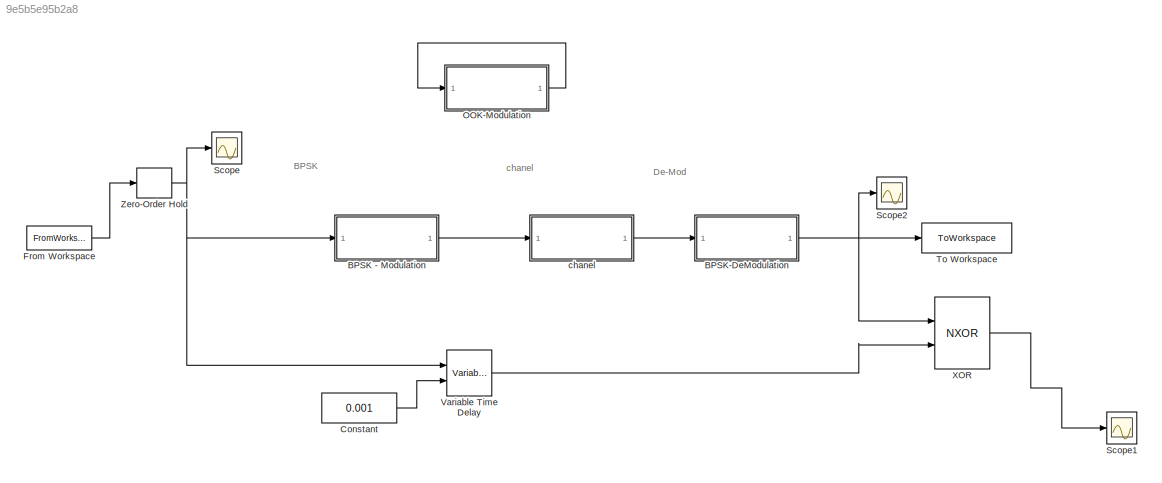
MODEL slx_9e5b5e95b2a8
KIND model
CONFIG AbsTol = auto
CONFIG EnableMultiTasking = off
CONFIG FixedStep = auto
CONFIG MaxStep = auto
CONFIG MinStep = auto
CONFIG RelTol = 1e-3
CONFIG SampleTimeConstraint = Unconstrained
CONFIG SolverName = VariableStepAuto
CONFIG StartTime = 0.0
CONFIG StopTime = 15
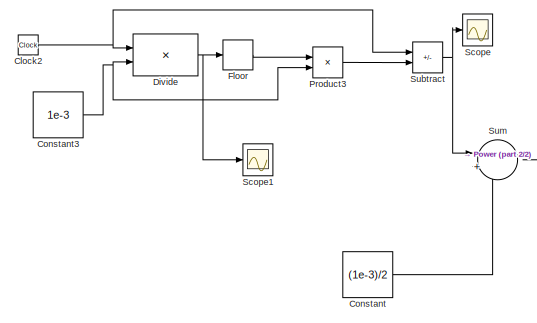
[diagram: BPSK - Modulation - part 1/2, middle left region]
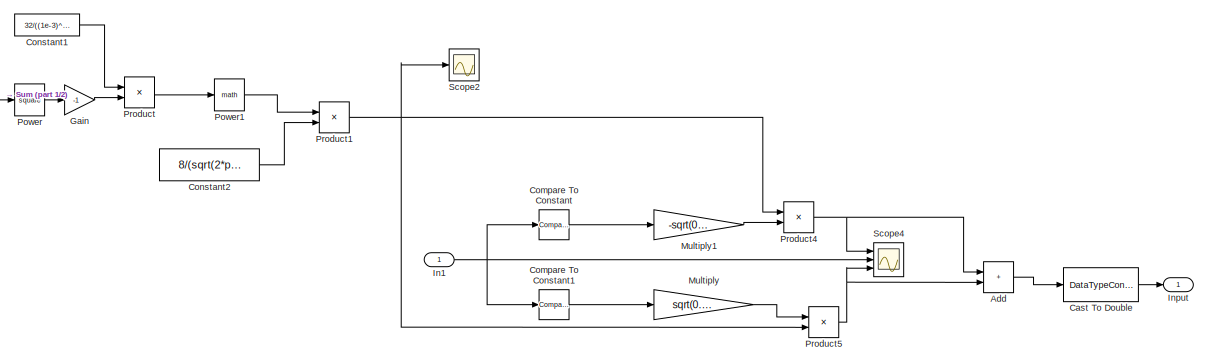
[diagram: BPSK - Modulation - part 2/2, center side, full height]
BLOCK [SubSystem] BPSK - Modulation
  Ports = [1, 1]
  RequestExecContextInheritance = off
BLOCK [Sum] BPSK - Modulation/Add
  IconShape = rectangular
  Ports = [2, 1]
BLOCK [DataTypeConversion] BPSK - Modulation/Cast To Double
  OutDataTypeStr = double
  RndMeth = Floor
  SaturateOnIntegerOverflow = off
BLOCK [Clock] BPSK - Modulation/Clock2
BLOCK [Reference] BPSK - Modulation/Compare To Constant  REF=simulink/Logic and Bit
Operations/Compare
To Constant
  Ports = [1, 1]
  SourceBlock = simulink/Logic and Bit\nOperations/Compare\nTo Constant
  SourceProductBaseCode = SL
  SourceType = Compare To Constant
BLOCK [Reference] BPSK - Modulation/Compare To Constant1  REF=simulink/Logic and Bit
Operations/Compare
To Constant
  Ports = [1, 1]
  SourceBlock = simulink/Logic and Bit\nOperations/Compare\nTo Constant
  SourceProductBaseCode = SL
  SourceType = Compare To Constant
BLOCK [Constant] BPSK - Modulation/Constant
  Value = (1e-3)/2
BLOCK [Constant] BPSK - Modulation/Constant1
  Value = 32/((1e-3)^2)
BLOCK [Constant] BPSK - Modulation/Constant2
  Value = 8/(sqrt(2*pi)*(1e-3))
BLOCK [Constant] BPSK - Modulation/Constant3
  Value = 1e-3
BLOCK [Product] BPSK - Modulation/Divide
  Inputs = */
  Ports = [2, 1]
BLOCK [Rounding] BPSK - Modulation/Floor
BLOCK [Gain] BPSK - Modulation/Gain
  Gain = -1
BLOCK [Inport] BPSK - Modulation/In1
BLOCK [Outport] BPSK - Modulation/Input
BLOCK [Gain] BPSK - Modulation/Multiply
  Gain = sqrt(0.005)
BLOCK [Gain] BPSK - Modulation/Multiply1
  Gain = -sqrt(0.005)
BLOCK [Math] BPSK - Modulation/Power
  Operator = square
  Ports = [1, 1]
BLOCK [Math] BPSK - Modulation/Power1
  Ports = [1, 1]
BLOCK [Product] BPSK - Modulation/Product
  Ports = [2, 1]
BLOCK [Product] BPSK - Modulation/Product1
  Ports = [2, 1]
BLOCK [Product] BPSK - Modulation/Product3
  Ports = [2, 1]
BLOCK [Product] BPSK - Modulation/Product4
  Ports = [2, 1]
BLOCK [Product] BPSK - Modulation/Product5
  Ports = [2, 1]
BLOCK [Scope] BPSK - Modulation/Scope
  Floating = off
  NumInputPorts = 1
  Ports = [1]
  ScopeSpecificationString = Simulink.scopes.TimeScopeBlockCfg('CurrentConfiguration', extmgr.ConfigurationSet(extmgr.Configuration('Core','General UI',true),extmgr.Configuration('Core','Source UI',true),extmgr.Configuration('Sources','WiredSimulink',true,'DataLoggingVariableName','ScopeData1'),extmgr.Configuration('Visuals','Time Domain',true,'SerializedDisplays',{struct('MinYLimReal','0.00026','MaxYLimReal','0.00047','YLabe...<+1384ch>
BLOCK [Scope] BPSK - Modulation/Scope1
  Floating = off
  NumInputPorts = 1
  Ports = [1]
  ScopeSpecificationString = Simulink.scopes.TimeScopeBlockCfg('CurrentConfiguration', extmgr.ConfigurationSet(extmgr.Configuration('Core','General UI',true),extmgr.Configuration('Core','Source UI',true),extmgr.Configuration('Sources','WiredSimulink',true,'DataLoggingVariableName','ScopeData2'),extmgr.Configuration('Visuals','Time Domain',true,'SerializedDisplays',{struct('MinYLimReal','-20.48','MaxYLimReal','184.32','YLabelR...<+1357ch>
BLOCK [Scope] BPSK - Modulation/Scope2
  Floating = off
  NumInputPorts = 1
  Ports = [1]
  ScopeSpecificationString = Simulink.scopes.TimeScopeBlockCfg('CurrentConfiguration', extmgr.ConfigurationSet(extmgr.Configuration('Core','General UI',true),extmgr.Configuration('Core','Source UI',true),extmgr.Configuration('Sources','WiredSimulink',true,'DataLoggingVariableName','ScopeData3'),extmgr.Configuration('Visuals','Time Domain',true,'SerializedDisplays',{struct('MinYLimReal','861.47131','MaxYLimReal','1448.74223','...<+1433ch>
BLOCK [Scope] BPSK - Modulation/Scope4
  Floating = off
  NumInputPorts = 3
  Ports = [3]
  ScopeSpecificationString = Simulink.scopes.TimeScopeBlockCfg('CurrentConfiguration', extmgr.ConfigurationSet(extmgr.Configuration('Core','General UI',true),extmgr.Configuration('Core','Source UI',true),extmgr.Configuration('Sources','WiredSimulink',true,'DataLoggingVariableName','ScopeData2'),extmgr.Configuration('Visuals','Time Domain',true,'SerializedDisplays',{struct('MinYLimReal','-8920.62058','MaxYLimReal','2398.10129'...<+1544ch>
BLOCK [Sum] BPSK - Modulation/Subtract
  IconShape = rectangular
  Inputs = +-
  Ports = [2, 1]
BLOCK [Sum] BPSK - Modulation/Sum
  Inputs = |+-
  Ports = [2, 1]
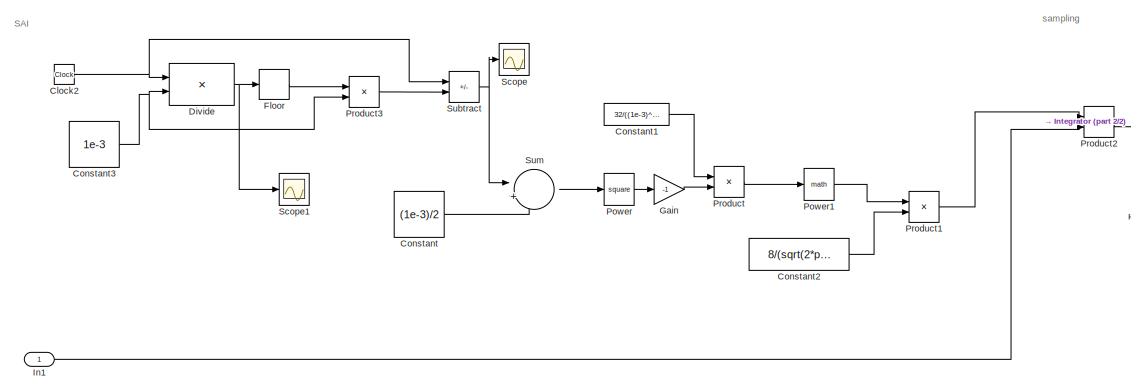
[diagram: BPSK-DeModulation - part 1/2, left side, full height]
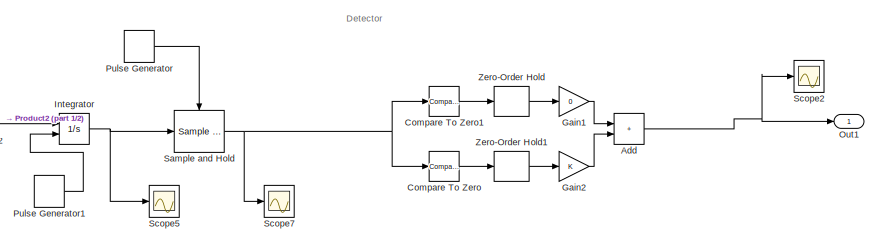
[diagram: BPSK-DeModulation - part 2/2, middle right region]
BLOCK [SubSystem] BPSK-DeModulation
  Ports = [1, 1]
  RequestExecContextInheritance = off
BLOCK [Sum] BPSK-DeModulation/Add
  IconShape = rectangular
  Ports = [2, 1]
BLOCK [Clock] BPSK-DeModulation/Clock2
BLOCK [Reference] BPSK-DeModulation/Compare To Zero  REF=simulink/Logic and Bit
Operations/Compare
To Zero
  Ports = [1, 1]
  SourceBlock = simulink/Logic and Bit\nOperations/Compare\nTo Zero
  SourceProductBaseCode = SL
  SourceType = Compare To Zero
BLOCK [Reference] BPSK-DeModulation/Compare To Zero1  REF=simulink/Logic and Bit
Operations/Compare
To Zero
  Ports = [1, 1]
  SourceBlock = simulink/Logic and Bit\nOperations/Compare\nTo Zero
  SourceProductBaseCode = SL
  SourceType = Compare To Zero
BLOCK [Constant] BPSK-DeModulation/Constant
  Value = (1e-3)/2
BLOCK [Constant] BPSK-DeModulation/Constant1
  Value = 32/((1e-3)^2)
BLOCK [Constant] BPSK-DeModulation/Constant2
  Value = 8/(sqrt(2*pi)*(1e-3))
BLOCK [Constant] BPSK-DeModulation/Constant3
  Value = 1e-3
BLOCK [Product] BPSK-DeModulation/Divide
  Inputs = */
  Ports = [2, 1]
BLOCK [Rounding] BPSK-DeModulation/Floor
BLOCK [Gain] BPSK-DeModulation/Gain
  Gain = -1
BLOCK [Gain] BPSK-DeModulation/Gain1
  Gain = 0
BLOCK [Gain] BPSK-DeModulation/Gain2
BLOCK [Inport] BPSK-DeModulation/In1
BLOCK [Integrator] BPSK-DeModulation/Integrator
  ExternalReset = rising
  Ports = [2, 1]
BLOCK [Outport] BPSK-DeModulation/Out1
BLOCK [Math] BPSK-DeModulation/Power
  Operator = square
  Ports = [1, 1]
BLOCK [Math] BPSK-DeModulation/Power1
  Ports = [1, 1]
BLOCK [Product] BPSK-DeModulation/Product
  Ports = [2, 1]
BLOCK [Product] BPSK-DeModulation/Product1
  Ports = [2, 1]
BLOCK [Product] BPSK-DeModulation/Product2
  Ports = [2, 1]
BLOCK [Product] BPSK-DeModulation/Product3
  Ports = [2, 1]
BLOCK [DiscretePulseGenerator] BPSK-DeModulation/Pulse Generator
  Period = 1e-3
  Ports = [0, 1]
  PulseType = Time based
  PulseWidth = 50
BLOCK [DiscretePulseGenerator] BPSK-DeModulation/Pulse Generator1
  Period = 1e-3
  Ports = [0, 1]
  PulseType = Time based
  PulseWidth = 50
BLOCK [Reference] BPSK-DeModulation/Sample and Hold  REF=dspsigops/Sample
and Hold
  Ports = [1, 1, 0, 1]
  SourceBlock = dspsigops/Sample\nand Hold
  SourceProductBaseCode = DS
  SourceType = Sample and Hold
BLOCK [Scope] BPSK-DeModulation/Scope
  Floating = off
  NumInputPorts = 1
  Ports = [1]
  ScopeSpecificationString = Simulink.scopes.TimeScopeBlockCfg('CurrentConfiguration', extmgr.ConfigurationSet(extmgr.Configuration('Core','General UI',true),extmgr.Configuration('Core','Source UI',true),extmgr.Configuration('Sources','WiredSimulink',true,'DataLoggingVariableName','ScopeData3'),extmgr.Configuration('Visuals','Time Domain',true,'SerializedDisplays',{struct('MinYLimReal','0.00026','MaxYLimReal','0.00047','YLabe...<+1384ch>
BLOCK [Scope] BPSK-DeModulation/Scope1
  Floating = off
  NumInputPorts = 1
  Ports = [1]
  ScopeSpecificationString = Simulink.scopes.TimeScopeBlockCfg('CurrentConfiguration', extmgr.ConfigurationSet(extmgr.Configuration('Core','General UI',true),extmgr.Configuration('Core','Source UI',true),extmgr.Configuration('Sources','WiredSimulink',true,'DataLoggingVariableName','ScopeData4'),extmgr.Configuration('Visuals','Time Domain',true,'SerializedDisplays',{struct('MinYLimReal','-1875.00000','MaxYLimReal','16875.00000...<+1391ch>
BLOCK [Scope] BPSK-DeModulation/Scope2
  Floating = off
  NumInputPorts = 1
  Ports = [1]
  ScopeSpecificationString = Simulink.scopes.TimeScopeBlockCfg('CurrentConfiguration', extmgr.ConfigurationSet(extmgr.Configuration('Core','General UI',true),extmgr.Configuration('Core','Source UI',true),extmgr.Configuration('Sources','WiredSimulink',true,'DataLoggingVariableName','ScopeData1'),extmgr.Configuration('Visuals','Time Domain',true,'SerializedDisplays',{struct('MinYLimReal','-0.04239','MaxYLimReal','0.15652','YLab...<+1834ch>
BLOCK [Scope] BPSK-DeModulation/Scope5
  Floating = off
  NumInputPorts = 1
  Ports = [1]
  ScopeSpecificationString = Simulink.scopes.TimeScopeBlockCfg('CurrentConfiguration', extmgr.ConfigurationSet(extmgr.Configuration('Core','General UI',true),extmgr.Configuration('Core','Source UI',true),extmgr.Configuration('Sources','WiredSimulink',true,'DataLoggingVariableName','ScopeData9'),extmgr.Configuration('Visuals','Time Domain',true,'SerializedDisplays',{struct('MinYLimReal','-26.81768','MaxYLimReal','34.61981','YL...<+1489ch>
BLOCK [Scope] BPSK-DeModulation/Scope7
  Floating = off
  NumInputPorts = 1
  Ports = [1]
  ScopeSpecificationString = Simulink.scopes.TimeScopeBlockCfg('CurrentConfiguration', extmgr.ConfigurationSet(extmgr.Configuration('Core','General UI',true),extmgr.Configuration('Core','Source UI',true),extmgr.Configuration('Sources','WiredSimulink',true,'DataLoggingVariableName','ScopeData11'),extmgr.Configuration('Visuals','Time Domain',true,'SerializedDisplays',{struct('MinYLimReal','-15.04878','MaxYLimReal','12.18994','Y...<+1825ch>
BLOCK [Sum] BPSK-DeModulation/Subtract
  IconShape = rectangular
  Inputs = +-
  Ports = [2, 1]
BLOCK [Sum] BPSK-DeModulation/Sum
  Inputs = |+-
  Ports = [2, 1]
BLOCK [ZeroOrderHold] BPSK-DeModulation/Zero-Order Hold
  SampleTime = 1e-3
BLOCK [ZeroOrderHold] BPSK-DeModulation/Zero-Order Hold1
  SampleTime = 1e-3
BLOCK [Constant] Constant
  Value = 0.001
BLOCK [FromWorkspace] From Workspace
  OutDataTypeStr = double
  SampleTime = 1e-3
  VariableName = var
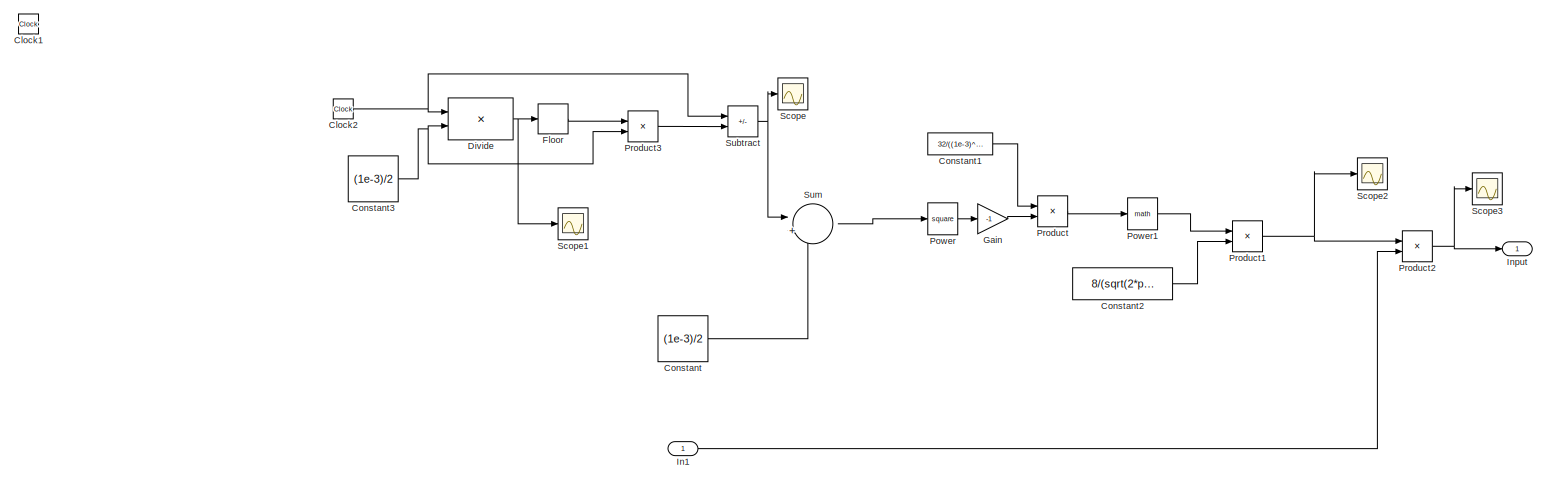
[diagram: OOK-Modulation - part 1/1, most of the canvas]
BLOCK [SubSystem] OOK-Modulation
  Ports = [1, 1]
  RequestExecContextInheritance = off
BLOCK [Clock] OOK-Modulation/Clock1
BLOCK [Clock] OOK-Modulation/Clock2
BLOCK [Constant] OOK-Modulation/Constant
  Value = (1e-3)/2
BLOCK [Constant] OOK-Modulation/Constant1
  Value = 32/((1e-3)^2)
BLOCK [Constant] OOK-Modulation/Constant2
  Value = 8/(sqrt(2*pi)*(1e-3))
BLOCK [Constant] OOK-Modulation/Constant3
  Value = (1e-3)/2
BLOCK [Product] OOK-Modulation/Divide
  Inputs = */
  Ports = [2, 1]
BLOCK [Rounding] OOK-Modulation/Floor
BLOCK [Gain] OOK-Modulation/Gain
  Gain = -1
BLOCK [Inport] OOK-Modulation/In1
BLOCK [Outport] OOK-Modulation/Input
BLOCK [Math] OOK-Modulation/Power
  Operator = square
  Ports = [1, 1]
BLOCK [Math] OOK-Modulation/Power1
  Ports = [1, 1]
BLOCK [Product] OOK-Modulation/Product
  Ports = [2, 1]
BLOCK [Product] OOK-Modulation/Product1
  Ports = [2, 1]
BLOCK [Product] OOK-Modulation/Product2
  Ports = [2, 1]
BLOCK [Product] OOK-Modulation/Product3
  Ports = [2, 1]
BLOCK [Scope] OOK-Modulation/Scope
  Floating = off
  NumInputPorts = 1
  Ports = [1]
  ScopeSpecificationString = Simulink.scopes.TimeScopeBlockCfg('CurrentConfiguration', extmgr.ConfigurationSet(extmgr.Configuration('Core','General UI',true),extmgr.Configuration('Core','Source UI',true),extmgr.Configuration('Sources','WiredSimulink',true,'DataLoggingVariableName','ScopeData1'),extmgr.Configuration('Visuals','Time Domain',true,'SerializedDisplays',{struct('MinYLimReal','0.00026','MaxYLimReal','0.00047','YLabe...<+1384ch>
BLOCK [Scope] OOK-Modulation/Scope1
  Floating = off
  NumInputPorts = 1
  Ports = [1]
  ScopeSpecificationString = Simulink.scopes.TimeScopeBlockCfg('CurrentConfiguration', extmgr.ConfigurationSet(extmgr.Configuration('Core','General UI',true),extmgr.Configuration('Core','Source UI',true),extmgr.Configuration('Sources','WiredSimulink',true,'DataLoggingVariableName','ScopeData2'),extmgr.Configuration('Visuals','Time Domain',true,'SerializedDisplays',{struct('MinYLimReal','-2500.00000','MaxYLimReal','22500.00000...<+1391ch>
BLOCK [Scope] OOK-Modulation/Scope2
  Floating = off
  NumInputPorts = 1
  Ports = [1]
  ScopeSpecificationString = Simulink.scopes.TimeScopeBlockCfg('CurrentConfiguration', extmgr.ConfigurationSet(extmgr.Configuration('Core','General UI',true),extmgr.Configuration('Core','Source UI',true),extmgr.Configuration('Sources','WiredSimulink',true,'DataLoggingVariableName','ScopeData3'),extmgr.Configuration('Visuals','Time Domain',true,'SerializedDisplays',{struct('MinYLimReal','861.47131','MaxYLimReal','1448.74223','...<+1433ch>
BLOCK [Scope] OOK-Modulation/Scope3
  Floating = off
  NumInputPorts = 1
  Ports = [1]
  ScopeSpecificationString = Simulink.scopes.TimeScopeBlockCfg('CurrentConfiguration', extmgr.ConfigurationSet(extmgr.Configuration('Core','General UI',true),extmgr.Configuration('Core','Source UI',true),extmgr.Configuration('Sources','WiredSimulink',true,'DataLoggingVariableName','ScopeData1'),extmgr.Configuration('Visuals','Time Domain',true,'SerializedDisplays',{struct('MinYLimReal','0.00000','MaxYLimReal','3181.34164','YL...<+1425ch>
BLOCK [Sum] OOK-Modulation/Subtract
  IconShape = rectangular
  Inputs = +-
  Ports = [2, 1]
BLOCK [Sum] OOK-Modulation/Sum
  Inputs = |+-
  Ports = [2, 1]
BLOCK [Scope] Scope
  Floating = off
  NumInputPorts = 1
  Ports = [1]
  ScopeSpecificationString = Simulink.scopes.TimeScopeBlockCfg('CurrentConfiguration', extmgr.ConfigurationSet(extmgr.Configuration('Core','General UI',true),extmgr.Configuration('Core','Source UI',true),extmgr.Configuration('Sources','WiredSimulink',true),extmgr.Configuration('Visuals','Time Domain',true,'SerializedDisplays',{struct('MinYLimReal','0.28671','MaxYLimReal','0.98132','YLabelReal','','MinYLimMag','0.28671','MaxYL...<+1352ch>
BLOCK [Scope] Scope1
  Floating = off
  NumInputPorts = 1
  Ports = [1]
  ScopeSpecificationString = Simulink.scopes.TimeScopeBlockCfg('CurrentConfiguration', extmgr.ConfigurationSet(extmgr.Configuration('Core','General UI',true),extmgr.Configuration('Core','Source UI',true),extmgr.Configuration('Sources','WiredSimulink',true,'DataLoggingVariableName','ScopeData2'),extmgr.Configuration('Visuals','Time Domain',true,'SerializedDisplays',{struct('MinYLimReal','-0.03434','MaxYLimReal','0.04907','YLab...<+1435ch>
BLOCK [Scope] Scope2
  Floating = off
  NumInputPorts = 1
  Ports = [1]
  ScopeSpecificationString = Simulink.scopes.TimeScopeBlockCfg('CurrentConfiguration', extmgr.ConfigurationSet(extmgr.Configuration('Core','General UI',true),extmgr.Configuration('Core','Source UI',true),extmgr.Configuration('Sources','WiredSimulink',true,'DataLoggingVariableName','ScopeData3'),extmgr.Configuration('Visuals','Time Domain',true,'SerializedDisplays',{struct('MinYLimReal','-0.03434','MaxYLimReal','0.04907','YLab...<+1435ch>
BLOCK [ToWorkspace] To Workspace
  FixptAsFi = on
  MaxDataPoints = inf
  Ports = [1]
  SampleTime = 1e-5
  Save2DSignal = 2-D array (concatenate along first dimension)
  VariableName = var_out
BLOCK [VariableTransportDelay] Variable Time Delay
  MaximumDelay = 10
  Ports = [2, 1]
BLOCK [Logic] XOR
  AllPortsSameDT = off
  IconShape = distinctive
  Operator = NXOR
  OutDataTypeStr = boolean
  Ports = [2, 1]
BLOCK [ZeroOrderHold] Zero-Order Hold
  SampleTime = 1e-3
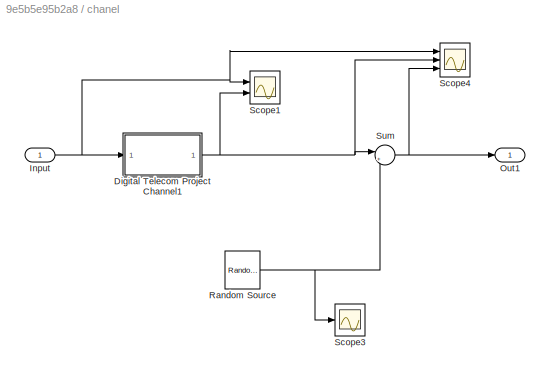
BLOCK [SubSystem] chanel
  Ports = [1, 1]
  RequestExecContextInheritance = off
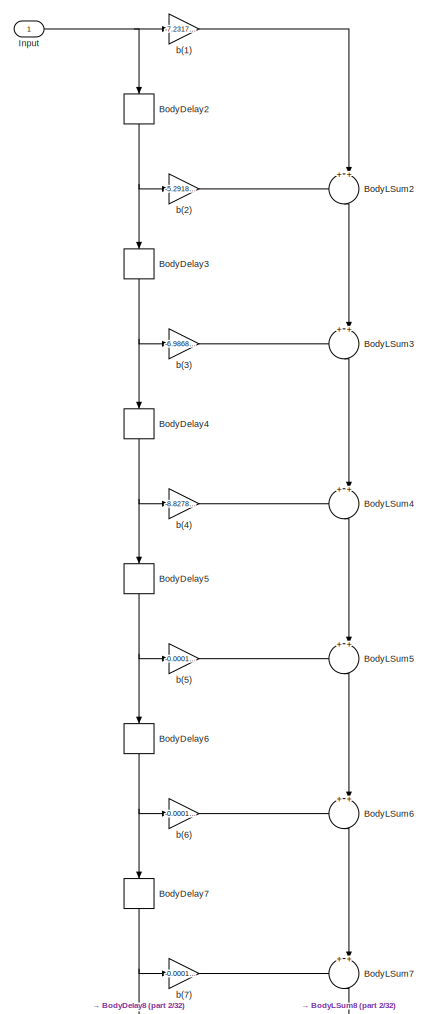
[diagram: chanel/Digital Telecom Project Channel1 - part 1/32, full width, top band]
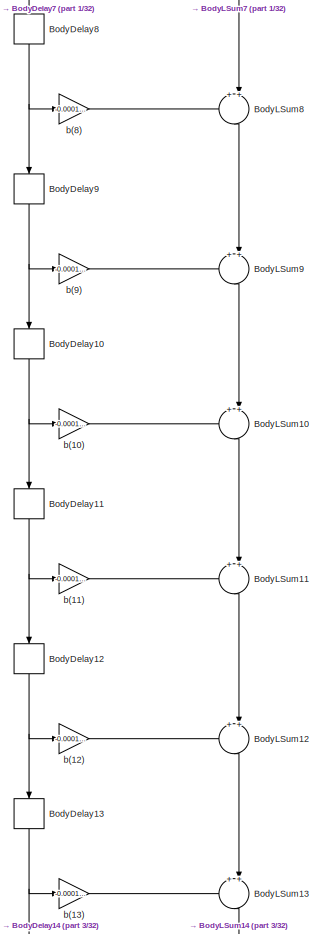
[diagram: chanel/Digital Telecom Project Channel1 - part 2/32, top center region]
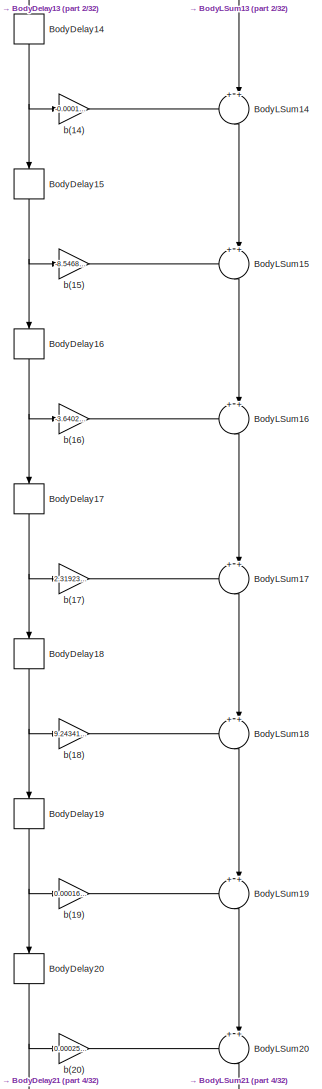
[diagram: chanel/Digital Telecom Project Channel1 - part 3/32, top center region]
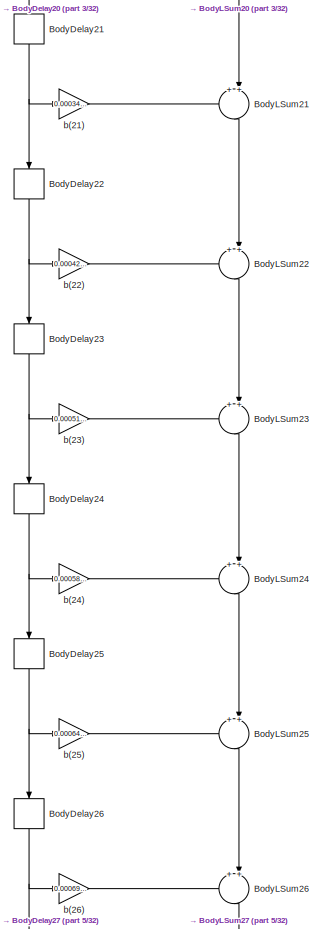
[diagram: chanel/Digital Telecom Project Channel1 - part 4/32, top center region]
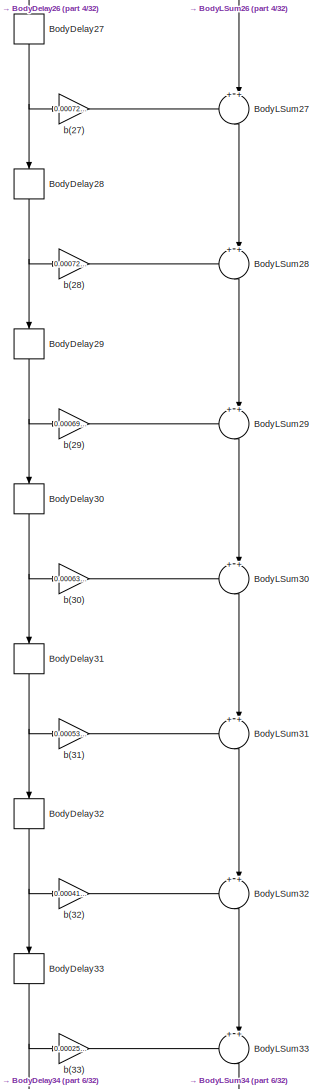
[diagram: chanel/Digital Telecom Project Channel1 - part 5/32, top center region]
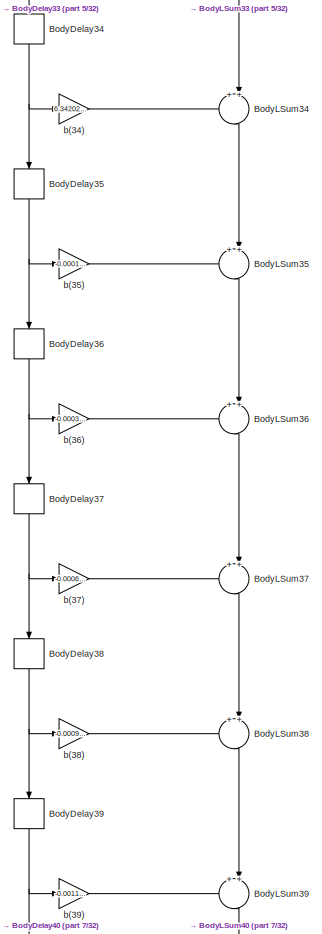
[diagram: chanel/Digital Telecom Project Channel1 - part 6/32, top center region]
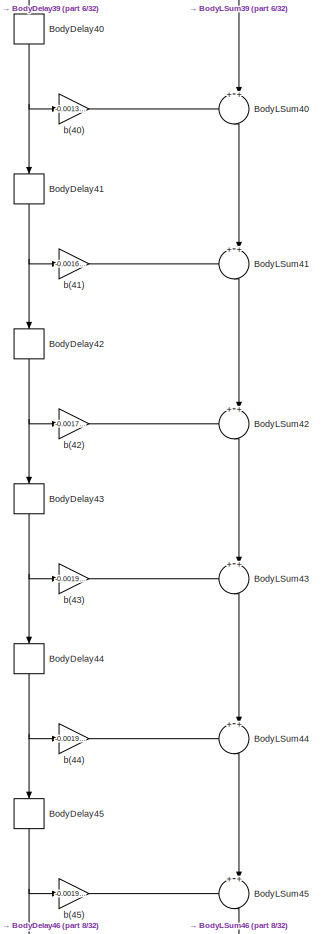
[diagram: chanel/Digital Telecom Project Channel1 - part 7/32, top center region]
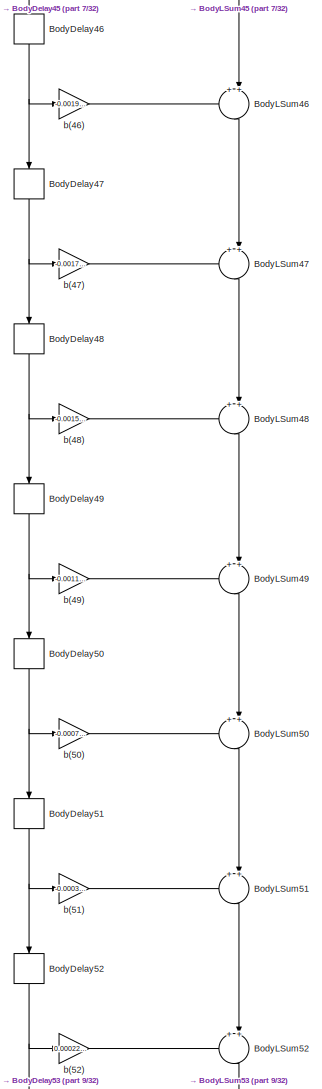
[diagram: chanel/Digital Telecom Project Channel1 - part 8/32, top center region]
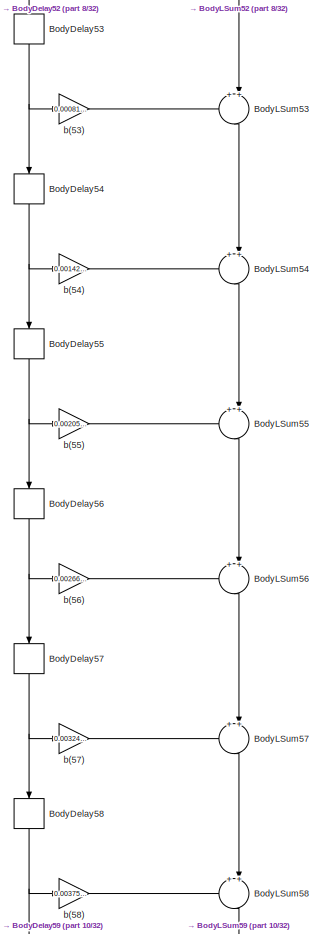
[diagram: chanel/Digital Telecom Project Channel1 - part 9/32, top center region]
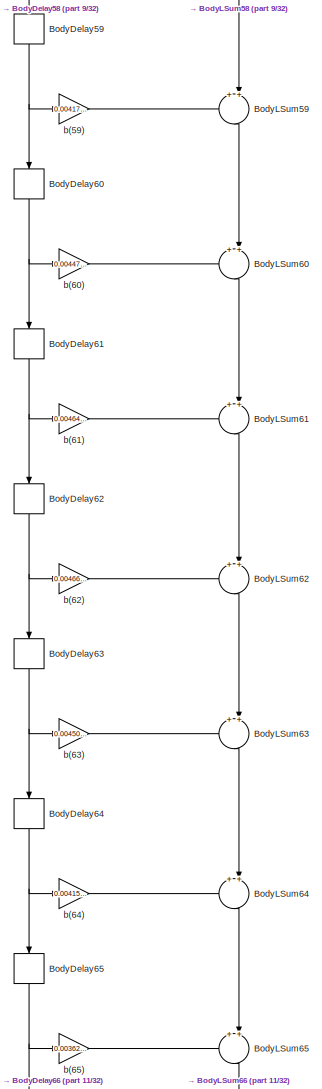
[diagram: chanel/Digital Telecom Project Channel1 - part 10/32, top center region]
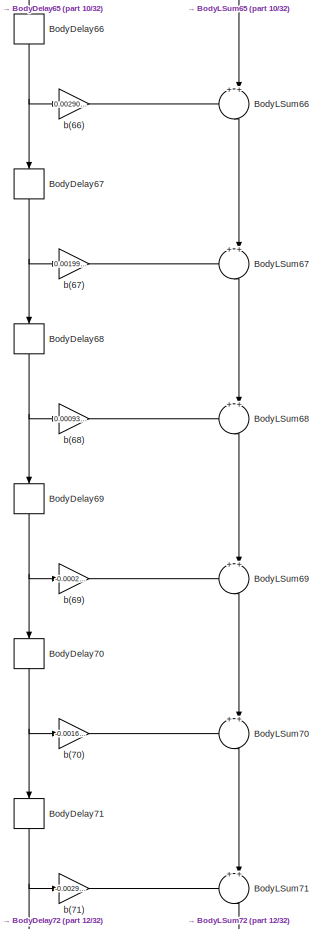
[diagram: chanel/Digital Telecom Project Channel1 - part 11/32, top center region]
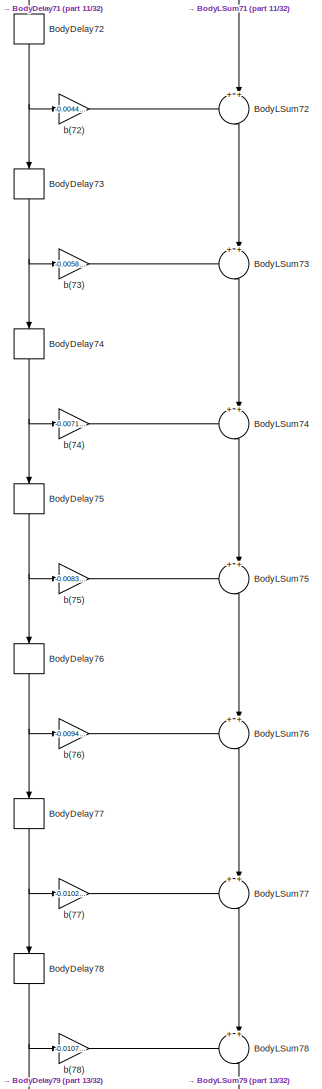
[diagram: chanel/Digital Telecom Project Channel1 - part 12/32, central region]
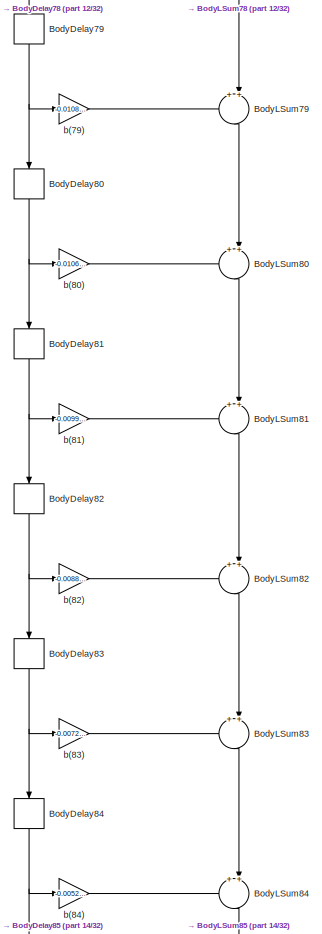
[diagram: chanel/Digital Telecom Project Channel1 - part 13/32, central region]
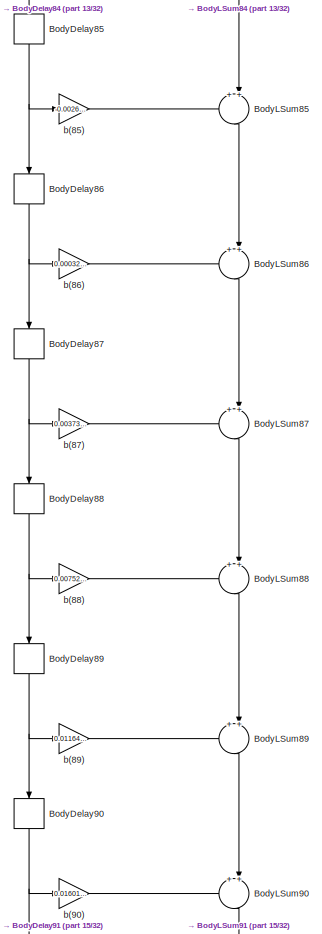
[diagram: chanel/Digital Telecom Project Channel1 - part 14/32, central region]
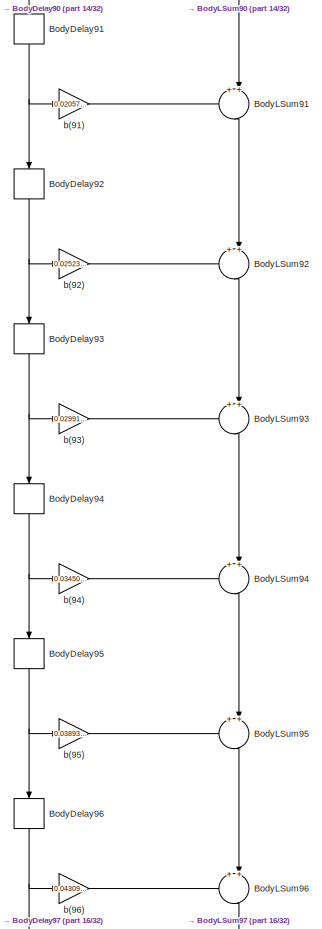
[diagram: chanel/Digital Telecom Project Channel1 - part 15/32, central region]
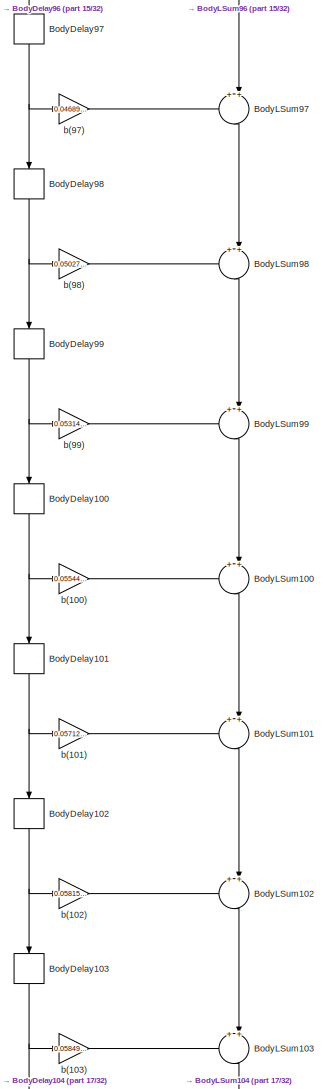
[diagram: chanel/Digital Telecom Project Channel1 - part 16/32, central region]
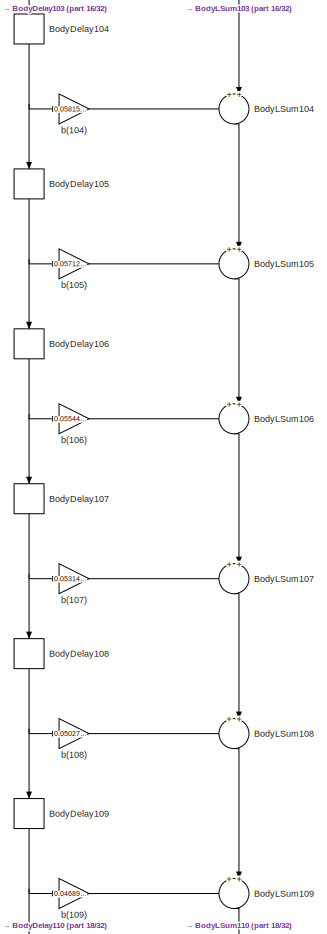
[diagram: chanel/Digital Telecom Project Channel1 - part 17/32, central region]
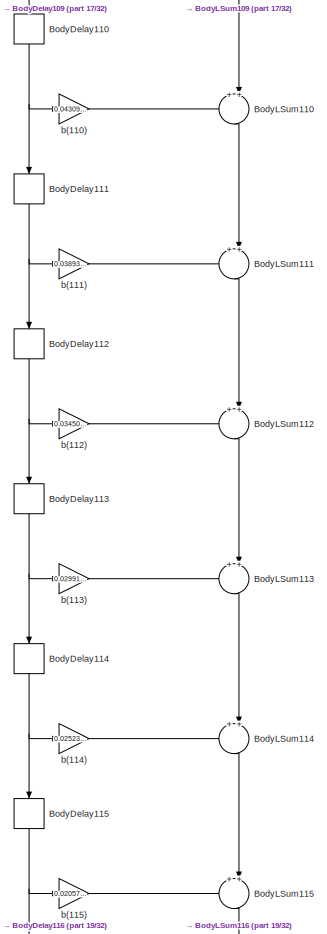
[diagram: chanel/Digital Telecom Project Channel1 - part 18/32, central region]
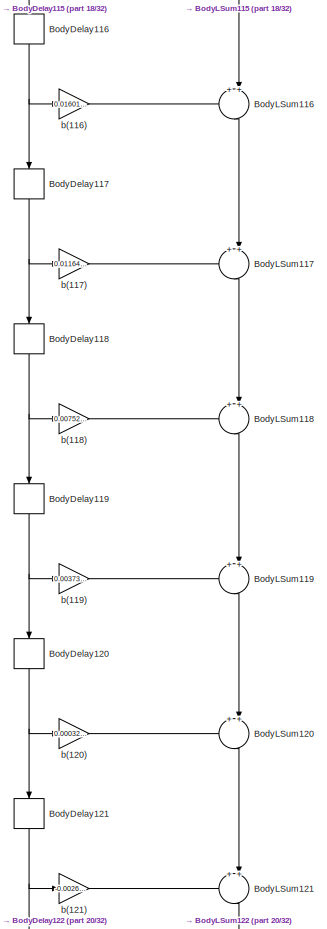
[diagram: chanel/Digital Telecom Project Channel1 - part 19/32, central region]
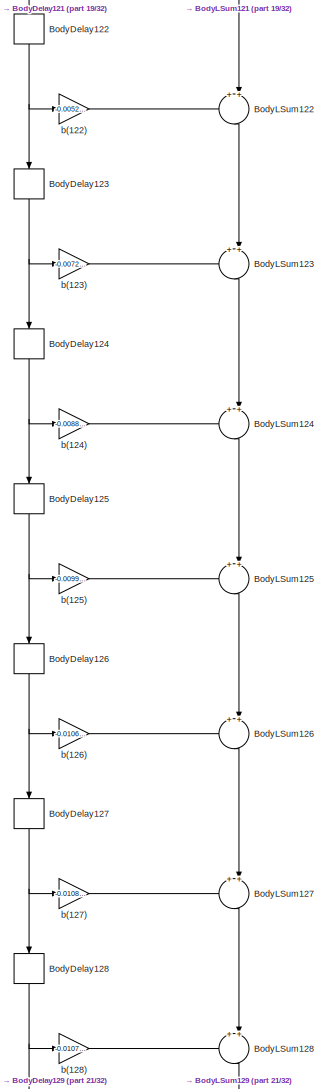
[diagram: chanel/Digital Telecom Project Channel1 - part 20/32, central region]
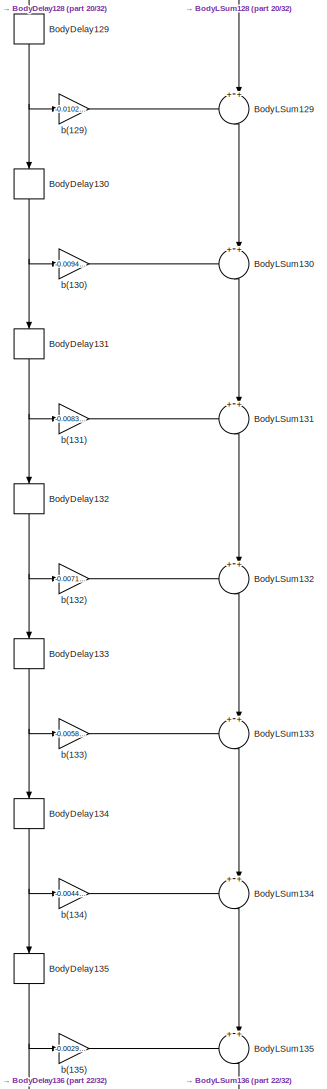
[diagram: chanel/Digital Telecom Project Channel1 - part 21/32, central region]
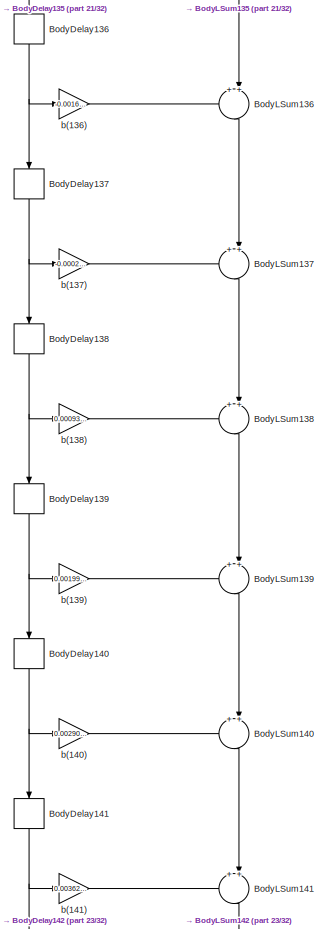
[diagram: chanel/Digital Telecom Project Channel1 - part 22/32, bottom center region]
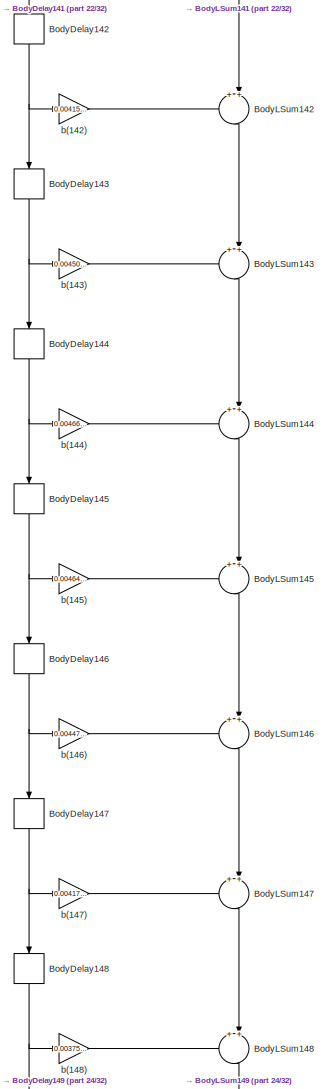
[diagram: chanel/Digital Telecom Project Channel1 - part 23/32, bottom center region]
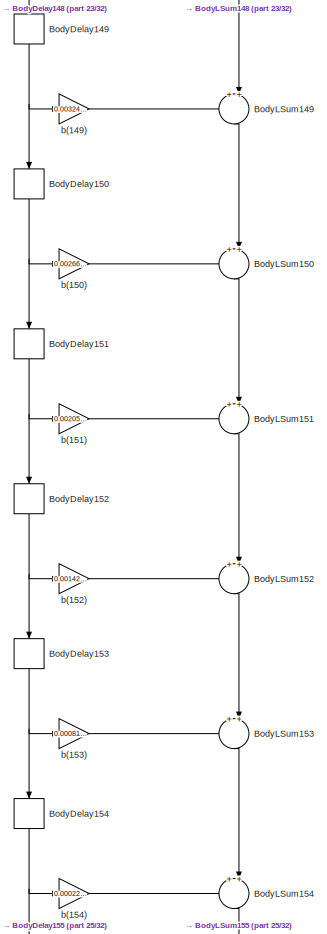
[diagram: chanel/Digital Telecom Project Channel1 - part 24/32, bottom center region]
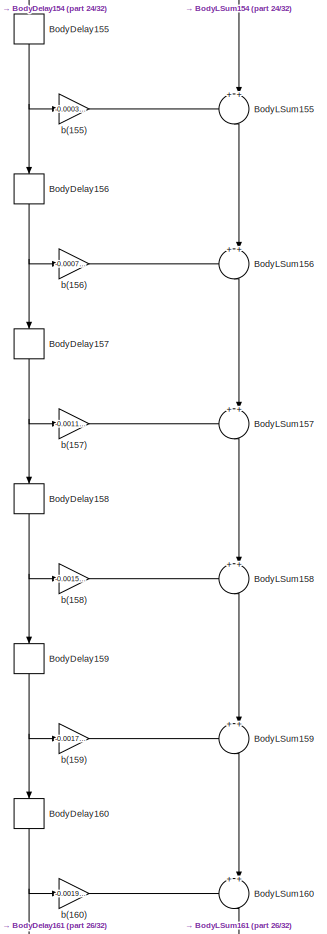
[diagram: chanel/Digital Telecom Project Channel1 - part 25/32, bottom center region]
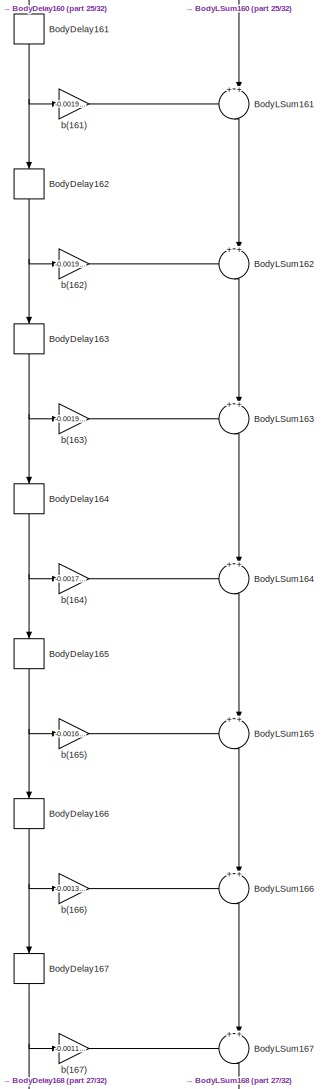
[diagram: chanel/Digital Telecom Project Channel1 - part 26/32, bottom center region]
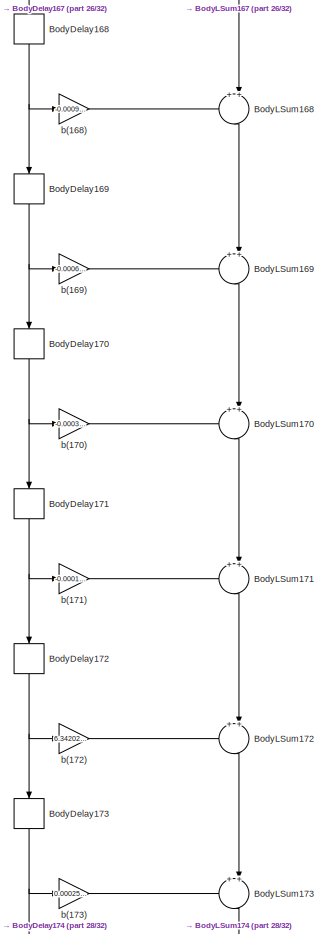
[diagram: chanel/Digital Telecom Project Channel1 - part 27/32, bottom center region]
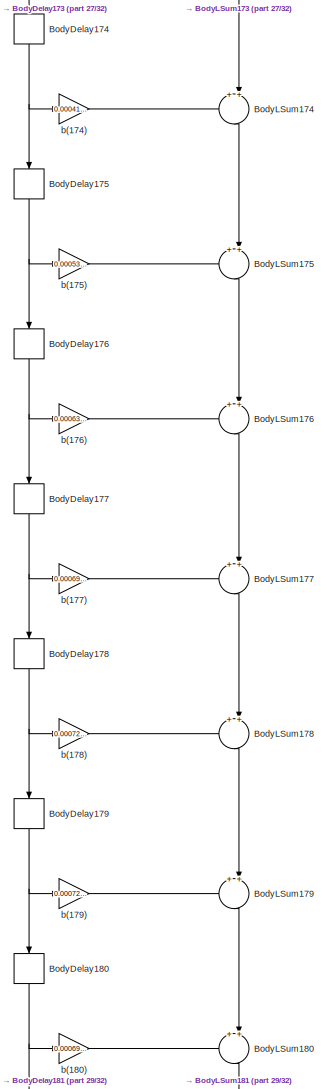
[diagram: chanel/Digital Telecom Project Channel1 - part 28/32, bottom center region]
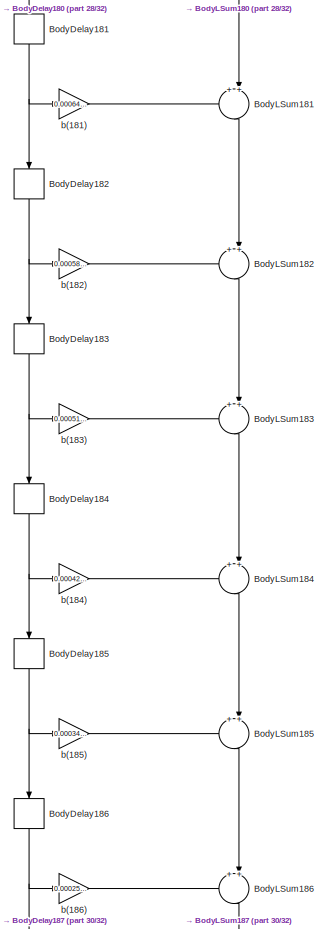
[diagram: chanel/Digital Telecom Project Channel1 - part 29/32, bottom center region]
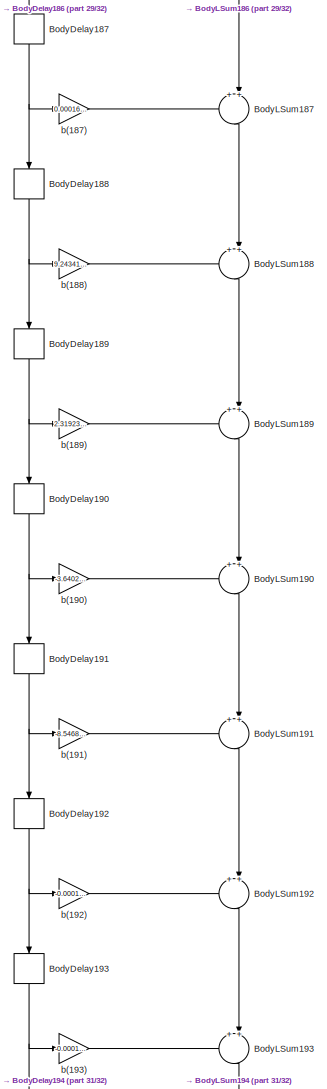
[diagram: chanel/Digital Telecom Project Channel1 - part 30/32, bottom center region]
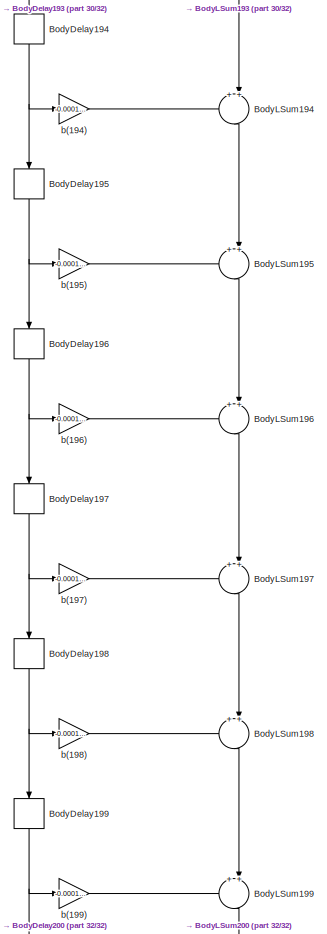
[diagram: chanel/Digital Telecom Project Channel1 - part 31/32, bottom center region]
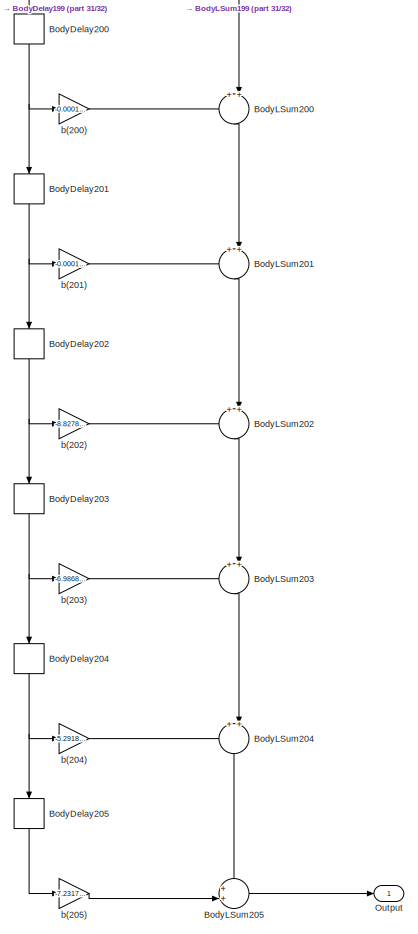
[diagram: chanel/Digital Telecom Project Channel1 - part 32/32, full width, bottom band]
BLOCK [SubSystem] chanel/Digital Telecom Project Channel1
  ErrorFcn = dspFilterRealizedInBasicElemsAlgLoopErrFcnCallback
  Ports = [1, 1]
  RequestExecContextInheritance = off
  Tag = FilterWizardSubSystem
  UserDataPersistent = on
BLOCK [Delay] chanel/Digital Telecom Project Channel1/BodyDelay10
  DelayLength = 1
  InitialCondition = 0
  InputPortMap = u0
  NameLocation = right
  Ports = [1, 1]
BLOCK [Delay] chanel/Digital Telecom Project Channel1/BodyDelay100
  DelayLength = 1
  InitialCondition = 0
  InputPortMap = u0
  NameLocation = right
  Ports = [1, 1]
BLOCK [Delay] chanel/Digital Telecom Project Channel1/BodyDelay101
  DelayLength = 1
  InitialCondition = 0
  InputPortMap = u0
  NameLocation = right
  Ports = [1, 1]
BLOCK [Delay] chanel/Digital Telecom Project Channel1/BodyDelay102
  DelayLength = 1
  InitialCondition = 0
  InputPortMap = u0
  NameLocation = right
  Ports = [1, 1]
BLOCK [Delay] chanel/Digital Telecom Project Channel1/BodyDelay103
  DelayLength = 1
  InitialCondition = 0
  InputPortMap = u0
  NameLocation = right
  Ports = [1, 1]
BLOCK [Delay] chanel/Digital Telecom Project Channel1/BodyDelay104
  DelayLength = 1
  InitialCondition = 0
  InputPortMap = u0
  NameLocation = right
  Ports = [1, 1]
BLOCK [Delay] chanel/Digital Telecom Project Channel1/BodyDelay105
  DelayLength = 1
  InitialCondition = 0
  InputPortMap = u0
  NameLocation = right
  Ports = [1, 1]
BLOCK [Delay] chanel/Digital Telecom Project Channel1/BodyDelay106
  DelayLength = 1
  InitialCondition = 0
  InputPortMap = u0
  NameLocation = right
  Ports = [1, 1]
BLOCK [Delay] chanel/Digital Telecom Project Channel1/BodyDelay107
  DelayLength = 1
  InitialCondition = 0
  InputPortMap = u0
  NameLocation = right
  Ports = [1, 1]
BLOCK [Delay] chanel/Digital Telecom Project Channel1/BodyDelay108
  DelayLength = 1
  InitialCondition = 0
  InputPortMap = u0
  NameLocation = right
  Ports = [1, 1]
BLOCK [Delay] chanel/Digital Telecom Project Channel1/BodyDelay109
  DelayLength = 1
  InitialCondition = 0
  InputPortMap = u0
  NameLocation = right
  Ports = [1, 1]
BLOCK [Delay] chanel/Digital Telecom Project Channel1/BodyDelay11
  DelayLength = 1
  InitialCondition = 0
  InputPortMap = u0
  NameLocation = right
  Ports = [1, 1]
BLOCK [Delay] chanel/Digital Telecom Project Channel1/BodyDelay110
  DelayLength = 1
  InitialCondition = 0
  InputPortMap = u0
  NameLocation = right
  Ports = [1, 1]
BLOCK [Delay] chanel/Digital Telecom Project Channel1/BodyDelay111
  DelayLength = 1
  InitialCondition = 0
  InputPortMap = u0
  NameLocation = right
  Ports = [1, 1]
BLOCK [Delay] chanel/Digital Telecom Project Channel1/BodyDelay112
  DelayLength = 1
  InitialCondition = 0
  InputPortMap = u0
  NameLocation = right
  Ports = [1, 1]
BLOCK [Delay] chanel/Digital Telecom Project Channel1/BodyDelay113
  DelayLength = 1
  InitialCondition = 0
  InputPortMap = u0
  NameLocation = right
  Ports = [1, 1]
BLOCK [Delay] chanel/Digital Telecom Project Channel1/BodyDelay114
  DelayLength = 1
  InitialCondition = 0
  InputPortMap = u0
  NameLocation = right
  Ports = [1, 1]
BLOCK [Delay] chanel/Digital Telecom Project Channel1/BodyDelay115
  DelayLength = 1
  InitialCondition = 0
  InputPortMap = u0
  NameLocation = right
  Ports = [1, 1]
BLOCK [Delay] chanel/Digital Telecom Project Channel1/BodyDelay116
  DelayLength = 1
  InitialCondition = 0
  InputPortMap = u0
  NameLocation = right
  Ports = [1, 1]
BLOCK [Delay] chanel/Digital Telecom Project Channel1/BodyDelay117
  DelayLength = 1
  InitialCondition = 0
  InputPortMap = u0
  NameLocation = right
  Ports = [1, 1]
BLOCK [Delay] chanel/Digital Telecom Project Channel1/BodyDelay118
  DelayLength = 1
  InitialCondition = 0
  InputPortMap = u0
  NameLocation = right
  Ports = [1, 1]
BLOCK [Delay] chanel/Digital Telecom Project Channel1/BodyDelay119
  DelayLength = 1
  InitialCondition = 0
  InputPortMap = u0
  NameLocation = right
  Ports = [1, 1]
BLOCK [Delay] chanel/Digital Telecom Project Channel1/BodyDelay12
  DelayLength = 1
  InitialCondition = 0
  InputPortMap = u0
  NameLocation = right
  Ports = [1, 1]
BLOCK [Delay] chanel/Digital Telecom Project Channel1/BodyDelay120
  DelayLength = 1
  InitialCondition = 0
  InputPortMap = u0
  NameLocation = right
  Ports = [1, 1]
BLOCK [Delay] chanel/Digital Telecom Project Channel1/BodyDelay121
  DelayLength = 1
  InitialCondition = 0
  InputPortMap = u0
  NameLocation = right
  Ports = [1, 1]
BLOCK [Delay] chanel/Digital Telecom Project Channel1/BodyDelay122
  DelayLength = 1
  InitialCondition = 0
  InputPortMap = u0
  NameLocation = right
  Ports = [1, 1]
BLOCK [Delay] chanel/Digital Telecom Project Channel1/BodyDelay123
  DelayLength = 1
  InitialCondition = 0
  InputPortMap = u0
  NameLocation = right
  Ports = [1, 1]
BLOCK [Delay] chanel/Digital Telecom Project Channel1/BodyDelay124
  DelayLength = 1
  InitialCondition = 0
  InputPortMap = u0
  NameLocation = right
  Ports = [1, 1]
BLOCK [Delay] chanel/Digital Telecom Project Channel1/BodyDelay125
  DelayLength = 1
  InitialCondition = 0
  InputPortMap = u0
  NameLocation = right
  Ports = [1, 1]
BLOCK [Delay] chanel/Digital Telecom Project Channel1/BodyDelay126
  DelayLength = 1
  InitialCondition = 0
  InputPortMap = u0
  NameLocation = right
  Ports = [1, 1]
BLOCK [Delay] chanel/Digital Telecom Project Channel1/BodyDelay127
  DelayLength = 1
  InitialCondition = 0
  InputPortMap = u0
  NameLocation = right
  Ports = [1, 1]
BLOCK [Delay] chanel/Digital Telecom Project Channel1/BodyDelay128
  DelayLength = 1
  InitialCondition = 0
  InputPortMap = u0
  NameLocation = right
  Ports = [1, 1]
BLOCK [Delay] chanel/Digital Telecom Project Channel1/BodyDelay129
  DelayLength = 1
  InitialCondition = 0
  InputPortMap = u0
  NameLocation = right
  Ports = [1, 1]
BLOCK [Delay] chanel/Digital Telecom Project Channel1/BodyDelay13
  DelayLength = 1
  InitialCondition = 0
  InputPortMap = u0
  NameLocation = right
  Ports = [1, 1]
BLOCK [Delay] chanel/Digital Telecom Project Channel1/BodyDelay130
  DelayLength = 1
  InitialCondition = 0
  InputPortMap = u0
  NameLocation = right
  Ports = [1, 1]
BLOCK [Delay] chanel/Digital Telecom Project Channel1/BodyDelay131
  DelayLength = 1
  InitialCondition = 0
  InputPortMap = u0
  NameLocation = right
  Ports = [1, 1]
BLOCK [Delay] chanel/Digital Telecom Project Channel1/BodyDelay132
  DelayLength = 1
  InitialCondition = 0
  InputPortMap = u0
  NameLocation = right
  Ports = [1, 1]
BLOCK [Delay] chanel/Digital Telecom Project Channel1/BodyDelay133
  DelayLength = 1
  InitialCondition = 0
  InputPortMap = u0
  NameLocation = right
  Ports = [1, 1]
BLOCK [Delay] chanel/Digital Telecom Project Channel1/BodyDelay134
  DelayLength = 1
  InitialCondition = 0
  InputPortMap = u0
  NameLocation = right
  Ports = [1, 1]
BLOCK [Delay] chanel/Digital Telecom Project Channel1/BodyDelay135
  DelayLength = 1
  InitialCondition = 0
  InputPortMap = u0
  NameLocation = right
  Ports = [1, 1]
BLOCK [Delay] chanel/Digital Telecom Project Channel1/BodyDelay136
  DelayLength = 1
  InitialCondition = 0
  InputPortMap = u0
  NameLocation = right
  Ports = [1, 1]
BLOCK [Delay] chanel/Digital Telecom Project Channel1/BodyDelay137
  DelayLength = 1
  InitialCondition = 0
  InputPortMap = u0
  NameLocation = right
  Ports = [1, 1]
BLOCK [Delay] chanel/Digital Telecom Project Channel1/BodyDelay138
  DelayLength = 1
  InitialCondition = 0
  InputPortMap = u0
  NameLocation = right
  Ports = [1, 1]
BLOCK [Delay] chanel/Digital Telecom Project Channel1/BodyDelay139
  DelayLength = 1
  InitialCondition = 0
  InputPortMap = u0
  NameLocation = right
  Ports = [1, 1]
BLOCK [Delay] chanel/Digital Telecom Project Channel1/BodyDelay14
  DelayLength = 1
  InitialCondition = 0
  InputPortMap = u0
  NameLocation = right
  Ports = [1, 1]
BLOCK [Delay] chanel/Digital Telecom Project Channel1/BodyDelay140
  DelayLength = 1
  InitialCondition = 0
  InputPortMap = u0
  NameLocation = right
  Ports = [1, 1]
BLOCK [Delay] chanel/Digital Telecom Project Channel1/BodyDelay141
  DelayLength = 1
  InitialCondition = 0
  InputPortMap = u0
  NameLocation = right
  Ports = [1, 1]
BLOCK [Delay] chanel/Digital Telecom Project Channel1/BodyDelay142
  DelayLength = 1
  InitialCondition = 0
  InputPortMap = u0
  NameLocation = right
  Ports = [1, 1]
BLOCK [Delay] chanel/Digital Telecom Project Channel1/BodyDelay143
  DelayLength = 1
  InitialCondition = 0
  InputPortMap = u0
  NameLocation = right
  Ports = [1, 1]
BLOCK [Delay] chanel/Digital Telecom Project Channel1/BodyDelay144
  DelayLength = 1
  InitialCondition = 0
  InputPortMap = u0
  NameLocation = right
  Ports = [1, 1]
BLOCK [Delay] chanel/Digital Telecom Project Channel1/BodyDelay145
  DelayLength = 1
  InitialCondition = 0
  InputPortMap = u0
  NameLocation = right
  Ports = [1, 1]
BLOCK [Delay] chanel/Digital Telecom Project Channel1/BodyDelay146
  DelayLength = 1
  InitialCondition = 0
  InputPortMap = u0
  NameLocation = right
  Ports = [1, 1]
BLOCK [Delay] chanel/Digital Telecom Project Channel1/BodyDelay147
  DelayLength = 1
  InitialCondition = 0
  InputPortMap = u0
  NameLocation = right
  Ports = [1, 1]
BLOCK [Delay] chanel/Digital Telecom Project Channel1/BodyDelay148
  DelayLength = 1
  InitialCondition = 0
  InputPortMap = u0
  NameLocation = right
  Ports = [1, 1]
BLOCK [Delay] chanel/Digital Telecom Project Channel1/BodyDelay149
  DelayLength = 1
  InitialCondition = 0
  InputPortMap = u0
  NameLocation = right
  Ports = [1, 1]
BLOCK [Delay] chanel/Digital Telecom Project Channel1/BodyDelay15
  DelayLength = 1
  InitialCondition = 0
  InputPortMap = u0
  NameLocation = right
  Ports = [1, 1]
BLOCK [Delay] chanel/Digital Telecom Project Channel1/BodyDelay150
  DelayLength = 1
  InitialCondition = 0
  InputPortMap = u0
  NameLocation = right
  Ports = [1, 1]
BLOCK [Delay] chanel/Digital Telecom Project Channel1/BodyDelay151
  DelayLength = 1
  InitialCondition = 0
  InputPortMap = u0
  NameLocation = right
  Ports = [1, 1]
BLOCK [Delay] chanel/Digital Telecom Project Channel1/BodyDelay152
  DelayLength = 1
  InitialCondition = 0
  InputPortMap = u0
  NameLocation = right
  Ports = [1, 1]
BLOCK [Delay] chanel/Digital Telecom Project Channel1/BodyDelay153
  DelayLength = 1
  InitialCondition = 0
  InputPortMap = u0
  NameLocation = right
  Ports = [1, 1]
BLOCK [Delay] chanel/Digital Telecom Project Channel1/BodyDelay154
  DelayLength = 1
  InitialCondition = 0
  InputPortMap = u0
  NameLocation = right
  Ports = [1, 1]
BLOCK [Delay] chanel/Digital Telecom Project Channel1/BodyDelay155
  DelayLength = 1
  InitialCondition = 0
  InputPortMap = u0
  NameLocation = right
  Ports = [1, 1]
BLOCK [Delay] chanel/Digital Telecom Project Channel1/BodyDelay156
  DelayLength = 1
  InitialCondition = 0
  InputPortMap = u0
  NameLocation = right
  Ports = [1, 1]
BLOCK [Delay] chanel/Digital Telecom Project Channel1/BodyDelay157
  DelayLength = 1
  InitialCondition = 0
  InputPortMap = u0
  NameLocation = right
  Ports = [1, 1]
BLOCK [Delay] chanel/Digital Telecom Project Channel1/BodyDelay158
  DelayLength = 1
  InitialCondition = 0
  InputPortMap = u0
  NameLocation = right
  Ports = [1, 1]
BLOCK [Delay] chanel/Digital Telecom Project Channel1/BodyDelay159
  DelayLength = 1
  InitialCondition = 0
  InputPortMap = u0
  NameLocation = right
  Ports = [1, 1]
BLOCK [Delay] chanel/Digital Telecom Project Channel1/BodyDelay16
  DelayLength = 1
  InitialCondition = 0
  InputPortMap = u0
  NameLocation = right
  Ports = [1, 1]
BLOCK [Delay] chanel/Digital Telecom Project Channel1/BodyDelay160
  DelayLength = 1
  InitialCondition = 0
  InputPortMap = u0
  NameLocation = right
  Ports = [1, 1]
BLOCK [Delay] chanel/Digital Telecom Project Channel1/BodyDelay161
  DelayLength = 1
  InitialCondition = 0
  InputPortMap = u0
  NameLocation = right
  Ports = [1, 1]
BLOCK [Delay] chanel/Digital Telecom Project Channel1/BodyDelay162
  DelayLength = 1
  InitialCondition = 0
  InputPortMap = u0
  NameLocation = right
  Ports = [1, 1]
BLOCK [Delay] chanel/Digital Telecom Project Channel1/BodyDelay163
  DelayLength = 1
  InitialCondition = 0
  InputPortMap = u0
  NameLocation = right
  Ports = [1, 1]
BLOCK [Delay] chanel/Digital Telecom Project Channel1/BodyDelay164
  DelayLength = 1
  InitialCondition = 0
  InputPortMap = u0
  NameLocation = right
  Ports = [1, 1]
BLOCK [Delay] chanel/Digital Telecom Project Channel1/BodyDelay165
  DelayLength = 1
  InitialCondition = 0
  InputPortMap = u0
  NameLocation = right
  Ports = [1, 1]
BLOCK [Delay] chanel/Digital Telecom Project Channel1/BodyDelay166
  DelayLength = 1
  InitialCondition = 0
  InputPortMap = u0
  NameLocation = right
  Ports = [1, 1]
BLOCK [Delay] chanel/Digital Telecom Project Channel1/BodyDelay167
  DelayLength = 1
  InitialCondition = 0
  InputPortMap = u0
  NameLocation = right
  Ports = [1, 1]
BLOCK [Delay] chanel/Digital Telecom Project Channel1/BodyDelay168
  DelayLength = 1
  InitialCondition = 0
  InputPortMap = u0
  NameLocation = right
  Ports = [1, 1]
BLOCK [Delay] chanel/Digital Telecom Project Channel1/BodyDelay169
  DelayLength = 1
  InitialCondition = 0
  InputPortMap = u0
  NameLocation = right
  Ports = [1, 1]
BLOCK [Delay] chanel/Digital Telecom Project Channel1/BodyDelay17
  DelayLength = 1
  InitialCondition = 0
  InputPortMap = u0
  NameLocation = right
  Ports = [1, 1]
BLOCK [Delay] chanel/Digital Telecom Project Channel1/BodyDelay170
  DelayLength = 1
  InitialCondition = 0
  InputPortMap = u0
  NameLocation = right
  Ports = [1, 1]
BLOCK [Delay] chanel/Digital Telecom Project Channel1/BodyDelay171
  DelayLength = 1
  InitialCondition = 0
  InputPortMap = u0
  NameLocation = right
  Ports = [1, 1]
BLOCK [Delay] chanel/Digital Telecom Project Channel1/BodyDelay172
  DelayLength = 1
  InitialCondition = 0
  InputPortMap = u0
  NameLocation = right
  Ports = [1, 1]
BLOCK [Delay] chanel/Digital Telecom Project Channel1/BodyDelay173
  DelayLength = 1
  InitialCondition = 0
  InputPortMap = u0
  NameLocation = right
  Ports = [1, 1]
BLOCK [Delay] chanel/Digital Telecom Project Channel1/BodyDelay174
  DelayLength = 1
  InitialCondition = 0
  InputPortMap = u0
  NameLocation = right
  Ports = [1, 1]
BLOCK [Delay] chanel/Digital Telecom Project Channel1/BodyDelay175
  DelayLength = 1
  InitialCondition = 0
  InputPortMap = u0
  NameLocation = right
  Ports = [1, 1]
BLOCK [Delay] chanel/Digital Telecom Project Channel1/BodyDelay176
  DelayLength = 1
  InitialCondition = 0
  InputPortMap = u0
  NameLocation = right
  Ports = [1, 1]
BLOCK [Delay] chanel/Digital Telecom Project Channel1/BodyDelay177
  DelayLength = 1
  InitialCondition = 0
  InputPortMap = u0
  NameLocation = right
  Ports = [1, 1]
BLOCK [Delay] chanel/Digital Telecom Project Channel1/BodyDelay178
  DelayLength = 1
  InitialCondition = 0
  InputPortMap = u0
  NameLocation = right
  Ports = [1, 1]
BLOCK [Delay] chanel/Digital Telecom Project Channel1/BodyDelay179
  DelayLength = 1
  InitialCondition = 0
  InputPortMap = u0
  NameLocation = right
  Ports = [1, 1]
BLOCK [Delay] chanel/Digital Telecom Project Channel1/BodyDelay18
  DelayLength = 1
  InitialCondition = 0
  InputPortMap = u0
  NameLocation = right
  Ports = [1, 1]
BLOCK [Delay] chanel/Digital Telecom Project Channel1/BodyDelay180
  DelayLength = 1
  InitialCondition = 0
  InputPortMap = u0
  NameLocation = right
  Ports = [1, 1]
BLOCK [Delay] chanel/Digital Telecom Project Channel1/BodyDelay181
  DelayLength = 1
  InitialCondition = 0
  InputPortMap = u0
  NameLocation = right
  Ports = [1, 1]
BLOCK [Delay] chanel/Digital Telecom Project Channel1/BodyDelay182
  DelayLength = 1
  InitialCondition = 0
  InputPortMap = u0
  NameLocation = right
  Ports = [1, 1]
BLOCK [Delay] chanel/Digital Telecom Project Channel1/BodyDelay183
  DelayLength = 1
  InitialCondition = 0
  InputPortMap = u0
  NameLocation = right
  Ports = [1, 1]
BLOCK [Delay] chanel/Digital Telecom Project Channel1/BodyDelay184
  DelayLength = 1
  InitialCondition = 0
  InputPortMap = u0
  NameLocation = right
  Ports = [1, 1]
BLOCK [Delay] chanel/Digital Telecom Project Channel1/BodyDelay185
  DelayLength = 1
  InitialCondition = 0
  InputPortMap = u0
  NameLocation = right
  Ports = [1, 1]
BLOCK [Delay] chanel/Digital Telecom Project Channel1/BodyDelay186
  DelayLength = 1
  InitialCondition = 0
  InputPortMap = u0
  NameLocation = right
  Ports = [1, 1]
BLOCK [Delay] chanel/Digital Telecom Project Channel1/BodyDelay187
  DelayLength = 1
  InitialCondition = 0
  InputPortMap = u0
  NameLocation = right
  Ports = [1, 1]
BLOCK [Delay] chanel/Digital Telecom Project Channel1/BodyDelay188
  DelayLength = 1
  InitialCondition = 0
  InputPortMap = u0
  NameLocation = right
  Ports = [1, 1]
BLOCK [Delay] chanel/Digital Telecom Project Channel1/BodyDelay189
  DelayLength = 1
  InitialCondition = 0
  InputPortMap = u0
  NameLocation = right
  Ports = [1, 1]
BLOCK [Delay] chanel/Digital Telecom Project Channel1/BodyDelay19
  DelayLength = 1
  InitialCondition = 0
  InputPortMap = u0
  NameLocation = right
  Ports = [1, 1]
BLOCK [Delay] chanel/Digital Telecom Project Channel1/BodyDelay190
  DelayLength = 1
  InitialCondition = 0
  InputPortMap = u0
  NameLocation = right
  Ports = [1, 1]
BLOCK [Delay] chanel/Digital Telecom Project Channel1/BodyDelay191
  DelayLength = 1
  InitialCondition = 0
  InputPortMap = u0
  NameLocation = right
  Ports = [1, 1]
BLOCK [Delay] chanel/Digital Telecom Project Channel1/BodyDelay192
  DelayLength = 1
  InitialCondition = 0
  InputPortMap = u0
  NameLocation = right
  Ports = [1, 1]
BLOCK [Delay] chanel/Digital Telecom Project Channel1/BodyDelay193
  DelayLength = 1
  InitialCondition = 0
  InputPortMap = u0
  NameLocation = right
  Ports = [1, 1]
BLOCK [Delay] chanel/Digital Telecom Project Channel1/BodyDelay194
  DelayLength = 1
  InitialCondition = 0
  InputPortMap = u0
  NameLocation = right
  Ports = [1, 1]
BLOCK [Delay] chanel/Digital Telecom Project Channel1/BodyDelay195
  DelayLength = 1
  InitialCondition = 0
  InputPortMap = u0
  NameLocation = right
  Ports = [1, 1]
BLOCK [Delay] chanel/Digital Telecom Project Channel1/BodyDelay196
  DelayLength = 1
  InitialCondition = 0
  InputPortMap = u0
  NameLocation = right
  Ports = [1, 1]
BLOCK [Delay] chanel/Digital Telecom Project Channel1/BodyDelay197
  DelayLength = 1
  InitialCondition = 0
  InputPortMap = u0
  NameLocation = right
  Ports = [1, 1]
BLOCK [Delay] chanel/Digital Telecom Project Channel1/BodyDelay198
  DelayLength = 1
  InitialCondition = 0
  InputPortMap = u0
  NameLocation = right
  Ports = [1, 1]
BLOCK [Delay] chanel/Digital Telecom Project Channel1/BodyDelay199
  DelayLength = 1
  InitialCondition = 0
  InputPortMap = u0
  NameLocation = right
  Ports = [1, 1]
BLOCK [Delay] chanel/Digital Telecom Project Channel1/BodyDelay2
  DelayLength = 1
  InitialCondition = 0
  InputPortMap = u0
  NameLocation = right
  Ports = [1, 1]
  SampleTime = 1e-5
BLOCK [Delay] chanel/Digital Telecom Project Channel1/BodyDelay20
  DelayLength = 1
  InitialCondition = 0
  InputPortMap = u0
  NameLocation = right
  Ports = [1, 1]
BLOCK [Delay] chanel/Digital Telecom Project Channel1/BodyDelay200
  DelayLength = 1
  InitialCondition = 0
  InputPortMap = u0
  NameLocation = right
  Ports = [1, 1]
BLOCK [Delay] chanel/Digital Telecom Project Channel1/BodyDelay201
  DelayLength = 1
  InitialCondition = 0
  InputPortMap = u0
  NameLocation = right
  Ports = [1, 1]
BLOCK [Delay] chanel/Digital Telecom Project Channel1/BodyDelay202
  DelayLength = 1
  InitialCondition = 0
  InputPortMap = u0
  NameLocation = right
  Ports = [1, 1]
BLOCK [Delay] chanel/Digital Telecom Project Channel1/BodyDelay203
  DelayLength = 1
  InitialCondition = 0
  InputPortMap = u0
  NameLocation = right
  Ports = [1, 1]
BLOCK [Delay] chanel/Digital Telecom Project Channel1/BodyDelay204
  DelayLength = 1
  InitialCondition = 0
  InputPortMap = u0
  NameLocation = right
  Ports = [1, 1]
BLOCK [Delay] chanel/Digital Telecom Project Channel1/BodyDelay205
  DelayLength = 1
  InitialCondition = 0
  InputPortMap = u0
  NameLocation = right
  Ports = [1, 1]
BLOCK [Delay] chanel/Digital Telecom Project Channel1/BodyDelay21
  DelayLength = 1
  InitialCondition = 0
  InputPortMap = u0
  NameLocation = right
  Ports = [1, 1]
BLOCK [Delay] chanel/Digital Telecom Project Channel1/BodyDelay22
  DelayLength = 1
  InitialCondition = 0
  InputPortMap = u0
  NameLocation = right
  Ports = [1, 1]
BLOCK [Delay] chanel/Digital Telecom Project Channel1/BodyDelay23
  DelayLength = 1
  InitialCondition = 0
  InputPortMap = u0
  NameLocation = right
  Ports = [1, 1]
BLOCK [Delay] chanel/Digital Telecom Project Channel1/BodyDelay24
  DelayLength = 1
  InitialCondition = 0
  InputPortMap = u0
  NameLocation = right
  Ports = [1, 1]
BLOCK [Delay] chanel/Digital Telecom Project Channel1/BodyDelay25
  DelayLength = 1
  InitialCondition = 0
  InputPortMap = u0
  NameLocation = right
  Ports = [1, 1]
BLOCK [Delay] chanel/Digital Telecom Project Channel1/BodyDelay26
  DelayLength = 1
  InitialCondition = 0
  InputPortMap = u0
  NameLocation = right
  Ports = [1, 1]
BLOCK [Delay] chanel/Digital Telecom Project Channel1/BodyDelay27
  DelayLength = 1
  InitialCondition = 0
  InputPortMap = u0
  NameLocation = right
  Ports = [1, 1]
BLOCK [Delay] chanel/Digital Telecom Project Channel1/BodyDelay28
  DelayLength = 1
  InitialCondition = 0
  InputPortMap = u0
  NameLocation = right
  Ports = [1, 1]
BLOCK [Delay] chanel/Digital Telecom Project Channel1/BodyDelay29
  DelayLength = 1
  InitialCondition = 0
  InputPortMap = u0
  NameLocation = right
  Ports = [1, 1]
BLOCK [Delay] chanel/Digital Telecom Project Channel1/BodyDelay3
  DelayLength = 1
  InitialCondition = 0
  InputPortMap = u0
  NameLocation = right
  Ports = [1, 1]
BLOCK [Delay] chanel/Digital Telecom Project Channel1/BodyDelay30
  DelayLength = 1
  InitialCondition = 0
  InputPortMap = u0
  NameLocation = right
  Ports = [1, 1]
BLOCK [Delay] chanel/Digital Telecom Project Channel1/BodyDelay31
  DelayLength = 1
  InitialCondition = 0
  InputPortMap = u0
  NameLocation = right
  Ports = [1, 1]
BLOCK [Delay] chanel/Digital Telecom Project Channel1/BodyDelay32
  DelayLength = 1
  InitialCondition = 0
  InputPortMap = u0
  NameLocation = right
  Ports = [1, 1]
BLOCK [Delay] chanel/Digital Telecom Project Channel1/BodyDelay33
  DelayLength = 1
  InitialCondition = 0
  InputPortMap = u0
  NameLocation = right
  Ports = [1, 1]
BLOCK [Delay] chanel/Digital Telecom Project Channel1/BodyDelay34
  DelayLength = 1
  InitialCondition = 0
  InputPortMap = u0
  NameLocation = right
  Ports = [1, 1]
BLOCK [Delay] chanel/Digital Telecom Project Channel1/BodyDelay35
  DelayLength = 1
  InitialCondition = 0
  InputPortMap = u0
  NameLocation = right
  Ports = [1, 1]
BLOCK [Delay] chanel/Digital Telecom Project Channel1/BodyDelay36
  DelayLength = 1
  InitialCondition = 0
  InputPortMap = u0
  NameLocation = right
  Ports = [1, 1]
BLOCK [Delay] chanel/Digital Telecom Project Channel1/BodyDelay37
  DelayLength = 1
  InitialCondition = 0
  InputPortMap = u0
  NameLocation = right
  Ports = [1, 1]
BLOCK [Delay] chanel/Digital Telecom Project Channel1/BodyDelay38
  DelayLength = 1
  InitialCondition = 0
  InputPortMap = u0
  NameLocation = right
  Ports = [1, 1]
BLOCK [Delay] chanel/Digital Telecom Project Channel1/BodyDelay39
  DelayLength = 1
  InitialCondition = 0
  InputPortMap = u0
  NameLocation = right
  Ports = [1, 1]
BLOCK [Delay] chanel/Digital Telecom Project Channel1/BodyDelay4
  DelayLength = 1
  InitialCondition = 0
  InputPortMap = u0
  NameLocation = right
  Ports = [1, 1]
BLOCK [Delay] chanel/Digital Telecom Project Channel1/BodyDelay40
  DelayLength = 1
  InitialCondition = 0
  InputPortMap = u0
  NameLocation = right
  Ports = [1, 1]
BLOCK [Delay] chanel/Digital Telecom Project Channel1/BodyDelay41
  DelayLength = 1
  InitialCondition = 0
  InputPortMap = u0
  NameLocation = right
  Ports = [1, 1]
BLOCK [Delay] chanel/Digital Telecom Project Channel1/BodyDelay42
  DelayLength = 1
  InitialCondition = 0
  InputPortMap = u0
  NameLocation = right
  Ports = [1, 1]
BLOCK [Delay] chanel/Digital Telecom Project Channel1/BodyDelay43
  DelayLength = 1
  InitialCondition = 0
  InputPortMap = u0
  NameLocation = right
  Ports = [1, 1]
BLOCK [Delay] chanel/Digital Telecom Project Channel1/BodyDelay44
  DelayLength = 1
  InitialCondition = 0
  InputPortMap = u0
  NameLocation = right
  Ports = [1, 1]
BLOCK [Delay] chanel/Digital Telecom Project Channel1/BodyDelay45
  DelayLength = 1
  InitialCondition = 0
  InputPortMap = u0
  NameLocation = right
  Ports = [1, 1]
BLOCK [Delay] chanel/Digital Telecom Project Channel1/BodyDelay46
  DelayLength = 1
  InitialCondition = 0
  InputPortMap = u0
  NameLocation = right
  Ports = [1, 1]
BLOCK [Delay] chanel/Digital Telecom Project Channel1/BodyDelay47
  DelayLength = 1
  InitialCondition = 0
  InputPortMap = u0
  NameLocation = right
  Ports = [1, 1]
BLOCK [Delay] chanel/Digital Telecom Project Channel1/BodyDelay48
  DelayLength = 1
  InitialCondition = 0
  InputPortMap = u0
  NameLocation = right
  Ports = [1, 1]
BLOCK [Delay] chanel/Digital Telecom Project Channel1/BodyDelay49
  DelayLength = 1
  InitialCondition = 0
  InputPortMap = u0
  NameLocation = right
  Ports = [1, 1]
BLOCK [Delay] chanel/Digital Telecom Project Channel1/BodyDelay5
  DelayLength = 1
  InitialCondition = 0
  InputPortMap = u0
  NameLocation = right
  Ports = [1, 1]
BLOCK [Delay] chanel/Digital Telecom Project Channel1/BodyDelay50
  DelayLength = 1
  InitialCondition = 0
  InputPortMap = u0
  NameLocation = right
  Ports = [1, 1]
BLOCK [Delay] chanel/Digital Telecom Project Channel1/BodyDelay51
  DelayLength = 1
  InitialCondition = 0
  InputPortMap = u0
  NameLocation = right
  Ports = [1, 1]
BLOCK [Delay] chanel/Digital Telecom Project Channel1/BodyDelay52
  DelayLength = 1
  InitialCondition = 0
  InputPortMap = u0
  NameLocation = right
  Ports = [1, 1]
BLOCK [Delay] chanel/Digital Telecom Project Channel1/BodyDelay53
  DelayLength = 1
  InitialCondition = 0
  InputPortMap = u0
  NameLocation = right
  Ports = [1, 1]
BLOCK [Delay] chanel/Digital Telecom Project Channel1/BodyDelay54
  DelayLength = 1
  InitialCondition = 0
  InputPortMap = u0
  NameLocation = right
  Ports = [1, 1]
BLOCK [Delay] chanel/Digital Telecom Project Channel1/BodyDelay55
  DelayLength = 1
  InitialCondition = 0
  InputPortMap = u0
  NameLocation = right
  Ports = [1, 1]
BLOCK [Delay] chanel/Digital Telecom Project Channel1/BodyDelay56
  DelayLength = 1
  InitialCondition = 0
  InputPortMap = u0
  NameLocation = right
  Ports = [1, 1]
BLOCK [Delay] chanel/Digital Telecom Project Channel1/BodyDelay57
  DelayLength = 1
  InitialCondition = 0
  InputPortMap = u0
  NameLocation = right
  Ports = [1, 1]
BLOCK [Delay] chanel/Digital Telecom Project Channel1/BodyDelay58
  DelayLength = 1
  InitialCondition = 0
  InputPortMap = u0
  NameLocation = right
  Ports = [1, 1]
BLOCK [Delay] chanel/Digital Telecom Project Channel1/BodyDelay59
  DelayLength = 1
  InitialCondition = 0
  InputPortMap = u0
  NameLocation = right
  Ports = [1, 1]
BLOCK [Delay] chanel/Digital Telecom Project Channel1/BodyDelay6
  DelayLength = 1
  InitialCondition = 0
  InputPortMap = u0
  NameLocation = right
  Ports = [1, 1]
BLOCK [Delay] chanel/Digital Telecom Project Channel1/BodyDelay60
  DelayLength = 1
  InitialCondition = 0
  InputPortMap = u0
  NameLocation = right
  Ports = [1, 1]
BLOCK [Delay] chanel/Digital Telecom Project Channel1/BodyDelay61
  DelayLength = 1
  InitialCondition = 0
  InputPortMap = u0
  NameLocation = right
  Ports = [1, 1]
BLOCK [Delay] chanel/Digital Telecom Project Channel1/BodyDelay62
  DelayLength = 1
  InitialCondition = 0
  InputPortMap = u0
  NameLocation = right
  Ports = [1, 1]
BLOCK [Delay] chanel/Digital Telecom Project Channel1/BodyDelay63
  DelayLength = 1
  InitialCondition = 0
  InputPortMap = u0
  NameLocation = right
  Ports = [1, 1]
BLOCK [Delay] chanel/Digital Telecom Project Channel1/BodyDelay64
  DelayLength = 1
  InitialCondition = 0
  InputPortMap = u0
  NameLocation = right
  Ports = [1, 1]
BLOCK [Delay] chanel/Digital Telecom Project Channel1/BodyDelay65
  DelayLength = 1
  InitialCondition = 0
  InputPortMap = u0
  NameLocation = right
  Ports = [1, 1]
BLOCK [Delay] chanel/Digital Telecom Project Channel1/BodyDelay66
  DelayLength = 1
  InitialCondition = 0
  InputPortMap = u0
  NameLocation = right
  Ports = [1, 1]
BLOCK [Delay] chanel/Digital Telecom Project Channel1/BodyDelay67
  DelayLength = 1
  InitialCondition = 0
  InputPortMap = u0
  NameLocation = right
  Ports = [1, 1]
BLOCK [Delay] chanel/Digital Telecom Project Channel1/BodyDelay68
  DelayLength = 1
  InitialCondition = 0
  InputPortMap = u0
  NameLocation = right
  Ports = [1, 1]
BLOCK [Delay] chanel/Digital Telecom Project Channel1/BodyDelay69
  DelayLength = 1
  InitialCondition = 0
  InputPortMap = u0
  NameLocation = right
  Ports = [1, 1]
BLOCK [Delay] chanel/Digital Telecom Project Channel1/BodyDelay7
  DelayLength = 1
  InitialCondition = 0
  InputPortMap = u0
  NameLocation = right
  Ports = [1, 1]
BLOCK [Delay] chanel/Digital Telecom Project Channel1/BodyDelay70
  DelayLength = 1
  InitialCondition = 0
  InputPortMap = u0
  NameLocation = right
  Ports = [1, 1]
BLOCK [Delay] chanel/Digital Telecom Project Channel1/BodyDelay71
  DelayLength = 1
  InitialCondition = 0
  InputPortMap = u0
  NameLocation = right
  Ports = [1, 1]
BLOCK [Delay] chanel/Digital Telecom Project Channel1/BodyDelay72
  DelayLength = 1
  InitialCondition = 0
  InputPortMap = u0
  NameLocation = right
  Ports = [1, 1]
BLOCK [Delay] chanel/Digital Telecom Project Channel1/BodyDelay73
  DelayLength = 1
  InitialCondition = 0
  InputPortMap = u0
  NameLocation = right
  Ports = [1, 1]
BLOCK [Delay] chanel/Digital Telecom Project Channel1/BodyDelay74
  DelayLength = 1
  InitialCondition = 0
  InputPortMap = u0
  NameLocation = right
  Ports = [1, 1]
BLOCK [Delay] chanel/Digital Telecom Project Channel1/BodyDelay75
  DelayLength = 1
  InitialCondition = 0
  InputPortMap = u0
  NameLocation = right
  Ports = [1, 1]
BLOCK [Delay] chanel/Digital Telecom Project Channel1/BodyDelay76
  DelayLength = 1
  InitialCondition = 0
  InputPortMap = u0
  NameLocation = right
  Ports = [1, 1]
BLOCK [Delay] chanel/Digital Telecom Project Channel1/BodyDelay77
  DelayLength = 1
  InitialCondition = 0
  InputPortMap = u0
  NameLocation = right
  Ports = [1, 1]
BLOCK [Delay] chanel/Digital Telecom Project Channel1/BodyDelay78
  DelayLength = 1
  InitialCondition = 0
  InputPortMap = u0
  NameLocation = right
  Ports = [1, 1]
BLOCK [Delay] chanel/Digital Telecom Project Channel1/BodyDelay79
  DelayLength = 1
  InitialCondition = 0
  InputPortMap = u0
  NameLocation = right
  Ports = [1, 1]
BLOCK [Delay] chanel/Digital Telecom Project Channel1/BodyDelay8
  DelayLength = 1
  InitialCondition = 0
  InputPortMap = u0
  NameLocation = right
  Ports = [1, 1]
BLOCK [Delay] chanel/Digital Telecom Project Channel1/BodyDelay80
  DelayLength = 1
  InitialCondition = 0
  InputPortMap = u0
  NameLocation = right
  Ports = [1, 1]
BLOCK [Delay] chanel/Digital Telecom Project Channel1/BodyDelay81
  DelayLength = 1
  InitialCondition = 0
  InputPortMap = u0
  NameLocation = right
  Ports = [1, 1]
BLOCK [Delay] chanel/Digital Telecom Project Channel1/BodyDelay82
  DelayLength = 1
  InitialCondition = 0
  InputPortMap = u0
  NameLocation = right
  Ports = [1, 1]
BLOCK [Delay] chanel/Digital Telecom Project Channel1/BodyDelay83
  DelayLength = 1
  InitialCondition = 0
  InputPortMap = u0
  NameLocation = right
  Ports = [1, 1]
BLOCK [Delay] chanel/Digital Telecom Project Channel1/BodyDelay84
  DelayLength = 1
  InitialCondition = 0
  InputPortMap = u0
  NameLocation = right
  Ports = [1, 1]
BLOCK [Delay] chanel/Digital Telecom Project Channel1/BodyDelay85
  DelayLength = 1
  InitialCondition = 0
  InputPortMap = u0
  NameLocation = right
  Ports = [1, 1]
BLOCK [Delay] chanel/Digital Telecom Project Channel1/BodyDelay86
  DelayLength = 1
  InitialCondition = 0
  InputPortMap = u0
  NameLocation = right
  Ports = [1, 1]
BLOCK [Delay] chanel/Digital Telecom Project Channel1/BodyDelay87
  DelayLength = 1
  InitialCondition = 0
  InputPortMap = u0
  NameLocation = right
  Ports = [1, 1]
BLOCK [Delay] chanel/Digital Telecom Project Channel1/BodyDelay88
  DelayLength = 1
  InitialCondition = 0
  InputPortMap = u0
  NameLocation = right
  Ports = [1, 1]
BLOCK [Delay] chanel/Digital Telecom Project Channel1/BodyDelay89
  DelayLength = 1
  InitialCondition = 0
  InputPortMap = u0
  NameLocation = right
  Ports = [1, 1]
BLOCK [Delay] chanel/Digital Telecom Project Channel1/BodyDelay9
  DelayLength = 1
  InitialCondition = 0
  InputPortMap = u0
  NameLocation = right
  Ports = [1, 1]
BLOCK [Delay] chanel/Digital Telecom Project Channel1/BodyDelay90
  DelayLength = 1
  InitialCondition = 0
  InputPortMap = u0
  NameLocation = right
  Ports = [1, 1]
BLOCK [Delay] chanel/Digital Telecom Project Channel1/BodyDelay91
  DelayLength = 1
  InitialCondition = 0
  InputPortMap = u0
  NameLocation = right
  Ports = [1, 1]
BLOCK [Delay] chanel/Digital Telecom Project Channel1/BodyDelay92
  DelayLength = 1
  InitialCondition = 0
  InputPortMap = u0
  NameLocation = right
  Ports = [1, 1]
BLOCK [Delay] chanel/Digital Telecom Project Channel1/BodyDelay93
  DelayLength = 1
  InitialCondition = 0
  InputPortMap = u0
  NameLocation = right
  Ports = [1, 1]
BLOCK [Delay] chanel/Digital Telecom Project Channel1/BodyDelay94
  DelayLength = 1
  InitialCondition = 0
  InputPortMap = u0
  NameLocation = right
  Ports = [1, 1]
BLOCK [Delay] chanel/Digital Telecom Project Channel1/BodyDelay95
  DelayLength = 1
  InitialCondition = 0
  InputPortMap = u0
  NameLocation = right
  Ports = [1, 1]
BLOCK [Delay] chanel/Digital Telecom Project Channel1/BodyDelay96
  DelayLength = 1
  InitialCondition = 0
  InputPortMap = u0
  NameLocation = right
  Ports = [1, 1]
BLOCK [Delay] chanel/Digital Telecom Project Channel1/BodyDelay97
  DelayLength = 1
  InitialCondition = 0
  InputPortMap = u0
  NameLocation = right
  Ports = [1, 1]
BLOCK [Delay] chanel/Digital Telecom Project Channel1/BodyDelay98
  DelayLength = 1
  InitialCondition = 0
  InputPortMap = u0
  NameLocation = right
  Ports = [1, 1]
BLOCK [Delay] chanel/Digital Telecom Project Channel1/BodyDelay99
  DelayLength = 1
  InitialCondition = 0
  InputPortMap = u0
  NameLocation = right
  Ports = [1, 1]
BLOCK [Sum] chanel/Digital Telecom Project Channel1/BodyLSum10
  Inputs = ++|
  NameLocation = right
  OutDataTypeStr = Inherit: Same as first input
  Ports = [2, 1]
  RndMeth = Nearest
  SaturateOnIntegerOverflow = on
BLOCK [Sum] chanel/Digital Telecom Project Channel1/BodyLSum100
  Inputs = ++|
  NameLocation = right
  OutDataTypeStr = Inherit: Same as first input
  Ports = [2, 1]
  RndMeth = Nearest
  SaturateOnIntegerOverflow = on
BLOCK [Sum] chanel/Digital Telecom Project Channel1/BodyLSum101
  Inputs = ++|
  NameLocation = right
  OutDataTypeStr = Inherit: Same as first input
  Ports = [2, 1]
  RndMeth = Nearest
  SaturateOnIntegerOverflow = on
BLOCK [Sum] chanel/Digital Telecom Project Channel1/BodyLSum102
  Inputs = ++|
  NameLocation = right
  OutDataTypeStr = Inherit: Same as first input
  Ports = [2, 1]
  RndMeth = Nearest
  SaturateOnIntegerOverflow = on
BLOCK [Sum] chanel/Digital Telecom Project Channel1/BodyLSum103
  Inputs = ++|
  NameLocation = right
  OutDataTypeStr = Inherit: Same as first input
  Ports = [2, 1]
  RndMeth = Nearest
  SaturateOnIntegerOverflow = on
BLOCK [Sum] chanel/Digital Telecom Project Channel1/BodyLSum104
  Inputs = ++|
  NameLocation = right
  OutDataTypeStr = Inherit: Same as first input
  Ports = [2, 1]
  RndMeth = Nearest
  SaturateOnIntegerOverflow = on
BLOCK [Sum] chanel/Digital Telecom Project Channel1/BodyLSum105
  Inputs = ++|
  NameLocation = right
  OutDataTypeStr = Inherit: Same as first input
  Ports = [2, 1]
  RndMeth = Nearest
  SaturateOnIntegerOverflow = on
BLOCK [Sum] chanel/Digital Telecom Project Channel1/BodyLSum106
  Inputs = ++|
  NameLocation = right
  OutDataTypeStr = Inherit: Same as first input
  Ports = [2, 1]
  RndMeth = Nearest
  SaturateOnIntegerOverflow = on
BLOCK [Sum] chanel/Digital Telecom Project Channel1/BodyLSum107
  Inputs = ++|
  NameLocation = right
  OutDataTypeStr = Inherit: Same as first input
  Ports = [2, 1]
  RndMeth = Nearest
  SaturateOnIntegerOverflow = on
BLOCK [Sum] chanel/Digital Telecom Project Channel1/BodyLSum108
  Inputs = ++|
  NameLocation = right
  OutDataTypeStr = Inherit: Same as first input
  Ports = [2, 1]
  RndMeth = Nearest
  SaturateOnIntegerOverflow = on
BLOCK [Sum] chanel/Digital Telecom Project Channel1/BodyLSum109
  Inputs = ++|
  NameLocation = right
  OutDataTypeStr = Inherit: Same as first input
  Ports = [2, 1]
  RndMeth = Nearest
  SaturateOnIntegerOverflow = on
BLOCK [Sum] chanel/Digital Telecom Project Channel1/BodyLSum11
  Inputs = ++|
  NameLocation = right
  OutDataTypeStr = Inherit: Same as first input
  Ports = [2, 1]
  RndMeth = Nearest
  SaturateOnIntegerOverflow = on
BLOCK [Sum] chanel/Digital Telecom Project Channel1/BodyLSum110
  Inputs = ++|
  NameLocation = right
  OutDataTypeStr = Inherit: Same as first input
  Ports = [2, 1]
  RndMeth = Nearest
  SaturateOnIntegerOverflow = on
BLOCK [Sum] chanel/Digital Telecom Project Channel1/BodyLSum111
  Inputs = ++|
  NameLocation = right
  OutDataTypeStr = Inherit: Same as first input
  Ports = [2, 1]
  RndMeth = Nearest
  SaturateOnIntegerOverflow = on
BLOCK [Sum] chanel/Digital Telecom Project Channel1/BodyLSum112
  Inputs = ++|
  NameLocation = right
  OutDataTypeStr = Inherit: Same as first input
  Ports = [2, 1]
  RndMeth = Nearest
  SaturateOnIntegerOverflow = on
BLOCK [Sum] chanel/Digital Telecom Project Channel1/BodyLSum113
  Inputs = ++|
  NameLocation = right
  OutDataTypeStr = Inherit: Same as first input
  Ports = [2, 1]
  RndMeth = Nearest
  SaturateOnIntegerOverflow = on
BLOCK [Sum] chanel/Digital Telecom Project Channel1/BodyLSum114
  Inputs = ++|
  NameLocation = right
  OutDataTypeStr = Inherit: Same as first input
  Ports = [2, 1]
  RndMeth = Nearest
  SaturateOnIntegerOverflow = on
BLOCK [Sum] chanel/Digital Telecom Project Channel1/BodyLSum115
  Inputs = ++|
  NameLocation = right
  OutDataTypeStr = Inherit: Same as first input
  Ports = [2, 1]
  RndMeth = Nearest
  SaturateOnIntegerOverflow = on
BLOCK [Sum] chanel/Digital Telecom Project Channel1/BodyLSum116
  Inputs = ++|
  NameLocation = right
  OutDataTypeStr = Inherit: Same as first input
  Ports = [2, 1]
  RndMeth = Nearest
  SaturateOnIntegerOverflow = on
BLOCK [Sum] chanel/Digital Telecom Project Channel1/BodyLSum117
  Inputs = ++|
  NameLocation = right
  OutDataTypeStr = Inherit: Same as first input
  Ports = [2, 1]
  RndMeth = Nearest
  SaturateOnIntegerOverflow = on
BLOCK [Sum] chanel/Digital Telecom Project Channel1/BodyLSum118
  Inputs = ++|
  NameLocation = right
  OutDataTypeStr = Inherit: Same as first input
  Ports = [2, 1]
  RndMeth = Nearest
  SaturateOnIntegerOverflow = on
BLOCK [Sum] chanel/Digital Telecom Project Channel1/BodyLSum119
  Inputs = ++|
  NameLocation = right
  OutDataTypeStr = Inherit: Same as first input
  Ports = [2, 1]
  RndMeth = Nearest
  SaturateOnIntegerOverflow = on
BLOCK [Sum] chanel/Digital Telecom Project Channel1/BodyLSum12
  Inputs = ++|
  NameLocation = right
  OutDataTypeStr = Inherit: Same as first input
  Ports = [2, 1]
  RndMeth = Nearest
  SaturateOnIntegerOverflow = on
BLOCK [Sum] chanel/Digital Telecom Project Channel1/BodyLSum120
  Inputs = ++|
  NameLocation = right
  OutDataTypeStr = Inherit: Same as first input
  Ports = [2, 1]
  RndMeth = Nearest
  SaturateOnIntegerOverflow = on
BLOCK [Sum] chanel/Digital Telecom Project Channel1/BodyLSum121
  Inputs = ++|
  NameLocation = right
  OutDataTypeStr = Inherit: Same as first input
  Ports = [2, 1]
  RndMeth = Nearest
  SaturateOnIntegerOverflow = on
BLOCK [Sum] chanel/Digital Telecom Project Channel1/BodyLSum122
  Inputs = ++|
  NameLocation = right
  OutDataTypeStr = Inherit: Same as first input
  Ports = [2, 1]
  RndMeth = Nearest
  SaturateOnIntegerOverflow = on
BLOCK [Sum] chanel/Digital Telecom Project Channel1/BodyLSum123
  Inputs = ++|
  NameLocation = right
  OutDataTypeStr = Inherit: Same as first input
  Ports = [2, 1]
  RndMeth = Nearest
  SaturateOnIntegerOverflow = on
BLOCK [Sum] chanel/Digital Telecom Project Channel1/BodyLSum124
  Inputs = ++|
  NameLocation = right
  OutDataTypeStr = Inherit: Same as first input
  Ports = [2, 1]
  RndMeth = Nearest
  SaturateOnIntegerOverflow = on
BLOCK [Sum] chanel/Digital Telecom Project Channel1/BodyLSum125
  Inputs = ++|
  NameLocation = right
  OutDataTypeStr = Inherit: Same as first input
  Ports = [2, 1]
  RndMeth = Nearest
  SaturateOnIntegerOverflow = on
BLOCK [Sum] chanel/Digital Telecom Project Channel1/BodyLSum126
  Inputs = ++|
  NameLocation = right
  OutDataTypeStr = Inherit: Same as first input
  Ports = [2, 1]
  RndMeth = Nearest
  SaturateOnIntegerOverflow = on
BLOCK [Sum] chanel/Digital Telecom Project Channel1/BodyLSum127
  Inputs = ++|
  NameLocation = right
  OutDataTypeStr = Inherit: Same as first input
  Ports = [2, 1]
  RndMeth = Nearest
  SaturateOnIntegerOverflow = on
BLOCK [Sum] chanel/Digital Telecom Project Channel1/BodyLSum128
  Inputs = ++|
  NameLocation = right
  OutDataTypeStr = Inherit: Same as first input
  Ports = [2, 1]
  RndMeth = Nearest
  SaturateOnIntegerOverflow = on
BLOCK [Sum] chanel/Digital Telecom Project Channel1/BodyLSum129
  Inputs = ++|
  NameLocation = right
  OutDataTypeStr = Inherit: Same as first input
  Ports = [2, 1]
  RndMeth = Nearest
  SaturateOnIntegerOverflow = on
BLOCK [Sum] chanel/Digital Telecom Project Channel1/BodyLSum13
  Inputs = ++|
  NameLocation = right
  OutDataTypeStr = Inherit: Same as first input
  Ports = [2, 1]
  RndMeth = Nearest
  SaturateOnIntegerOverflow = on
BLOCK [Sum] chanel/Digital Telecom Project Channel1/BodyLSum130
  Inputs = ++|
  NameLocation = right
  OutDataTypeStr = Inherit: Same as first input
  Ports = [2, 1]
  RndMeth = Nearest
  SaturateOnIntegerOverflow = on
BLOCK [Sum] chanel/Digital Telecom Project Channel1/BodyLSum131
  Inputs = ++|
  NameLocation = right
  OutDataTypeStr = Inherit: Same as first input
  Ports = [2, 1]
  RndMeth = Nearest
  SaturateOnIntegerOverflow = on
BLOCK [Sum] chanel/Digital Telecom Project Channel1/BodyLSum132
  Inputs = ++|
  NameLocation = right
  OutDataTypeStr = Inherit: Same as first input
  Ports = [2, 1]
  RndMeth = Nearest
  SaturateOnIntegerOverflow = on
BLOCK [Sum] chanel/Digital Telecom Project Channel1/BodyLSum133
  Inputs = ++|
  NameLocation = right
  OutDataTypeStr = Inherit: Same as first input
  Ports = [2, 1]
  RndMeth = Nearest
  SaturateOnIntegerOverflow = on
BLOCK [Sum] chanel/Digital Telecom Project Channel1/BodyLSum134
  Inputs = ++|
  NameLocation = right
  OutDataTypeStr = Inherit: Same as first input
  Ports = [2, 1]
  RndMeth = Nearest
  SaturateOnIntegerOverflow = on
BLOCK [Sum] chanel/Digital Telecom Project Channel1/BodyLSum135
  Inputs = ++|
  NameLocation = right
  OutDataTypeStr = Inherit: Same as first input
  Ports = [2, 1]
  RndMeth = Nearest
  SaturateOnIntegerOverflow = on
BLOCK [Sum] chanel/Digital Telecom Project Channel1/BodyLSum136
  Inputs = ++|
  NameLocation = right
  OutDataTypeStr = Inherit: Same as first input
  Ports = [2, 1]
  RndMeth = Nearest
  SaturateOnIntegerOverflow = on
BLOCK [Sum] chanel/Digital Telecom Project Channel1/BodyLSum137
  Inputs = ++|
  NameLocation = right
  OutDataTypeStr = Inherit: Same as first input
  Ports = [2, 1]
  RndMeth = Nearest
  SaturateOnIntegerOverflow = on
BLOCK [Sum] chanel/Digital Telecom Project Channel1/BodyLSum138
  Inputs = ++|
  NameLocation = right
  OutDataTypeStr = Inherit: Same as first input
  Ports = [2, 1]
  RndMeth = Nearest
  SaturateOnIntegerOverflow = on
BLOCK [Sum] chanel/Digital Telecom Project Channel1/BodyLSum139
  Inputs = ++|
  NameLocation = right
  OutDataTypeStr = Inherit: Same as first input
  Ports = [2, 1]
  RndMeth = Nearest
  SaturateOnIntegerOverflow = on
BLOCK [Sum] chanel/Digital Telecom Project Channel1/BodyLSum14
  Inputs = ++|
  NameLocation = right
  OutDataTypeStr = Inherit: Same as first input
  Ports = [2, 1]
  RndMeth = Nearest
  SaturateOnIntegerOverflow = on
BLOCK [Sum] chanel/Digital Telecom Project Channel1/BodyLSum140
  Inputs = ++|
  NameLocation = right
  OutDataTypeStr = Inherit: Same as first input
  Ports = [2, 1]
  RndMeth = Nearest
  SaturateOnIntegerOverflow = on
BLOCK [Sum] chanel/Digital Telecom Project Channel1/BodyLSum141
  Inputs = ++|
  NameLocation = right
  OutDataTypeStr = Inherit: Same as first input
  Ports = [2, 1]
  RndMeth = Nearest
  SaturateOnIntegerOverflow = on
BLOCK [Sum] chanel/Digital Telecom Project Channel1/BodyLSum142
  Inputs = ++|
  NameLocation = right
  OutDataTypeStr = Inherit: Same as first input
  Ports = [2, 1]
  RndMeth = Nearest
  SaturateOnIntegerOverflow = on
BLOCK [Sum] chanel/Digital Telecom Project Channel1/BodyLSum143
  Inputs = ++|
  NameLocation = right
  OutDataTypeStr = Inherit: Same as first input
  Ports = [2, 1]
  RndMeth = Nearest
  SaturateOnIntegerOverflow = on
BLOCK [Sum] chanel/Digital Telecom Project Channel1/BodyLSum144
  Inputs = ++|
  NameLocation = right
  OutDataTypeStr = Inherit: Same as first input
  Ports = [2, 1]
  RndMeth = Nearest
  SaturateOnIntegerOverflow = on
BLOCK [Sum] chanel/Digital Telecom Project Channel1/BodyLSum145
  Inputs = ++|
  NameLocation = right
  OutDataTypeStr = Inherit: Same as first input
  Ports = [2, 1]
  RndMeth = Nearest
  SaturateOnIntegerOverflow = on
BLOCK [Sum] chanel/Digital Telecom Project Channel1/BodyLSum146
  Inputs = ++|
  NameLocation = right
  OutDataTypeStr = Inherit: Same as first input
  Ports = [2, 1]
  RndMeth = Nearest
  SaturateOnIntegerOverflow = on
BLOCK [Sum] chanel/Digital Telecom Project Channel1/BodyLSum147
  Inputs = ++|
  NameLocation = right
  OutDataTypeStr = Inherit: Same as first input
  Ports = [2, 1]
  RndMeth = Nearest
  SaturateOnIntegerOverflow = on
BLOCK [Sum] chanel/Digital Telecom Project Channel1/BodyLSum148
  Inputs = ++|
  NameLocation = right
  OutDataTypeStr = Inherit: Same as first input
  Ports = [2, 1]
  RndMeth = Nearest
  SaturateOnIntegerOverflow = on
BLOCK [Sum] chanel/Digital Telecom Project Channel1/BodyLSum149
  Inputs = ++|
  NameLocation = right
  OutDataTypeStr = Inherit: Same as first input
  Ports = [2, 1]
  RndMeth = Nearest
  SaturateOnIntegerOverflow = on
BLOCK [Sum] chanel/Digital Telecom Project Channel1/BodyLSum15
  Inputs = ++|
  NameLocation = right
  OutDataTypeStr = Inherit: Same as first input
  Ports = [2, 1]
  RndMeth = Nearest
  SaturateOnIntegerOverflow = on
BLOCK [Sum] chanel/Digital Telecom Project Channel1/BodyLSum150
  Inputs = ++|
  NameLocation = right
  OutDataTypeStr = Inherit: Same as first input
  Ports = [2, 1]
  RndMeth = Nearest
  SaturateOnIntegerOverflow = on
BLOCK [Sum] chanel/Digital Telecom Project Channel1/BodyLSum151
  Inputs = ++|
  NameLocation = right
  OutDataTypeStr = Inherit: Same as first input
  Ports = [2, 1]
  RndMeth = Nearest
  SaturateOnIntegerOverflow = on
BLOCK [Sum] chanel/Digital Telecom Project Channel1/BodyLSum152
  Inputs = ++|
  NameLocation = right
  OutDataTypeStr = Inherit: Same as first input
  Ports = [2, 1]
  RndMeth = Nearest
  SaturateOnIntegerOverflow = on
BLOCK [Sum] chanel/Digital Telecom Project Channel1/BodyLSum153
  Inputs = ++|
  NameLocation = right
  OutDataTypeStr = Inherit: Same as first input
  Ports = [2, 1]
  RndMeth = Nearest
  SaturateOnIntegerOverflow = on
BLOCK [Sum] chanel/Digital Telecom Project Channel1/BodyLSum154
  Inputs = ++|
  NameLocation = right
  OutDataTypeStr = Inherit: Same as first input
  Ports = [2, 1]
  RndMeth = Nearest
  SaturateOnIntegerOverflow = on
BLOCK [Sum] chanel/Digital Telecom Project Channel1/BodyLSum155
  Inputs = ++|
  NameLocation = right
  OutDataTypeStr = Inherit: Same as first input
  Ports = [2, 1]
  RndMeth = Nearest
  SaturateOnIntegerOverflow = on
BLOCK [Sum] chanel/Digital Telecom Project Channel1/BodyLSum156
  Inputs = ++|
  NameLocation = right
  OutDataTypeStr = Inherit: Same as first input
  Ports = [2, 1]
  RndMeth = Nearest
  SaturateOnIntegerOverflow = on
BLOCK [Sum] chanel/Digital Telecom Project Channel1/BodyLSum157
  Inputs = ++|
  NameLocation = right
  OutDataTypeStr = Inherit: Same as first input
  Ports = [2, 1]
  RndMeth = Nearest
  SaturateOnIntegerOverflow = on
BLOCK [Sum] chanel/Digital Telecom Project Channel1/BodyLSum158
  Inputs = ++|
  NameLocation = right
  OutDataTypeStr = Inherit: Same as first input
  Ports = [2, 1]
  RndMeth = Nearest
  SaturateOnIntegerOverflow = on
BLOCK [Sum] chanel/Digital Telecom Project Channel1/BodyLSum159
  Inputs = ++|
  NameLocation = right
  OutDataTypeStr = Inherit: Same as first input
  Ports = [2, 1]
  RndMeth = Nearest
  SaturateOnIntegerOverflow = on
BLOCK [Sum] chanel/Digital Telecom Project Channel1/BodyLSum16
  Inputs = ++|
  NameLocation = right
  OutDataTypeStr = Inherit: Same as first input
  Ports = [2, 1]
  RndMeth = Nearest
  SaturateOnIntegerOverflow = on
BLOCK [Sum] chanel/Digital Telecom Project Channel1/BodyLSum160
  Inputs = ++|
  NameLocation = right
  OutDataTypeStr = Inherit: Same as first input
  Ports = [2, 1]
  RndMeth = Nearest
  SaturateOnIntegerOverflow = on
BLOCK [Sum] chanel/Digital Telecom Project Channel1/BodyLSum161
  Inputs = ++|
  NameLocation = right
  OutDataTypeStr = Inherit: Same as first input
  Ports = [2, 1]
  RndMeth = Nearest
  SaturateOnIntegerOverflow = on
BLOCK [Sum] chanel/Digital Telecom Project Channel1/BodyLSum162
  Inputs = ++|
  NameLocation = right
  OutDataTypeStr = Inherit: Same as first input
  Ports = [2, 1]
  RndMeth = Nearest
  SaturateOnIntegerOverflow = on
BLOCK [Sum] chanel/Digital Telecom Project Channel1/BodyLSum163
  Inputs = ++|
  NameLocation = right
  OutDataTypeStr = Inherit: Same as first input
  Ports = [2, 1]
  RndMeth = Nearest
  SaturateOnIntegerOverflow = on
BLOCK [Sum] chanel/Digital Telecom Project Channel1/BodyLSum164
  Inputs = ++|
  NameLocation = right
  OutDataTypeStr = Inherit: Same as first input
  Ports = [2, 1]
  RndMeth = Nearest
  SaturateOnIntegerOverflow = on
BLOCK [Sum] chanel/Digital Telecom Project Channel1/BodyLSum165
  Inputs = ++|
  NameLocation = right
  OutDataTypeStr = Inherit: Same as first input
  Ports = [2, 1]
  RndMeth = Nearest
  SaturateOnIntegerOverflow = on
BLOCK [Sum] chanel/Digital Telecom Project Channel1/BodyLSum166
  Inputs = ++|
  NameLocation = right
  OutDataTypeStr = Inherit: Same as first input
  Ports = [2, 1]
  RndMeth = Nearest
  SaturateOnIntegerOverflow = on
BLOCK [Sum] chanel/Digital Telecom Project Channel1/BodyLSum167
  Inputs = ++|
  NameLocation = right
  OutDataTypeStr = Inherit: Same as first input
  Ports = [2, 1]
  RndMeth = Nearest
  SaturateOnIntegerOverflow = on
BLOCK [Sum] chanel/Digital Telecom Project Channel1/BodyLSum168
  Inputs = ++|
  NameLocation = right
  OutDataTypeStr = Inherit: Same as first input
  Ports = [2, 1]
  RndMeth = Nearest
  SaturateOnIntegerOverflow = on
BLOCK [Sum] chanel/Digital Telecom Project Channel1/BodyLSum169
  Inputs = ++|
  NameLocation = right
  OutDataTypeStr = Inherit: Same as first input
  Ports = [2, 1]
  RndMeth = Nearest
  SaturateOnIntegerOverflow = on
BLOCK [Sum] chanel/Digital Telecom Project Channel1/BodyLSum17
  Inputs = ++|
  NameLocation = right
  OutDataTypeStr = Inherit: Same as first input
  Ports = [2, 1]
  RndMeth = Nearest
  SaturateOnIntegerOverflow = on
BLOCK [Sum] chanel/Digital Telecom Project Channel1/BodyLSum170
  Inputs = ++|
  NameLocation = right
  OutDataTypeStr = Inherit: Same as first input
  Ports = [2, 1]
  RndMeth = Nearest
  SaturateOnIntegerOverflow = on
BLOCK [Sum] chanel/Digital Telecom Project Channel1/BodyLSum171
  Inputs = ++|
  NameLocation = right
  OutDataTypeStr = Inherit: Same as first input
  Ports = [2, 1]
  RndMeth = Nearest
  SaturateOnIntegerOverflow = on
BLOCK [Sum] chanel/Digital Telecom Project Channel1/BodyLSum172
  Inputs = ++|
  NameLocation = right
  OutDataTypeStr = Inherit: Same as first input
  Ports = [2, 1]
  RndMeth = Nearest
  SaturateOnIntegerOverflow = on
BLOCK [Sum] chanel/Digital Telecom Project Channel1/BodyLSum173
  Inputs = ++|
  NameLocation = right
  OutDataTypeStr = Inherit: Same as first input
  Ports = [2, 1]
  RndMeth = Nearest
  SaturateOnIntegerOverflow = on
BLOCK [Sum] chanel/Digital Telecom Project Channel1/BodyLSum174
  Inputs = ++|
  NameLocation = right
  OutDataTypeStr = Inherit: Same as first input
  Ports = [2, 1]
  RndMeth = Nearest
  SaturateOnIntegerOverflow = on
BLOCK [Sum] chanel/Digital Telecom Project Channel1/BodyLSum175
  Inputs = ++|
  NameLocation = right
  OutDataTypeStr = Inherit: Same as first input
  Ports = [2, 1]
  RndMeth = Nearest
  SaturateOnIntegerOverflow = on
BLOCK [Sum] chanel/Digital Telecom Project Channel1/BodyLSum176
  Inputs = ++|
  NameLocation = right
  OutDataTypeStr = Inherit: Same as first input
  Ports = [2, 1]
  RndMeth = Nearest
  SaturateOnIntegerOverflow = on
BLOCK [Sum] chanel/Digital Telecom Project Channel1/BodyLSum177
  Inputs = ++|
  NameLocation = right
  OutDataTypeStr = Inherit: Same as first input
  Ports = [2, 1]
  RndMeth = Nearest
  SaturateOnIntegerOverflow = on
BLOCK [Sum] chanel/Digital Telecom Project Channel1/BodyLSum178
  Inputs = ++|
  NameLocation = right
  OutDataTypeStr = Inherit: Same as first input
  Ports = [2, 1]
  RndMeth = Nearest
  SaturateOnIntegerOverflow = on
BLOCK [Sum] chanel/Digital Telecom Project Channel1/BodyLSum179
  Inputs = ++|
  NameLocation = right
  OutDataTypeStr = Inherit: Same as first input
  Ports = [2, 1]
  RndMeth = Nearest
  SaturateOnIntegerOverflow = on
BLOCK [Sum] chanel/Digital Telecom Project Channel1/BodyLSum18
  Inputs = ++|
  NameLocation = right
  OutDataTypeStr = Inherit: Same as first input
  Ports = [2, 1]
  RndMeth = Nearest
  SaturateOnIntegerOverflow = on
BLOCK [Sum] chanel/Digital Telecom Project Channel1/BodyLSum180
  Inputs = ++|
  NameLocation = right
  OutDataTypeStr = Inherit: Same as first input
  Ports = [2, 1]
  RndMeth = Nearest
  SaturateOnIntegerOverflow = on
BLOCK [Sum] chanel/Digital Telecom Project Channel1/BodyLSum181
  Inputs = ++|
  NameLocation = right
  OutDataTypeStr = Inherit: Same as first input
  Ports = [2, 1]
  RndMeth = Nearest
  SaturateOnIntegerOverflow = on
BLOCK [Sum] chanel/Digital Telecom Project Channel1/BodyLSum182
  Inputs = ++|
  NameLocation = right
  OutDataTypeStr = Inherit: Same as first input
  Ports = [2, 1]
  RndMeth = Nearest
  SaturateOnIntegerOverflow = on
BLOCK [Sum] chanel/Digital Telecom Project Channel1/BodyLSum183
  Inputs = ++|
  NameLocation = right
  OutDataTypeStr = Inherit: Same as first input
  Ports = [2, 1]
  RndMeth = Nearest
  SaturateOnIntegerOverflow = on
BLOCK [Sum] chanel/Digital Telecom Project Channel1/BodyLSum184
  Inputs = ++|
  NameLocation = right
  OutDataTypeStr = Inherit: Same as first input
  Ports = [2, 1]
  RndMeth = Nearest
  SaturateOnIntegerOverflow = on
BLOCK [Sum] chanel/Digital Telecom Project Channel1/BodyLSum185
  Inputs = ++|
  NameLocation = right
  OutDataTypeStr = Inherit: Same as first input
  Ports = [2, 1]
  RndMeth = Nearest
  SaturateOnIntegerOverflow = on
BLOCK [Sum] chanel/Digital Telecom Project Channel1/BodyLSum186
  Inputs = ++|
  NameLocation = right
  OutDataTypeStr = Inherit: Same as first input
  Ports = [2, 1]
  RndMeth = Nearest
  SaturateOnIntegerOverflow = on
BLOCK [Sum] chanel/Digital Telecom Project Channel1/BodyLSum187
  Inputs = ++|
  NameLocation = right
  OutDataTypeStr = Inherit: Same as first input
  Ports = [2, 1]
  RndMeth = Nearest
  SaturateOnIntegerOverflow = on
BLOCK [Sum] chanel/Digital Telecom Project Channel1/BodyLSum188
  Inputs = ++|
  NameLocation = right
  OutDataTypeStr = Inherit: Same as first input
  Ports = [2, 1]
  RndMeth = Nearest
  SaturateOnIntegerOverflow = on
BLOCK [Sum] chanel/Digital Telecom Project Channel1/BodyLSum189
  Inputs = ++|
  NameLocation = right
  OutDataTypeStr = Inherit: Same as first input
  Ports = [2, 1]
  RndMeth = Nearest
  SaturateOnIntegerOverflow = on
BLOCK [Sum] chanel/Digital Telecom Project Channel1/BodyLSum19
  Inputs = ++|
  NameLocation = right
  OutDataTypeStr = Inherit: Same as first input
  Ports = [2, 1]
  RndMeth = Nearest
  SaturateOnIntegerOverflow = on
BLOCK [Sum] chanel/Digital Telecom Project Channel1/BodyLSum190
  Inputs = ++|
  NameLocation = right
  OutDataTypeStr = Inherit: Same as first input
  Ports = [2, 1]
  RndMeth = Nearest
  SaturateOnIntegerOverflow = on
BLOCK [Sum] chanel/Digital Telecom Project Channel1/BodyLSum191
  Inputs = ++|
  NameLocation = right
  OutDataTypeStr = Inherit: Same as first input
  Ports = [2, 1]
  RndMeth = Nearest
  SaturateOnIntegerOverflow = on
BLOCK [Sum] chanel/Digital Telecom Project Channel1/BodyLSum192
  Inputs = ++|
  NameLocation = right
  OutDataTypeStr = Inherit: Same as first input
  Ports = [2, 1]
  RndMeth = Nearest
  SaturateOnIntegerOverflow = on
BLOCK [Sum] chanel/Digital Telecom Project Channel1/BodyLSum193
  Inputs = ++|
  NameLocation = right
  OutDataTypeStr = Inherit: Same as first input
  Ports = [2, 1]
  RndMeth = Nearest
  SaturateOnIntegerOverflow = on
BLOCK [Sum] chanel/Digital Telecom Project Channel1/BodyLSum194
  Inputs = ++|
  NameLocation = right
  OutDataTypeStr = Inherit: Same as first input
  Ports = [2, 1]
  RndMeth = Nearest
  SaturateOnIntegerOverflow = on
BLOCK [Sum] chanel/Digital Telecom Project Channel1/BodyLSum195
  Inputs = ++|
  NameLocation = right
  OutDataTypeStr = Inherit: Same as first input
  Ports = [2, 1]
  RndMeth = Nearest
  SaturateOnIntegerOverflow = on
BLOCK [Sum] chanel/Digital Telecom Project Channel1/BodyLSum196
  Inputs = ++|
  NameLocation = right
  OutDataTypeStr = Inherit: Same as first input
  Ports = [2, 1]
  RndMeth = Nearest
  SaturateOnIntegerOverflow = on
BLOCK [Sum] chanel/Digital Telecom Project Channel1/BodyLSum197
  Inputs = ++|
  NameLocation = right
  OutDataTypeStr = Inherit: Same as first input
  Ports = [2, 1]
  RndMeth = Nearest
  SaturateOnIntegerOverflow = on
BLOCK [Sum] chanel/Digital Telecom Project Channel1/BodyLSum198
  Inputs = ++|
  NameLocation = right
  OutDataTypeStr = Inherit: Same as first input
  Ports = [2, 1]
  RndMeth = Nearest
  SaturateOnIntegerOverflow = on
BLOCK [Sum] chanel/Digital Telecom Project Channel1/BodyLSum199
  Inputs = ++|
  NameLocation = right
  OutDataTypeStr = Inherit: Same as first input
  Ports = [2, 1]
  RndMeth = Nearest
  SaturateOnIntegerOverflow = on
BLOCK [Sum] chanel/Digital Telecom Project Channel1/BodyLSum2
  Inputs = ++|
  NameLocation = right
  OutDataTypeStr = Inherit: Same as first input
  Ports = [2, 1]
  RndMeth = Nearest
  SaturateOnIntegerOverflow = on
BLOCK [Sum] chanel/Digital Telecom Project Channel1/BodyLSum20
  Inputs = ++|
  NameLocation = right
  OutDataTypeStr = Inherit: Same as first input
  Ports = [2, 1]
  RndMeth = Nearest
  SaturateOnIntegerOverflow = on
BLOCK [Sum] chanel/Digital Telecom Project Channel1/BodyLSum200
  Inputs = ++|
  NameLocation = right
  OutDataTypeStr = Inherit: Same as first input
  Ports = [2, 1]
  RndMeth = Nearest
  SaturateOnIntegerOverflow = on
BLOCK [Sum] chanel/Digital Telecom Project Channel1/BodyLSum201
  Inputs = ++|
  NameLocation = right
  OutDataTypeStr = Inherit: Same as first input
  Ports = [2, 1]
  RndMeth = Nearest
  SaturateOnIntegerOverflow = on
BLOCK [Sum] chanel/Digital Telecom Project Channel1/BodyLSum202
  Inputs = ++|
  NameLocation = right
  OutDataTypeStr = Inherit: Same as first input
  Ports = [2, 1]
  RndMeth = Nearest
  SaturateOnIntegerOverflow = on
BLOCK [Sum] chanel/Digital Telecom Project Channel1/BodyLSum203
  Inputs = ++|
  NameLocation = right
  OutDataTypeStr = Inherit: Same as first input
  Ports = [2, 1]
  RndMeth = Nearest
  SaturateOnIntegerOverflow = on
BLOCK [Sum] chanel/Digital Telecom Project Channel1/BodyLSum204
  Inputs = ++|
  NameLocation = right
  OutDataTypeStr = Inherit: Same as first input
  Ports = [2, 1]
  RndMeth = Nearest
  SaturateOnIntegerOverflow = on
BLOCK [Sum] chanel/Digital Telecom Project Channel1/BodyLSum205
  Inputs = ++|
  OutDataTypeStr = Inherit: Same as first input
  Ports = [2, 1]
  RndMeth = Nearest
  SaturateOnIntegerOverflow = on
BLOCK [Sum] chanel/Digital Telecom Project Channel1/BodyLSum21
  Inputs = ++|
  NameLocation = right
  OutDataTypeStr = Inherit: Same as first input
  Ports = [2, 1]
  RndMeth = Nearest
  SaturateOnIntegerOverflow = on
BLOCK [Sum] chanel/Digital Telecom Project Channel1/BodyLSum22
  Inputs = ++|
  NameLocation = right
  OutDataTypeStr = Inherit: Same as first input
  Ports = [2, 1]
  RndMeth = Nearest
  SaturateOnIntegerOverflow = on
BLOCK [Sum] chanel/Digital Telecom Project Channel1/BodyLSum23
  Inputs = ++|
  NameLocation = right
  OutDataTypeStr = Inherit: Same as first input
  Ports = [2, 1]
  RndMeth = Nearest
  SaturateOnIntegerOverflow = on
BLOCK [Sum] chanel/Digital Telecom Project Channel1/BodyLSum24
  Inputs = ++|
  NameLocation = right
  OutDataTypeStr = Inherit: Same as first input
  Ports = [2, 1]
  RndMeth = Nearest
  SaturateOnIntegerOverflow = on
BLOCK [Sum] chanel/Digital Telecom Project Channel1/BodyLSum25
  Inputs = ++|
  NameLocation = right
  OutDataTypeStr = Inherit: Same as first input
  Ports = [2, 1]
  RndMeth = Nearest
  SaturateOnIntegerOverflow = on
BLOCK [Sum] chanel/Digital Telecom Project Channel1/BodyLSum26
  Inputs = ++|
  NameLocation = right
  OutDataTypeStr = Inherit: Same as first input
  Ports = [2, 1]
  RndMeth = Nearest
  SaturateOnIntegerOverflow = on
BLOCK [Sum] chanel/Digital Telecom Project Channel1/BodyLSum27
  Inputs = ++|
  NameLocation = right
  OutDataTypeStr = Inherit: Same as first input
  Ports = [2, 1]
  RndMeth = Nearest
  SaturateOnIntegerOverflow = on
BLOCK [Sum] chanel/Digital Telecom Project Channel1/BodyLSum28
  Inputs = ++|
  NameLocation = right
  OutDataTypeStr = Inherit: Same as first input
  Ports = [2, 1]
  RndMeth = Nearest
  SaturateOnIntegerOverflow = on
BLOCK [Sum] chanel/Digital Telecom Project Channel1/BodyLSum29
  Inputs = ++|
  NameLocation = right
  OutDataTypeStr = Inherit: Same as first input
  Ports = [2, 1]
  RndMeth = Nearest
  SaturateOnIntegerOverflow = on
BLOCK [Sum] chanel/Digital Telecom Project Channel1/BodyLSum3
  Inputs = ++|
  NameLocation = right
  OutDataTypeStr = Inherit: Same as first input
  Ports = [2, 1]
  RndMeth = Nearest
  SaturateOnIntegerOverflow = on
BLOCK [Sum] chanel/Digital Telecom Project Channel1/BodyLSum30
  Inputs = ++|
  NameLocation = right
  OutDataTypeStr = Inherit: Same as first input
  Ports = [2, 1]
  RndMeth = Nearest
  SaturateOnIntegerOverflow = on
BLOCK [Sum] chanel/Digital Telecom Project Channel1/BodyLSum31
  Inputs = ++|
  NameLocation = right
  OutDataTypeStr = Inherit: Same as first input
  Ports = [2, 1]
  RndMeth = Nearest
  SaturateOnIntegerOverflow = on
BLOCK [Sum] chanel/Digital Telecom Project Channel1/BodyLSum32
  Inputs = ++|
  NameLocation = right
  OutDataTypeStr = Inherit: Same as first input
  Ports = [2, 1]
  RndMeth = Nearest
  SaturateOnIntegerOverflow = on
BLOCK [Sum] chanel/Digital Telecom Project Channel1/BodyLSum33
  Inputs = ++|
  NameLocation = right
  OutDataTypeStr = Inherit: Same as first input
  Ports = [2, 1]
  RndMeth = Nearest
  SaturateOnIntegerOverflow = on
BLOCK [Sum] chanel/Digital Telecom Project Channel1/BodyLSum34
  Inputs = ++|
  NameLocation = right
  OutDataTypeStr = Inherit: Same as first input
  Ports = [2, 1]
  RndMeth = Nearest
  SaturateOnIntegerOverflow = on
BLOCK [Sum] chanel/Digital Telecom Project Channel1/BodyLSum35
  Inputs = ++|
  NameLocation = right
  OutDataTypeStr = Inherit: Same as first input
  Ports = [2, 1]
  RndMeth = Nearest
  SaturateOnIntegerOverflow = on
BLOCK [Sum] chanel/Digital Telecom Project Channel1/BodyLSum36
  Inputs = ++|
  NameLocation = right
  OutDataTypeStr = Inherit: Same as first input
  Ports = [2, 1]
  RndMeth = Nearest
  SaturateOnIntegerOverflow = on
BLOCK [Sum] chanel/Digital Telecom Project Channel1/BodyLSum37
  Inputs = ++|
  NameLocation = right
  OutDataTypeStr = Inherit: Same as first input
  Ports = [2, 1]
  RndMeth = Nearest
  SaturateOnIntegerOverflow = on
BLOCK [Sum] chanel/Digital Telecom Project Channel1/BodyLSum38
  Inputs = ++|
  NameLocation = right
  OutDataTypeStr = Inherit: Same as first input
  Ports = [2, 1]
  RndMeth = Nearest
  SaturateOnIntegerOverflow = on
BLOCK [Sum] chanel/Digital Telecom Project Channel1/BodyLSum39
  Inputs = ++|
  NameLocation = right
  OutDataTypeStr = Inherit: Same as first input
  Ports = [2, 1]
  RndMeth = Nearest
  SaturateOnIntegerOverflow = on
BLOCK [Sum] chanel/Digital Telecom Project Channel1/BodyLSum4
  Inputs = ++|
  NameLocation = right
  OutDataTypeStr = Inherit: Same as first input
  Ports = [2, 1]
  RndMeth = Nearest
  SaturateOnIntegerOverflow = on
BLOCK [Sum] chanel/Digital Telecom Project Channel1/BodyLSum40
  Inputs = ++|
  NameLocation = right
  OutDataTypeStr = Inherit: Same as first input
  Ports = [2, 1]
  RndMeth = Nearest
  SaturateOnIntegerOverflow = on
BLOCK [Sum] chanel/Digital Telecom Project Channel1/BodyLSum41
  Inputs = ++|
  NameLocation = right
  OutDataTypeStr = Inherit: Same as first input
  Ports = [2, 1]
  RndMeth = Nearest
  SaturateOnIntegerOverflow = on
BLOCK [Sum] chanel/Digital Telecom Project Channel1/BodyLSum42
  Inputs = ++|
  NameLocation = right
  OutDataTypeStr = Inherit: Same as first input
  Ports = [2, 1]
  RndMeth = Nearest
  SaturateOnIntegerOverflow = on
BLOCK [Sum] chanel/Digital Telecom Project Channel1/BodyLSum43
  Inputs = ++|
  NameLocation = right
  OutDataTypeStr = Inherit: Same as first input
  Ports = [2, 1]
  RndMeth = Nearest
  SaturateOnIntegerOverflow = on
BLOCK [Sum] chanel/Digital Telecom Project Channel1/BodyLSum44
  Inputs = ++|
  NameLocation = right
  OutDataTypeStr = Inherit: Same as first input
  Ports = [2, 1]
  RndMeth = Nearest
  SaturateOnIntegerOverflow = on
BLOCK [Sum] chanel/Digital Telecom Project Channel1/BodyLSum45
  Inputs = ++|
  NameLocation = right
  OutDataTypeStr = Inherit: Same as first input
  Ports = [2, 1]
  RndMeth = Nearest
  SaturateOnIntegerOverflow = on
BLOCK [Sum] chanel/Digital Telecom Project Channel1/BodyLSum46
  Inputs = ++|
  NameLocation = right
  OutDataTypeStr = Inherit: Same as first input
  Ports = [2, 1]
  RndMeth = Nearest
  SaturateOnIntegerOverflow = on
BLOCK [Sum] chanel/Digital Telecom Project Channel1/BodyLSum47
  Inputs = ++|
  NameLocation = right
  OutDataTypeStr = Inherit: Same as first input
  Ports = [2, 1]
  RndMeth = Nearest
  SaturateOnIntegerOverflow = on
BLOCK [Sum] chanel/Digital Telecom Project Channel1/BodyLSum48
  Inputs = ++|
  NameLocation = right
  OutDataTypeStr = Inherit: Same as first input
  Ports = [2, 1]
  RndMeth = Nearest
  SaturateOnIntegerOverflow = on
BLOCK [Sum] chanel/Digital Telecom Project Channel1/BodyLSum49
  Inputs = ++|
  NameLocation = right
  OutDataTypeStr = Inherit: Same as first input
  Ports = [2, 1]
  RndMeth = Nearest
  SaturateOnIntegerOverflow = on
BLOCK [Sum] chanel/Digital Telecom Project Channel1/BodyLSum5
  Inputs = ++|
  NameLocation = right
  OutDataTypeStr = Inherit: Same as first input
  Ports = [2, 1]
  RndMeth = Nearest
  SaturateOnIntegerOverflow = on
BLOCK [Sum] chanel/Digital Telecom Project Channel1/BodyLSum50
  Inputs = ++|
  NameLocation = right
  OutDataTypeStr = Inherit: Same as first input
  Ports = [2, 1]
  RndMeth = Nearest
  SaturateOnIntegerOverflow = on
BLOCK [Sum] chanel/Digital Telecom Project Channel1/BodyLSum51
  Inputs = ++|
  NameLocation = right
  OutDataTypeStr = Inherit: Same as first input
  Ports = [2, 1]
  RndMeth = Nearest
  SaturateOnIntegerOverflow = on
BLOCK [Sum] chanel/Digital Telecom Project Channel1/BodyLSum52
  Inputs = ++|
  NameLocation = right
  OutDataTypeStr = Inherit: Same as first input
  Ports = [2, 1]
  RndMeth = Nearest
  SaturateOnIntegerOverflow = on
BLOCK [Sum] chanel/Digital Telecom Project Channel1/BodyLSum53
  Inputs = ++|
  NameLocation = right
  OutDataTypeStr = Inherit: Same as first input
  Ports = [2, 1]
  RndMeth = Nearest
  SaturateOnIntegerOverflow = on
BLOCK [Sum] chanel/Digital Telecom Project Channel1/BodyLSum54
  Inputs = ++|
  NameLocation = right
  OutDataTypeStr = Inherit: Same as first input
  Ports = [2, 1]
  RndMeth = Nearest
  SaturateOnIntegerOverflow = on
BLOCK [Sum] chanel/Digital Telecom Project Channel1/BodyLSum55
  Inputs = ++|
  NameLocation = right
  OutDataTypeStr = Inherit: Same as first input
  Ports = [2, 1]
  RndMeth = Nearest
  SaturateOnIntegerOverflow = on
BLOCK [Sum] chanel/Digital Telecom Project Channel1/BodyLSum56
  Inputs = ++|
  NameLocation = right
  OutDataTypeStr = Inherit: Same as first input
  Ports = [2, 1]
  RndMeth = Nearest
  SaturateOnIntegerOverflow = on
BLOCK [Sum] chanel/Digital Telecom Project Channel1/BodyLSum57
  Inputs = ++|
  NameLocation = right
  OutDataTypeStr = Inherit: Same as first input
  Ports = [2, 1]
  RndMeth = Nearest
  SaturateOnIntegerOverflow = on
BLOCK [Sum] chanel/Digital Telecom Project Channel1/BodyLSum58
  Inputs = ++|
  NameLocation = right
  OutDataTypeStr = Inherit: Same as first input
  Ports = [2, 1]
  RndMeth = Nearest
  SaturateOnIntegerOverflow = on
BLOCK [Sum] chanel/Digital Telecom Project Channel1/BodyLSum59
  Inputs = ++|
  NameLocation = right
  OutDataTypeStr = Inherit: Same as first input
  Ports = [2, 1]
  RndMeth = Nearest
  SaturateOnIntegerOverflow = on
BLOCK [Sum] chanel/Digital Telecom Project Channel1/BodyLSum6
  Inputs = ++|
  NameLocation = right
  OutDataTypeStr = Inherit: Same as first input
  Ports = [2, 1]
  RndMeth = Nearest
  SaturateOnIntegerOverflow = on
BLOCK [Sum] chanel/Digital Telecom Project Channel1/BodyLSum60
  Inputs = ++|
  NameLocation = right
  OutDataTypeStr = Inherit: Same as first input
  Ports = [2, 1]
  RndMeth = Nearest
  SaturateOnIntegerOverflow = on
BLOCK [Sum] chanel/Digital Telecom Project Channel1/BodyLSum61
  Inputs = ++|
  NameLocation = right
  OutDataTypeStr = Inherit: Same as first input
  Ports = [2, 1]
  RndMeth = Nearest
  SaturateOnIntegerOverflow = on
BLOCK [Sum] chanel/Digital Telecom Project Channel1/BodyLSum62
  Inputs = ++|
  NameLocation = right
  OutDataTypeStr = Inherit: Same as first input
  Ports = [2, 1]
  RndMeth = Nearest
  SaturateOnIntegerOverflow = on
BLOCK [Sum] chanel/Digital Telecom Project Channel1/BodyLSum63
  Inputs = ++|
  NameLocation = right
  OutDataTypeStr = Inherit: Same as first input
  Ports = [2, 1]
  RndMeth = Nearest
  SaturateOnIntegerOverflow = on
BLOCK [Sum] chanel/Digital Telecom Project Channel1/BodyLSum64
  Inputs = ++|
  NameLocation = right
  OutDataTypeStr = Inherit: Same as first input
  Ports = [2, 1]
  RndMeth = Nearest
  SaturateOnIntegerOverflow = on
BLOCK [Sum] chanel/Digital Telecom Project Channel1/BodyLSum65
  Inputs = ++|
  NameLocation = right
  OutDataTypeStr = Inherit: Same as first input
  Ports = [2, 1]
  RndMeth = Nearest
  SaturateOnIntegerOverflow = on
BLOCK [Sum] chanel/Digital Telecom Project Channel1/BodyLSum66
  Inputs = ++|
  NameLocation = right
  OutDataTypeStr = Inherit: Same as first input
  Ports = [2, 1]
  RndMeth = Nearest
  SaturateOnIntegerOverflow = on
BLOCK [Sum] chanel/Digital Telecom Project Channel1/BodyLSum67
  Inputs = ++|
  NameLocation = right
  OutDataTypeStr = Inherit: Same as first input
  Ports = [2, 1]
  RndMeth = Nearest
  SaturateOnIntegerOverflow = on
BLOCK [Sum] chanel/Digital Telecom Project Channel1/BodyLSum68
  Inputs = ++|
  NameLocation = right
  OutDataTypeStr = Inherit: Same as first input
  Ports = [2, 1]
  RndMeth = Nearest
  SaturateOnIntegerOverflow = on
BLOCK [Sum] chanel/Digital Telecom Project Channel1/BodyLSum69
  Inputs = ++|
  NameLocation = right
  OutDataTypeStr = Inherit: Same as first input
  Ports = [2, 1]
  RndMeth = Nearest
  SaturateOnIntegerOverflow = on
BLOCK [Sum] chanel/Digital Telecom Project Channel1/BodyLSum7
  Inputs = ++|
  NameLocation = right
  OutDataTypeStr = Inherit: Same as first input
  Ports = [2, 1]
  RndMeth = Nearest
  SaturateOnIntegerOverflow = on
BLOCK [Sum] chanel/Digital Telecom Project Channel1/BodyLSum70
  Inputs = ++|
  NameLocation = right
  OutDataTypeStr = Inherit: Same as first input
  Ports = [2, 1]
  RndMeth = Nearest
  SaturateOnIntegerOverflow = on
BLOCK [Sum] chanel/Digital Telecom Project Channel1/BodyLSum71
  Inputs = ++|
  NameLocation = right
  OutDataTypeStr = Inherit: Same as first input
  Ports = [2, 1]
  RndMeth = Nearest
  SaturateOnIntegerOverflow = on
BLOCK [Sum] chanel/Digital Telecom Project Channel1/BodyLSum72
  Inputs = ++|
  NameLocation = right
  OutDataTypeStr = Inherit: Same as first input
  Ports = [2, 1]
  RndMeth = Nearest
  SaturateOnIntegerOverflow = on
BLOCK [Sum] chanel/Digital Telecom Project Channel1/BodyLSum73
  Inputs = ++|
  NameLocation = right
  OutDataTypeStr = Inherit: Same as first input
  Ports = [2, 1]
  RndMeth = Nearest
  SaturateOnIntegerOverflow = on
BLOCK [Sum] chanel/Digital Telecom Project Channel1/BodyLSum74
  Inputs = ++|
  NameLocation = right
  OutDataTypeStr = Inherit: Same as first input
  Ports = [2, 1]
  RndMeth = Nearest
  SaturateOnIntegerOverflow = on
BLOCK [Sum] chanel/Digital Telecom Project Channel1/BodyLSum75
  Inputs = ++|
  NameLocation = right
  OutDataTypeStr = Inherit: Same as first input
  Ports = [2, 1]
  RndMeth = Nearest
  SaturateOnIntegerOverflow = on
BLOCK [Sum] chanel/Digital Telecom Project Channel1/BodyLSum76
  Inputs = ++|
  NameLocation = right
  OutDataTypeStr = Inherit: Same as first input
  Ports = [2, 1]
  RndMeth = Nearest
  SaturateOnIntegerOverflow = on
BLOCK [Sum] chanel/Digital Telecom Project Channel1/BodyLSum77
  Inputs = ++|
  NameLocation = right
  OutDataTypeStr = Inherit: Same as first input
  Ports = [2, 1]
  RndMeth = Nearest
  SaturateOnIntegerOverflow = on
BLOCK [Sum] chanel/Digital Telecom Project Channel1/BodyLSum78
  Inputs = ++|
  NameLocation = right
  OutDataTypeStr = Inherit: Same as first input
  Ports = [2, 1]
  RndMeth = Nearest
  SaturateOnIntegerOverflow = on
BLOCK [Sum] chanel/Digital Telecom Project Channel1/BodyLSum79
  Inputs = ++|
  NameLocation = right
  OutDataTypeStr = Inherit: Same as first input
  Ports = [2, 1]
  RndMeth = Nearest
  SaturateOnIntegerOverflow = on
BLOCK [Sum] chanel/Digital Telecom Project Channel1/BodyLSum8
  Inputs = ++|
  NameLocation = right
  OutDataTypeStr = Inherit: Same as first input
  Ports = [2, 1]
  RndMeth = Nearest
  SaturateOnIntegerOverflow = on
BLOCK [Sum] chanel/Digital Telecom Project Channel1/BodyLSum80
  Inputs = ++|
  NameLocation = right
  OutDataTypeStr = Inherit: Same as first input
  Ports = [2, 1]
  RndMeth = Nearest
  SaturateOnIntegerOverflow = on
BLOCK [Sum] chanel/Digital Telecom Project Channel1/BodyLSum81
  Inputs = ++|
  NameLocation = right
  OutDataTypeStr = Inherit: Same as first input
  Ports = [2, 1]
  RndMeth = Nearest
  SaturateOnIntegerOverflow = on
BLOCK [Sum] chanel/Digital Telecom Project Channel1/BodyLSum82
  Inputs = ++|
  NameLocation = right
  OutDataTypeStr = Inherit: Same as first input
  Ports = [2, 1]
  RndMeth = Nearest
  SaturateOnIntegerOverflow = on
BLOCK [Sum] chanel/Digital Telecom Project Channel1/BodyLSum83
  Inputs = ++|
  NameLocation = right
  OutDataTypeStr = Inherit: Same as first input
  Ports = [2, 1]
  RndMeth = Nearest
  SaturateOnIntegerOverflow = on
BLOCK [Sum] chanel/Digital Telecom Project Channel1/BodyLSum84
  Inputs = ++|
  NameLocation = right
  OutDataTypeStr = Inherit: Same as first input
  Ports = [2, 1]
  RndMeth = Nearest
  SaturateOnIntegerOverflow = on
BLOCK [Sum] chanel/Digital Telecom Project Channel1/BodyLSum85
  Inputs = ++|
  NameLocation = right
  OutDataTypeStr = Inherit: Same as first input
  Ports = [2, 1]
  RndMeth = Nearest
  SaturateOnIntegerOverflow = on
BLOCK [Sum] chanel/Digital Telecom Project Channel1/BodyLSum86
  Inputs = ++|
  NameLocation = right
  OutDataTypeStr = Inherit: Same as first input
  Ports = [2, 1]
  RndMeth = Nearest
  SaturateOnIntegerOverflow = on
BLOCK [Sum] chanel/Digital Telecom Project Channel1/BodyLSum87
  Inputs = ++|
  NameLocation = right
  OutDataTypeStr = Inherit: Same as first input
  Ports = [2, 1]
  RndMeth = Nearest
  SaturateOnIntegerOverflow = on
BLOCK [Sum] chanel/Digital Telecom Project Channel1/BodyLSum88
  Inputs = ++|
  NameLocation = right
  OutDataTypeStr = Inherit: Same as first input
  Ports = [2, 1]
  RndMeth = Nearest
  SaturateOnIntegerOverflow = on
BLOCK [Sum] chanel/Digital Telecom Project Channel1/BodyLSum89
  Inputs = ++|
  NameLocation = right
  OutDataTypeStr = Inherit: Same as first input
  Ports = [2, 1]
  RndMeth = Nearest
  SaturateOnIntegerOverflow = on
BLOCK [Sum] chanel/Digital Telecom Project Channel1/BodyLSum9
  Inputs = ++|
  NameLocation = right
  OutDataTypeStr = Inherit: Same as first input
  Ports = [2, 1]
  RndMeth = Nearest
  SaturateOnIntegerOverflow = on
BLOCK [Sum] chanel/Digital Telecom Project Channel1/BodyLSum90
  Inputs = ++|
  NameLocation = right
  OutDataTypeStr = Inherit: Same as first input
  Ports = [2, 1]
  RndMeth = Nearest
  SaturateOnIntegerOverflow = on
BLOCK [Sum] chanel/Digital Telecom Project Channel1/BodyLSum91
  Inputs = ++|
  NameLocation = right
  OutDataTypeStr = Inherit: Same as first input
  Ports = [2, 1]
  RndMeth = Nearest
  SaturateOnIntegerOverflow = on
BLOCK [Sum] chanel/Digital Telecom Project Channel1/BodyLSum92
  Inputs = ++|
  NameLocation = right
  OutDataTypeStr = Inherit: Same as first input
  Ports = [2, 1]
  RndMeth = Nearest
  SaturateOnIntegerOverflow = on
BLOCK [Sum] chanel/Digital Telecom Project Channel1/BodyLSum93
  Inputs = ++|
  NameLocation = right
  OutDataTypeStr = Inherit: Same as first input
  Ports = [2, 1]
  RndMeth = Nearest
  SaturateOnIntegerOverflow = on
BLOCK [Sum] chanel/Digital Telecom Project Channel1/BodyLSum94
  Inputs = ++|
  NameLocation = right
  OutDataTypeStr = Inherit: Same as first input
  Ports = [2, 1]
  RndMeth = Nearest
  SaturateOnIntegerOverflow = on
BLOCK [Sum] chanel/Digital Telecom Project Channel1/BodyLSum95
  Inputs = ++|
  NameLocation = right
  OutDataTypeStr = Inherit: Same as first input
  Ports = [2, 1]
  RndMeth = Nearest
  SaturateOnIntegerOverflow = on
BLOCK [Sum] chanel/Digital Telecom Project Channel1/BodyLSum96
  Inputs = ++|
  NameLocation = right
  OutDataTypeStr = Inherit: Same as first input
  Ports = [2, 1]
  RndMeth = Nearest
  SaturateOnIntegerOverflow = on
BLOCK [Sum] chanel/Digital Telecom Project Channel1/BodyLSum97
  Inputs = ++|
  NameLocation = right
  OutDataTypeStr = Inherit: Same as first input
  Ports = [2, 1]
  RndMeth = Nearest
  SaturateOnIntegerOverflow = on
BLOCK [Sum] chanel/Digital Telecom Project Channel1/BodyLSum98
  Inputs = ++|
  NameLocation = right
  OutDataTypeStr = Inherit: Same as first input
  Ports = [2, 1]
  RndMeth = Nearest
  SaturateOnIntegerOverflow = on
BLOCK [Sum] chanel/Digital Telecom Project Channel1/BodyLSum99
  Inputs = ++|
  NameLocation = right
  OutDataTypeStr = Inherit: Same as first input
  Ports = [2, 1]
  RndMeth = Nearest
  SaturateOnIntegerOverflow = on
BLOCK [Inport] chanel/Digital Telecom Project Channel1/Input
BLOCK [Outport] chanel/Digital Telecom Project Channel1/Output
BLOCK [Gain] chanel/Digital Telecom Project Channel1/b(1)
  Gain = -7.23177798125752776e-05
  OutDataTypeStr = Inherit: Same as input
  ParamDataTypeStr = double
  RndMeth = Nearest
  SaturateOnIntegerOverflow = on
BLOCK [Gain] chanel/Digital Telecom Project Channel1/b(10)
  Gain = -0.00017738558129430735
  OutDataTypeStr = Inherit: Same as input
  ParamDataTypeStr = double
  RndMeth = Nearest
  SaturateOnIntegerOverflow = on
BLOCK [Gain] chanel/Digital Telecom Project Channel1/b(100)
  Gain = 0.0554462164918697528
  OutDataTypeStr = Inherit: Same as input
  ParamDataTypeStr = double
  RndMeth = Nearest
  SaturateOnIntegerOverflow = on
BLOCK [Gain] chanel/Digital Telecom Project Channel1/b(101)
  Gain = 0.0571275400140215384
  OutDataTypeStr = Inherit: Same as input
  ParamDataTypeStr = double
  RndMeth = Nearest
  SaturateOnIntegerOverflow = on
BLOCK [Gain] chanel/Digital Telecom Project Channel1/b(102)
  Gain = 0.0581515970344804387
  OutDataTypeStr = Inherit: Same as input
  ParamDataTypeStr = double
  RndMeth = Nearest
  SaturateOnIntegerOverflow = on
BLOCK [Gain] chanel/Digital Telecom Project Channel1/b(103)
  Gain = 0.0584955166074403385
  OutDataTypeStr = Inherit: Same as input
  ParamDataTypeStr = double
  RndMeth = Nearest
  SaturateOnIntegerOverflow = on
BLOCK [Gain] chanel/Digital Telecom Project Channel1/b(104)
  Gain = 0.0581515970344804387
  OutDataTypeStr = Inherit: Same as input
  ParamDataTypeStr = double
  RndMeth = Nearest
  SaturateOnIntegerOverflow = on
BLOCK [Gain] chanel/Digital Telecom Project Channel1/b(105)
  Gain = 0.0571275400140215384
  OutDataTypeStr = Inherit: Same as input
  ParamDataTypeStr = double
  RndMeth = Nearest
  SaturateOnIntegerOverflow = on
BLOCK [Gain] chanel/Digital Telecom Project Channel1/b(106)
  Gain = 0.0554462164918697528
  OutDataTypeStr = Inherit: Same as input
  ParamDataTypeStr = double
  RndMeth = Nearest
  SaturateOnIntegerOverflow = on
BLOCK [Gain] chanel/Digital Telecom Project Channel1/b(107)
  Gain = 0.0531450506077565596
  OutDataTypeStr = Inherit: Same as input
  ParamDataTypeStr = double
  RndMeth = Nearest
  SaturateOnIntegerOverflow = on
BLOCK [Gain] chanel/Digital Telecom Project Channel1/b(108)
  Gain = 0.0502749556371871673
  OutDataTypeStr = Inherit: Same as input
  ParamDataTypeStr = double
  RndMeth = Nearest
  SaturateOnIntegerOverflow = on
BLOCK [Gain] chanel/Digital Telecom Project Channel1/b(109)
  Gain = 0.0468989161408221791
  OutDataTypeStr = Inherit: Same as input
  ParamDataTypeStr = double
  RndMeth = Nearest
  SaturateOnIntegerOverflow = on
BLOCK [Gain] chanel/Digital Telecom Project Channel1/b(11)
  Gain = -0.000177051579349915897
  OutDataTypeStr = Inherit: Same as input
  ParamDataTypeStr = double
  RndMeth = Nearest
  SaturateOnIntegerOverflow = on
BLOCK [Gain] chanel/Digital Telecom Project Channel1/b(110)
  Gain = 0.0430902630450007082
  OutDataTypeStr = Inherit: Same as input
  ParamDataTypeStr = double
  RndMeth = Nearest
  SaturateOnIntegerOverflow = on
BLOCK [Gain] chanel/Digital Telecom Project Channel1/b(111)
  Gain = 0.0389306336151945542
  OutDataTypeStr = Inherit: Same as input
  ParamDataTypeStr = double
  RndMeth = Nearest
  SaturateOnIntegerOverflow = on
BLOCK [Gain] chanel/Digital Telecom Project Channel1/b(112)
  Gain = 0.0345077911752375982
  OutDataTypeStr = Inherit: Same as input
  ParamDataTypeStr = double
  RndMeth = Nearest
  SaturateOnIntegerOverflow = on
BLOCK [Gain] chanel/Digital Telecom Project Channel1/b(113)
  Gain = 0.0299132143727797242
  OutDataTypeStr = Inherit: Same as input
  ParamDataTypeStr = double
  RndMeth = Nearest
  SaturateOnIntegerOverflow = on
BLOCK [Gain] chanel/Digital Telecom Project Channel1/b(114)
  Gain = 0.0252397131561066974
  OutDataTypeStr = Inherit: Same as input
  ParamDataTypeStr = double
  RndMeth = Nearest
  SaturateOnIntegerOverflow = on
BLOCK [Gain] chanel/Digital Telecom Project Channel1/b(115)
  Gain = 0.0205790082061454542
  OutDataTypeStr = Inherit: Same as input
  ParamDataTypeStr = double
  RndMeth = Nearest
  SaturateOnIntegerOverflow = on
BLOCK [Gain] chanel/Digital Telecom Project Channel1/b(116)
  Gain = 0.0160193674560601164
  OutDataTypeStr = Inherit: Same as input
  ParamDataTypeStr = double
  RndMeth = Nearest
  SaturateOnIntegerOverflow = on
BLOCK [Gain] chanel/Digital Telecom Project Channel1/b(117)
  Gain = 0.0116434548299792617
  OutDataTypeStr = Inherit: Same as input
  ParamDataTypeStr = double
  RndMeth = Nearest
  SaturateOnIntegerOverflow = on
BLOCK [Gain] chanel/Digital Telecom Project Channel1/b(118)
  Gain = 0.00752634851574156966
  OutDataTypeStr = Inherit: Same as input
  ParamDataTypeStr = double
  RndMeth = Nearest
  SaturateOnIntegerOverflow = on
BLOCK [Gain] chanel/Digital Telecom Project Channel1/b(119)
  Gain = 0.00373382597310942688
  OutDataTypeStr = Inherit: Same as input
  ParamDataTypeStr = double
  RndMeth = Nearest
  SaturateOnIntegerOverflow = on
BLOCK [Gain] chanel/Digital Telecom Project Channel1/b(12)
  Gain = -0.000168739961757526319
  OutDataTypeStr = Inherit: Same as input
  ParamDataTypeStr = double
  RndMeth = Nearest
  SaturateOnIntegerOverflow = on
BLOCK [Gain] chanel/Digital Telecom Project Channel1/b(120)
  Gain = 0.000320989051272210042
  OutDataTypeStr = Inherit: Same as input
  ParamDataTypeStr = double
  RndMeth = Nearest
  SaturateOnIntegerOverflow = on
BLOCK [Gain] chanel/Digital Telecom Project Channel1/b(121)
  Gain = -0.00266877426121234392
  OutDataTypeStr = Inherit: Same as input
  ParamDataTypeStr = double
  RndMeth = Nearest
  SaturateOnIntegerOverflow = on
BLOCK [Gain] chanel/Digital Telecom Project Channel1/b(122)
  Gain = -0.0052044834437449403
  OutDataTypeStr = Inherit: Same as input
  ParamDataTypeStr = double
  RndMeth = Nearest
  SaturateOnIntegerOverflow = on
BLOCK [Gain] chanel/Digital Telecom Project Channel1/b(123)
  Gain = -0.00726784415471931015
  OutDataTypeStr = Inherit: Same as input
  ParamDataTypeStr = double
  RndMeth = Nearest
  SaturateOnIntegerOverflow = on
BLOCK [Gain] chanel/Digital Telecom Project Channel1/b(124)
  Gain = -0.00885315242129840196
  OutDataTypeStr = Inherit: Same as input
  ParamDataTypeStr = double
  RndMeth = Nearest
  SaturateOnIntegerOverflow = on
BLOCK [Gain] chanel/Digital Telecom Project Channel1/b(125)
  Gain = -0.00996687455632458419
  OutDataTypeStr = Inherit: Same as input
  ParamDataTypeStr = double
  RndMeth = Nearest
  SaturateOnIntegerOverflow = on
BLOCK [Gain] chanel/Digital Telecom Project Channel1/b(126)
  Gain = -0.0106268662594531452
  OutDataTypeStr = Inherit: Same as input
  ParamDataTypeStr = double
  RndMeth = Nearest
  SaturateOnIntegerOverflow = on
BLOCK [Gain] chanel/Digital Telecom Project Channel1/b(127)
  Gain = -0.0108612686273331423
  OutDataTypeStr = Inherit: Same as input
  ParamDataTypeStr = double
  RndMeth = Nearest
  SaturateOnIntegerOverflow = on
BLOCK [Gain] chanel/Digital Telecom Project Channel1/b(128)
  Gain = -0.0107072043496892529
  OutDataTypeStr = Inherit: Same as input
  ParamDataTypeStr = double
  RndMeth = Nearest
  SaturateOnIntegerOverflow = on
BLOCK [Gain] chanel/Digital Telecom Project Channel1/b(129)
  Gain = -0.010209223554266152
  OutDataTypeStr = Inherit: Same as input
  ParamDataTypeStr = double
  RndMeth = Nearest
  SaturateOnIntegerOverflow = on
BLOCK [Gain] chanel/Digital Telecom Project Channel1/b(13)
  Gain = -0.000151261221409517105
  OutDataTypeStr = Inherit: Same as input
  ParamDataTypeStr = double
  RndMeth = Nearest
  SaturateOnIntegerOverflow = on
BLOCK [Gain] chanel/Digital Telecom Project Channel1/b(130)
  Gain = -0.00941764136546740724
  OutDataTypeStr = Inherit: Same as input
  ParamDataTypeStr = double
  RndMeth = Nearest
  SaturateOnIntegerOverflow = on
BLOCK [Gain] chanel/Digital Telecom Project Channel1/b(131)
  Gain = -0.00838675364453387445
  OutDataTypeStr = Inherit: Same as input
  ParamDataTypeStr = double
  RndMeth = Nearest
  SaturateOnIntegerOverflow = on
BLOCK [Gain] chanel/Digital Telecom Project Channel1/b(132)
  Gain = -0.00717304188064623281
  OutDataTypeStr = Inherit: Same as input
  ParamDataTypeStr = double
  RndMeth = Nearest
  SaturateOnIntegerOverflow = on
BLOCK [Gain] chanel/Digital Telecom Project Channel1/b(133)
  Gain = -0.00583342353290126295
  OutDataTypeStr = Inherit: Same as input
  ParamDataTypeStr = double
  RndMeth = Nearest
  SaturateOnIntegerOverflow = on
BLOCK [Gain] chanel/Digital Telecom Project Channel1/b(134)
  Gain = -0.00442355638748025484
  OutDataTypeStr = Inherit: Same as input
  ParamDataTypeStr = double
  RndMeth = Nearest
  SaturateOnIntegerOverflow = on
BLOCK [Gain] chanel/Digital Telecom Project Channel1/b(135)
  Gain = -0.00299629918090278235
  OutDataTypeStr = Inherit: Same as input
  ParamDataTypeStr = double
  RndMeth = Nearest
  SaturateOnIntegerOverflow = on
BLOCK [Gain] chanel/Digital Telecom Project Channel1/b(136)
  Gain = -0.00160033930293999416
  OutDataTypeStr = Inherit: Same as input
  ParamDataTypeStr = double
  RndMeth = Nearest
  SaturateOnIntegerOverflow = on
BLOCK [Gain] chanel/Digital Telecom Project Channel1/b(137)
  Gain = -0.000279040136813581661
  OutDataTypeStr = Inherit: Same as input
  ParamDataTypeStr = double
  RndMeth = Nearest
  SaturateOnIntegerOverflow = on
BLOCK [Gain] chanel/Digital Telecom Project Channel1/b(138)
  Gain = 0.000930470592814828992
  OutDataTypeStr = Inherit: Same as input
  ParamDataTypeStr = double
  RndMeth = Nearest
  SaturateOnIntegerOverflow = on
BLOCK [Gain] chanel/Digital Telecom Project Channel1/b(139)
  Gain = 0.00199799417392200777
  OutDataTypeStr = Inherit: Same as input
  ParamDataTypeStr = double
  RndMeth = Nearest
  SaturateOnIntegerOverflow = on
BLOCK [Gain] chanel/Digital Telecom Project Channel1/b(14)
  Gain = -0.000123700880332209607
  OutDataTypeStr = Inherit: Same as input
  ParamDataTypeStr = double
  RndMeth = Nearest
  SaturateOnIntegerOverflow = on
BLOCK [Gain] chanel/Digital Telecom Project Channel1/b(140)
  Gain = 0.00290061614918906861
  OutDataTypeStr = Inherit: Same as input
  ParamDataTypeStr = double
  RndMeth = Nearest
  SaturateOnIntegerOverflow = on
BLOCK [Gain] chanel/Digital Telecom Project Channel1/b(141)
  Gain = 0.00362291163889403829
  OutDataTypeStr = Inherit: Same as input
  ParamDataTypeStr = double
  RndMeth = Nearest
  SaturateOnIntegerOverflow = on
BLOCK [Gain] chanel/Digital Telecom Project Channel1/b(142)
  Gain = 0.00415674988434175472
  OutDataTypeStr = Inherit: Same as input
  ParamDataTypeStr = double
  RndMeth = Nearest
  SaturateOnIntegerOverflow = on
BLOCK [Gain] chanel/Digital Telecom Project Channel1/b(143)
  Gain = 0.00450106275680541967
  OutDataTypeStr = Inherit: Same as input
  ParamDataTypeStr = double
  RndMeth = Nearest
  SaturateOnIntegerOverflow = on
BLOCK [Gain] chanel/Digital Telecom Project Channel1/b(144)
  Gain = 0.00466122082854022492
  OutDataTypeStr = Inherit: Same as input
  ParamDataTypeStr = double
  RndMeth = Nearest
  SaturateOnIntegerOverflow = on
BLOCK [Gain] chanel/Digital Telecom Project Channel1/b(145)
  Gain = 0.0046483380224322246
  OutDataTypeStr = Inherit: Same as input
  ParamDataTypeStr = double
  RndMeth = Nearest
  SaturateOnIntegerOverflow = on
BLOCK [Gain] chanel/Digital Telecom Project Channel1/b(146)
  Gain = 0.00447847205219086344
  OutDataTypeStr = Inherit: Same as input
  ParamDataTypeStr = double
  RndMeth = Nearest
  SaturateOnIntegerOverflow = on
BLOCK [Gain] chanel/Digital Telecom Project Channel1/b(147)
  Gain = 0.00417157458074476992
  OutDataTypeStr = Inherit: Same as input
  ParamDataTypeStr = double
  RndMeth = Nearest
  SaturateOnIntegerOverflow = on
BLOCK [Gain] chanel/Digital Telecom Project Channel1/b(148)
  Gain = 0.00375056466831552712
  OutDataTypeStr = Inherit: Same as input
  ParamDataTypeStr = double
  RndMeth = Nearest
  SaturateOnIntegerOverflow = on
BLOCK [Gain] chanel/Digital Telecom Project Channel1/b(149)
  Gain = 0.00324026871600793147
  OutDataTypeStr = Inherit: Same as input
  ParamDataTypeStr = double
  RndMeth = Nearest
  SaturateOnIntegerOverflow = on
BLOCK [Gain] chanel/Digital Telecom Project Channel1/b(15)
  Gain = -8.54682194051500699e-05
  OutDataTypeStr = Inherit: Same as input
  ParamDataTypeStr = double
  RndMeth = Nearest
  SaturateOnIntegerOverflow = on
BLOCK [Gain] chanel/Digital Telecom Project Channel1/b(150)
  Gain = 0.00266638467423394813
  OutDataTypeStr = Inherit: Same as input
  ParamDataTypeStr = double
  RndMeth = Nearest
  SaturateOnIntegerOverflow = on
BLOCK [Gain] chanel/Digital Telecom Project Channel1/b(151)
  Gain = 0.00205451241632236036
  OutDataTypeStr = Inherit: Same as input
  ParamDataTypeStr = double
  RndMeth = Nearest
  SaturateOnIntegerOverflow = on
BLOCK [Gain] chanel/Digital Telecom Project Channel1/b(152)
  Gain = 0.00142931343546074253
  OutDataTypeStr = Inherit: Same as input
  ParamDataTypeStr = double
  RndMeth = Nearest
  SaturateOnIntegerOverflow = on
BLOCK [Gain] chanel/Digital Telecom Project Channel1/b(153)
  Gain = 0.000813680276176603399
  OutDataTypeStr = Inherit: Same as input
  ParamDataTypeStr = double
  RndMeth = Nearest
  SaturateOnIntegerOverflow = on
BLOCK [Gain] chanel/Digital Telecom Project Channel1/b(154)
  Gain = 0.000228095542997559098
  OutDataTypeStr = Inherit: Same as input
  ParamDataTypeStr = double
  RndMeth = Nearest
  SaturateOnIntegerOverflow = on
BLOCK [Gain] chanel/Digital Telecom Project Channel1/b(155)
  Gain = -0.00030987781000665378
  OutDataTypeStr = Inherit: Same as input
  ParamDataTypeStr = double
  RndMeth = Nearest
  SaturateOnIntegerOverflow = on
BLOCK [Gain] chanel/Digital Telecom Project Channel1/b(156)
  Gain = -0.000785947000839479584
  OutDataTypeStr = Inherit: Same as input
  ParamDataTypeStr = double
  RndMeth = Nearest
  SaturateOnIntegerOverflow = on
BLOCK [Gain] chanel/Digital Telecom Project Channel1/b(157)
  Gain = -0.00118935025437075822
  OutDataTypeStr = Inherit: Same as input
  ParamDataTypeStr = double
  RndMeth = Nearest
  SaturateOnIntegerOverflow = on
BLOCK [Gain] chanel/Digital Telecom Project Channel1/b(158)
  Gain = -0.00151288960584905225
  OutDataTypeStr = Inherit: Same as input
  ParamDataTypeStr = double
  RndMeth = Nearest
  SaturateOnIntegerOverflow = on
BLOCK [Gain] chanel/Digital Telecom Project Channel1/b(159)
  Gain = -0.00175289836764415895
  OutDataTypeStr = Inherit: Same as input
  ParamDataTypeStr = double
  RndMeth = Nearest
  SaturateOnIntegerOverflow = on
BLOCK [Gain] chanel/Digital Telecom Project Channel1/b(16)
  Gain = -3.64024111983535668e-05
  OutDataTypeStr = Inherit: Same as input
  ParamDataTypeStr = double
  RndMeth = Nearest
  SaturateOnIntegerOverflow = on
BLOCK [Gain] chanel/Digital Telecom Project Channel1/b(160)
  Gain = -0.00190901435619303134
  OutDataTypeStr = Inherit: Same as input
  ParamDataTypeStr = double
  RndMeth = Nearest
  SaturateOnIntegerOverflow = on
BLOCK [Gain] chanel/Digital Telecom Project Channel1/b(161)
  Gain = -0.00198393830979729955
  OutDataTypeStr = Inherit: Same as input
  ParamDataTypeStr = double
  RndMeth = Nearest
  SaturateOnIntegerOverflow = on
BLOCK [Gain] chanel/Digital Telecom Project Channel1/b(162)
  Gain = -0.0019830220113377095
  OutDataTypeStr = Inherit: Same as input
  ParamDataTypeStr = double
  RndMeth = Nearest
  SaturateOnIntegerOverflow = on
BLOCK [Gain] chanel/Digital Telecom Project Channel1/b(163)
  Gain = -0.00191384312739482899
  OutDataTypeStr = Inherit: Same as input
  ParamDataTypeStr = double
  RndMeth = Nearest
  SaturateOnIntegerOverflow = on
BLOCK [Gain] chanel/Digital Telecom Project Channel1/b(164)
  Gain = -0.0017856870103015619
  OutDataTypeStr = Inherit: Same as input
  ParamDataTypeStr = double
  RndMeth = Nearest
  SaturateOnIntegerOverflow = on
BLOCK [Gain] chanel/Digital Telecom Project Channel1/b(165)
  Gain = -0.00160908251881236499
  OutDataTypeStr = Inherit: Same as input
  ParamDataTypeStr = double
  RndMeth = Nearest
  SaturateOnIntegerOverflow = on
BLOCK [Gain] chanel/Digital Telecom Project Channel1/b(166)
  Gain = -0.00139525407679599953
  OutDataTypeStr = Inherit: Same as input
  ParamDataTypeStr = double
  RndMeth = Nearest
  SaturateOnIntegerOverflow = on
BLOCK [Gain] chanel/Digital Telecom Project Channel1/b(167)
  Gain = -0.0011556860905953942
  OutDataTypeStr = Inherit: Same as input
  ParamDataTypeStr = double
  RndMeth = Nearest
  SaturateOnIntegerOverflow = on
BLOCK [Gain] chanel/Digital Telecom Project Channel1/b(168)
  Gain = -0.000901594504481856383
  OutDataTypeStr = Inherit: Same as input
  ParamDataTypeStr = double
  RndMeth = Nearest
  SaturateOnIntegerOverflow = on
BLOCK [Gain] chanel/Digital Telecom Project Channel1/b(169)
  Gain = -0.00064362330173366514
  OutDataTypeStr = Inherit: Same as input
  ParamDataTypeStr = double
  RndMeth = Nearest
  SaturateOnIntegerOverflow = on
BLOCK [Gain] chanel/Digital Telecom Project Channel1/b(17)
  Gain = 2.31923394344142452e-05
  OutDataTypeStr = Inherit: Same as input
  ParamDataTypeStr = double
  RndMeth = Nearest
  SaturateOnIntegerOverflow = on
BLOCK [Gain] chanel/Digital Telecom Project Channel1/b(170)
  Gain = -0.000391395537120529696
  OutDataTypeStr = Inherit: Same as input
  ParamDataTypeStr = double
  RndMeth = Nearest
  SaturateOnIntegerOverflow = on
BLOCK [Gain] chanel/Digital Telecom Project Channel1/b(171)
  Gain = -0.000153395226399809535
  OutDataTypeStr = Inherit: Same as input
  ParamDataTypeStr = double
  RndMeth = Nearest
  SaturateOnIntegerOverflow = on
BLOCK [Gain] chanel/Digital Telecom Project Channel1/b(172)
  Gain = 6.34202859813084985e-05
  OutDataTypeStr = Inherit: Same as input
  ParamDataTypeStr = double
  RndMeth = Nearest
  SaturateOnIntegerOverflow = on
BLOCK [Gain] chanel/Digital Telecom Project Channel1/b(173)
  Gain = 0.000253526896158335485
  OutDataTypeStr = Inherit: Same as input
  ParamDataTypeStr = double
  RndMeth = Nearest
  SaturateOnIntegerOverflow = on
BLOCK [Gain] chanel/Digital Telecom Project Channel1/b(174)
  Gain = 0.000413062604855477455
  OutDataTypeStr = Inherit: Same as input
  ParamDataTypeStr = double
  RndMeth = Nearest
  SaturateOnIntegerOverflow = on
BLOCK [Gain] chanel/Digital Telecom Project Channel1/b(175)
  Gain = 0.000539780548304295751
  OutDataTypeStr = Inherit: Same as input
  ParamDataTypeStr = double
  RndMeth = Nearest
  SaturateOnIntegerOverflow = on
BLOCK [Gain] chanel/Digital Telecom Project Channel1/b(176)
  Gain = 0.000632725544174888958
  OutDataTypeStr = Inherit: Same as input
  ParamDataTypeStr = double
  RndMeth = Nearest
  SaturateOnIntegerOverflow = on
BLOCK [Gain] chanel/Digital Telecom Project Channel1/b(177)
  Gain = 0.000692596775144299192
  OutDataTypeStr = Inherit: Same as input
  ParamDataTypeStr = double
  RndMeth = Nearest
  SaturateOnIntegerOverflow = on
BLOCK [Gain] chanel/Digital Telecom Project Channel1/b(178)
  Gain = 0.000721061107037532863
  OutDataTypeStr = Inherit: Same as input
  ParamDataTypeStr = double
  RndMeth = Nearest
  SaturateOnIntegerOverflow = on
BLOCK [Gain] chanel/Digital Telecom Project Channel1/b(179)
  Gain = 0.000720840973163188099
  OutDataTypeStr = Inherit: Same as input
  ParamDataTypeStr = double
  RndMeth = Nearest
  SaturateOnIntegerOverflow = on
BLOCK [Gain] chanel/Digital Telecom Project Channel1/b(18)
  Gain = 9.24341903313585735e-05
  OutDataTypeStr = Inherit: Same as input
  ParamDataTypeStr = double
  RndMeth = Nearest
  SaturateOnIntegerOverflow = on
BLOCK [Gain] chanel/Digital Telecom Project Channel1/b(180)
  Gain = 0.000695459289895121631
  OutDataTypeStr = Inherit: Same as input
  ParamDataTypeStr = double
  RndMeth = Nearest
  SaturateOnIntegerOverflow = on
BLOCK [Gain] chanel/Digital Telecom Project Channel1/b(181)
  Gain = 0.000649012321662908792
  OutDataTypeStr = Inherit: Same as input
  ParamDataTypeStr = double
  RndMeth = Nearest
  SaturateOnIntegerOverflow = on
BLOCK [Gain] chanel/Digital Telecom Project Channel1/b(182)
  Gain = 0.000585821539977197004
  OutDataTypeStr = Inherit: Same as input
  ParamDataTypeStr = double
  RndMeth = Nearest
  SaturateOnIntegerOverflow = on
BLOCK [Gain] chanel/Digital Telecom Project Channel1/b(183)
  Gain = 0.000510378898786441131
  OutDataTypeStr = Inherit: Same as input
  ParamDataTypeStr = double
  RndMeth = Nearest
  SaturateOnIntegerOverflow = on
BLOCK [Gain] chanel/Digital Telecom Project Channel1/b(184)
  Gain = 0.000427099839253728482
  OutDataTypeStr = Inherit: Same as input
  ParamDataTypeStr = double
  RndMeth = Nearest
  SaturateOnIntegerOverflow = on
BLOCK [Gain] chanel/Digital Telecom Project Channel1/b(185)
  Gain = 0.000340170874080033333
  OutDataTypeStr = Inherit: Same as input
  ParamDataTypeStr = double
  RndMeth = Nearest
  SaturateOnIntegerOverflow = on
BLOCK [Gain] chanel/Digital Telecom Project Channel1/b(186)
  Gain = 0.000253332426038994224
  OutDataTypeStr = Inherit: Same as input
  ParamDataTypeStr = double
  RndMeth = Nearest
  SaturateOnIntegerOverflow = on
BLOCK [Gain] chanel/Digital Telecom Project Channel1/b(187)
  Gain = 0.000169856054824464949
  OutDataTypeStr = Inherit: Same as input
  ParamDataTypeStr = double
  RndMeth = Nearest
  SaturateOnIntegerOverflow = on
BLOCK [Gain] chanel/Digital Telecom Project Channel1/b(188)
  Gain = 9.24341903313585735e-05
  OutDataTypeStr = Inherit: Same as input
  ParamDataTypeStr = double
  RndMeth = Nearest
  SaturateOnIntegerOverflow = on
BLOCK [Gain] chanel/Digital Telecom Project Channel1/b(189)
  Gain = 2.31923394344142452e-05
  OutDataTypeStr = Inherit: Same as input
  ParamDataTypeStr = double
  RndMeth = Nearest
  SaturateOnIntegerOverflow = on
BLOCK [Gain] chanel/Digital Telecom Project Channel1/b(19)
  Gain = 0.000169856054824464949
  OutDataTypeStr = Inherit: Same as input
  ParamDataTypeStr = double
  RndMeth = Nearest
  SaturateOnIntegerOverflow = on
BLOCK [Gain] chanel/Digital Telecom Project Channel1/b(190)
  Gain = -3.64024111983535668e-05
  OutDataTypeStr = Inherit: Same as input
  ParamDataTypeStr = double
  RndMeth = Nearest
  SaturateOnIntegerOverflow = on
BLOCK [Gain] chanel/Digital Telecom Project Channel1/b(191)
  Gain = -8.54682194051500699e-05
  OutDataTypeStr = Inherit: Same as input
  ParamDataTypeStr = double
  RndMeth = Nearest
  SaturateOnIntegerOverflow = on
BLOCK [Gain] chanel/Digital Telecom Project Channel1/b(192)
  Gain = -0.000123700880332209607
  OutDataTypeStr = Inherit: Same as input
  ParamDataTypeStr = double
  RndMeth = Nearest
  SaturateOnIntegerOverflow = on
BLOCK [Gain] chanel/Digital Telecom Project Channel1/b(193)
  Gain = -0.000151261221409517105
  OutDataTypeStr = Inherit: Same as input
  ParamDataTypeStr = double
  RndMeth = Nearest
  SaturateOnIntegerOverflow = on
BLOCK [Gain] chanel/Digital Telecom Project Channel1/b(194)
  Gain = -0.000168739961757526319
  OutDataTypeStr = Inherit: Same as input
  ParamDataTypeStr = double
  RndMeth = Nearest
  SaturateOnIntegerOverflow = on
BLOCK [Gain] chanel/Digital Telecom Project Channel1/b(195)
  Gain = -0.000177051579349915897
  OutDataTypeStr = Inherit: Same as input
  ParamDataTypeStr = double
  RndMeth = Nearest
  SaturateOnIntegerOverflow = on
BLOCK [Gain] chanel/Digital Telecom Project Channel1/b(196)
  Gain = -0.00017738558129430735
  OutDataTypeStr = Inherit: Same as input
  ParamDataTypeStr = double
  RndMeth = Nearest
  SaturateOnIntegerOverflow = on
BLOCK [Gain] chanel/Digital Telecom Project Channel1/b(197)
  Gain = -0.000171076363923498202
  OutDataTypeStr = Inherit: Same as input
  ParamDataTypeStr = double
  RndMeth = Nearest
  SaturateOnIntegerOverflow = on
BLOCK [Gain] chanel/Digital Telecom Project Channel1/b(198)
  Gain = -0.000159555392738863213
  OutDataTypeStr = Inherit: Same as input
  ParamDataTypeStr = double
  RndMeth = Nearest
  SaturateOnIntegerOverflow = on
BLOCK [Gain] chanel/Digital Telecom Project Channel1/b(199)
  Gain = -0.000144225432374725184
  OutDataTypeStr = Inherit: Same as input
  ParamDataTypeStr = double
  RndMeth = Nearest
  SaturateOnIntegerOverflow = on
BLOCK [Gain] chanel/Digital Telecom Project Channel1/b(2)
  Gain = -5.2918089340441448e-05
  OutDataTypeStr = Inherit: Same as input
  ParamDataTypeStr = double
  RndMeth = Nearest
  SaturateOnIntegerOverflow = on
BLOCK [Gain] chanel/Digital Telecom Project Channel1/b(20)
  Gain = 0.000253332426038994224
  OutDataTypeStr = Inherit: Same as input
  ParamDataTypeStr = double
  RndMeth = Nearest
  SaturateOnIntegerOverflow = on
BLOCK [Gain] chanel/Digital Telecom Project Channel1/b(200)
  Gain = -0.000126444544888462608
  OutDataTypeStr = Inherit: Same as input
  ParamDataTypeStr = double
  RndMeth = Nearest
  SaturateOnIntegerOverflow = on
BLOCK [Gain] chanel/Digital Telecom Project Channel1/b(201)
  Gain = -0.000107432732718147655
  OutDataTypeStr = Inherit: Same as input
  ParamDataTypeStr = double
  RndMeth = Nearest
  SaturateOnIntegerOverflow = on
BLOCK [Gain] chanel/Digital Telecom Project Channel1/b(202)
  Gain = -8.82782913535206119e-05
  OutDataTypeStr = Inherit: Same as input
  ParamDataTypeStr = double
  RndMeth = Nearest
  SaturateOnIntegerOverflow = on
BLOCK [Gain] chanel/Digital Telecom Project Channel1/b(203)
  Gain = -6.98686931884627554e-05
  OutDataTypeStr = Inherit: Same as input
  ParamDataTypeStr = double
  RndMeth = Nearest
  SaturateOnIntegerOverflow = on
BLOCK [Gain] chanel/Digital Telecom Project Channel1/b(204)
  Gain = -5.2918089340441448e-05
  OutDataTypeStr = Inherit: Same as input
  ParamDataTypeStr = double
  RndMeth = Nearest
  SaturateOnIntegerOverflow = on
BLOCK [Gain] chanel/Digital Telecom Project Channel1/b(205)
  Gain = -7.23177798125752776e-05
  OutDataTypeStr = Inherit: Same as input
  ParamDataTypeStr = double
  RndMeth = Nearest
  SaturateOnIntegerOverflow = on
BLOCK [Gain] chanel/Digital Telecom Project Channel1/b(21)
  Gain = 0.000340170874080033333
  OutDataTypeStr = Inherit: Same as input
  ParamDataTypeStr = double
  RndMeth = Nearest
  SaturateOnIntegerOverflow = on
BLOCK [Gain] chanel/Digital Telecom Project Channel1/b(22)
  Gain = 0.000427099839253728482
  OutDataTypeStr = Inherit: Same as input
  ParamDataTypeStr = double
  RndMeth = Nearest
  SaturateOnIntegerOverflow = on
BLOCK [Gain] chanel/Digital Telecom Project Channel1/b(23)
  Gain = 0.000510378898786441131
  OutDataTypeStr = Inherit: Same as input
  ParamDataTypeStr = double
  RndMeth = Nearest
  SaturateOnIntegerOverflow = on
BLOCK [Gain] chanel/Digital Telecom Project Channel1/b(24)
  Gain = 0.000585821539977197004
  OutDataTypeStr = Inherit: Same as input
  ParamDataTypeStr = double
  RndMeth = Nearest
  SaturateOnIntegerOverflow = on
BLOCK [Gain] chanel/Digital Telecom Project Channel1/b(25)
  Gain = 0.000649012321662908792
  OutDataTypeStr = Inherit: Same as input
  ParamDataTypeStr = double
  RndMeth = Nearest
  SaturateOnIntegerOverflow = on
BLOCK [Gain] chanel/Digital Telecom Project Channel1/b(26)
  Gain = 0.000695459289895121631
  OutDataTypeStr = Inherit: Same as input
  ParamDataTypeStr = double
  RndMeth = Nearest
  SaturateOnIntegerOverflow = on
BLOCK [Gain] chanel/Digital Telecom Project Channel1/b(27)
  Gain = 0.000720840973163188099
  OutDataTypeStr = Inherit: Same as input
  ParamDataTypeStr = double
  RndMeth = Nearest
  SaturateOnIntegerOverflow = on
BLOCK [Gain] chanel/Digital Telecom Project Channel1/b(28)
  Gain = 0.000721061107037532863
  OutDataTypeStr = Inherit: Same as input
  ParamDataTypeStr = double
  RndMeth = Nearest
  SaturateOnIntegerOverflow = on
BLOCK [Gain] chanel/Digital Telecom Project Channel1/b(29)
  Gain = 0.000692596775144299192
  OutDataTypeStr = Inherit: Same as input
  ParamDataTypeStr = double
  RndMeth = Nearest
  SaturateOnIntegerOverflow = on
BLOCK [Gain] chanel/Digital Telecom Project Channel1/b(3)
  Gain = -6.98686931884627554e-05
  OutDataTypeStr = Inherit: Same as input
  ParamDataTypeStr = double
  RndMeth = Nearest
  SaturateOnIntegerOverflow = on
BLOCK [Gain] chanel/Digital Telecom Project Channel1/b(30)
  Gain = 0.000632725544174888958
  OutDataTypeStr = Inherit: Same as input
  ParamDataTypeStr = double
  RndMeth = Nearest
  SaturateOnIntegerOverflow = on
BLOCK [Gain] chanel/Digital Telecom Project Channel1/b(31)
  Gain = 0.000539780548304295751
  OutDataTypeStr = Inherit: Same as input
  ParamDataTypeStr = double
  RndMeth = Nearest
  SaturateOnIntegerOverflow = on
BLOCK [Gain] chanel/Digital Telecom Project Channel1/b(32)
  Gain = 0.000413062604855477455
  OutDataTypeStr = Inherit: Same as input
  ParamDataTypeStr = double
  RndMeth = Nearest
  SaturateOnIntegerOverflow = on
BLOCK [Gain] chanel/Digital Telecom Project Channel1/b(33)
  Gain = 0.000253526896158335485
  OutDataTypeStr = Inherit: Same as input
  ParamDataTypeStr = double
  RndMeth = Nearest
  SaturateOnIntegerOverflow = on
BLOCK [Gain] chanel/Digital Telecom Project Channel1/b(34)
  Gain = 6.34202859813084985e-05
  OutDataTypeStr = Inherit: Same as input
  ParamDataTypeStr = double
  RndMeth = Nearest
  SaturateOnIntegerOverflow = on
BLOCK [Gain] chanel/Digital Telecom Project Channel1/b(35)
  Gain = -0.000153395226399809535
  OutDataTypeStr = Inherit: Same as input
  ParamDataTypeStr = double
  RndMeth = Nearest
  SaturateOnIntegerOverflow = on
BLOCK [Gain] chanel/Digital Telecom Project Channel1/b(36)
  Gain = -0.000391395537120529696
  OutDataTypeStr = Inherit: Same as input
  ParamDataTypeStr = double
  RndMeth = Nearest
  SaturateOnIntegerOverflow = on
BLOCK [Gain] chanel/Digital Telecom Project Channel1/b(37)
  Gain = -0.00064362330173366514
  OutDataTypeStr = Inherit: Same as input
  ParamDataTypeStr = double
  RndMeth = Nearest
  SaturateOnIntegerOverflow = on
BLOCK [Gain] chanel/Digital Telecom Project Channel1/b(38)
  Gain = -0.000901594504481856383
  OutDataTypeStr = Inherit: Same as input
  ParamDataTypeStr = double
  RndMeth = Nearest
  SaturateOnIntegerOverflow = on
BLOCK [Gain] chanel/Digital Telecom Project Channel1/b(39)
  Gain = -0.0011556860905953942
  OutDataTypeStr = Inherit: Same as input
  ParamDataTypeStr = double
  RndMeth = Nearest
  SaturateOnIntegerOverflow = on
BLOCK [Gain] chanel/Digital Telecom Project Channel1/b(4)
  Gain = -8.82782913535206119e-05
  OutDataTypeStr = Inherit: Same as input
  ParamDataTypeStr = double
  RndMeth = Nearest
  SaturateOnIntegerOverflow = on
BLOCK [Gain] chanel/Digital Telecom Project Channel1/b(40)
  Gain = -0.00139525407679599953
  OutDataTypeStr = Inherit: Same as input
  ParamDataTypeStr = double
  RndMeth = Nearest
  SaturateOnIntegerOverflow = on
BLOCK [Gain] chanel/Digital Telecom Project Channel1/b(41)
  Gain = -0.00160908251881236499
  OutDataTypeStr = Inherit: Same as input
  ParamDataTypeStr = double
  RndMeth = Nearest
  SaturateOnIntegerOverflow = on
BLOCK [Gain] chanel/Digital Telecom Project Channel1/b(42)
  Gain = -0.0017856870103015619
  OutDataTypeStr = Inherit: Same as input
  ParamDataTypeStr = double
  RndMeth = Nearest
  SaturateOnIntegerOverflow = on
BLOCK [Gain] chanel/Digital Telecom Project Channel1/b(43)
  Gain = -0.00191384312739482899
  OutDataTypeStr = Inherit: Same as input
  ParamDataTypeStr = double
  RndMeth = Nearest
  SaturateOnIntegerOverflow = on
BLOCK [Gain] chanel/Digital Telecom Project Channel1/b(44)
  Gain = -0.0019830220113377095
  OutDataTypeStr = Inherit: Same as input
  ParamDataTypeStr = double
  RndMeth = Nearest
  SaturateOnIntegerOverflow = on
BLOCK [Gain] chanel/Digital Telecom Project Channel1/b(45)
  Gain = -0.00198393830979729955
  OutDataTypeStr = Inherit: Same as input
  ParamDataTypeStr = double
  RndMeth = Nearest
  SaturateOnIntegerOverflow = on
BLOCK [Gain] chanel/Digital Telecom Project Channel1/b(46)
  Gain = -0.00190901435619303134
  OutDataTypeStr = Inherit: Same as input
  ParamDataTypeStr = double
  RndMeth = Nearest
  SaturateOnIntegerOverflow = on
BLOCK [Gain] chanel/Digital Telecom Project Channel1/b(47)
  Gain = -0.00175289836764415895
  OutDataTypeStr = Inherit: Same as input
  ParamDataTypeStr = double
  RndMeth = Nearest
  SaturateOnIntegerOverflow = on
BLOCK [Gain] chanel/Digital Telecom Project Channel1/b(48)
  Gain = -0.00151288960584905225
  OutDataTypeStr = Inherit: Same as input
  ParamDataTypeStr = double
  RndMeth = Nearest
  SaturateOnIntegerOverflow = on
BLOCK [Gain] chanel/Digital Telecom Project Channel1/b(49)
  Gain = -0.00118935025437075822
  OutDataTypeStr = Inherit: Same as input
  ParamDataTypeStr = double
  RndMeth = Nearest
  SaturateOnIntegerOverflow = on
BLOCK [Gain] chanel/Digital Telecom Project Channel1/b(5)
  Gain = -0.000107432732718147655
  OutDataTypeStr = Inherit: Same as input
  ParamDataTypeStr = double
  RndMeth = Nearest
  SaturateOnIntegerOverflow = on
BLOCK [Gain] chanel/Digital Telecom Project Channel1/b(50)
  Gain = -0.000785947000839479584
  OutDataTypeStr = Inherit: Same as input
  ParamDataTypeStr = double
  RndMeth = Nearest
  SaturateOnIntegerOverflow = on
BLOCK [Gain] chanel/Digital Telecom Project Channel1/b(51)
  Gain = -0.00030987781000665378
  OutDataTypeStr = Inherit: Same as input
  ParamDataTypeStr = double
  RndMeth = Nearest
  SaturateOnIntegerOverflow = on
BLOCK [Gain] chanel/Digital Telecom Project Channel1/b(52)
  Gain = 0.000228095542997559098
  OutDataTypeStr = Inherit: Same as input
  ParamDataTypeStr = double
  RndMeth = Nearest
  SaturateOnIntegerOverflow = on
BLOCK [Gain] chanel/Digital Telecom Project Channel1/b(53)
  Gain = 0.000813680276176603399
  OutDataTypeStr = Inherit: Same as input
  ParamDataTypeStr = double
  RndMeth = Nearest
  SaturateOnIntegerOverflow = on
BLOCK [Gain] chanel/Digital Telecom Project Channel1/b(54)
  Gain = 0.00142931343546074253
  OutDataTypeStr = Inherit: Same as input
  ParamDataTypeStr = double
  RndMeth = Nearest
  SaturateOnIntegerOverflow = on
BLOCK [Gain] chanel/Digital Telecom Project Channel1/b(55)
  Gain = 0.00205451241632236036
  OutDataTypeStr = Inherit: Same as input
  ParamDataTypeStr = double
  RndMeth = Nearest
  SaturateOnIntegerOverflow = on
BLOCK [Gain] chanel/Digital Telecom Project Channel1/b(56)
  Gain = 0.00266638467423394813
  OutDataTypeStr = Inherit: Same as input
  ParamDataTypeStr = double
  RndMeth = Nearest
  SaturateOnIntegerOverflow = on
BLOCK [Gain] chanel/Digital Telecom Project Channel1/b(57)
  Gain = 0.00324026871600793147
  OutDataTypeStr = Inherit: Same as input
  ParamDataTypeStr = double
  RndMeth = Nearest
  SaturateOnIntegerOverflow = on
BLOCK [Gain] chanel/Digital Telecom Project Channel1/b(58)
  Gain = 0.00375056466831552712
  OutDataTypeStr = Inherit: Same as input
  ParamDataTypeStr = double
  RndMeth = Nearest
  SaturateOnIntegerOverflow = on
BLOCK [Gain] chanel/Digital Telecom Project Channel1/b(59)
  Gain = 0.00417157458074476992
  OutDataTypeStr = Inherit: Same as input
  ParamDataTypeStr = double
  RndMeth = Nearest
  SaturateOnIntegerOverflow = on
BLOCK [Gain] chanel/Digital Telecom Project Channel1/b(6)
  Gain = -0.000126444544888462608
  OutDataTypeStr = Inherit: Same as input
  ParamDataTypeStr = double
  RndMeth = Nearest
  SaturateOnIntegerOverflow = on
BLOCK [Gain] chanel/Digital Telecom Project Channel1/b(60)
  Gain = 0.00447847205219086344
  OutDataTypeStr = Inherit: Same as input
  ParamDataTypeStr = double
  RndMeth = Nearest
  SaturateOnIntegerOverflow = on
BLOCK [Gain] chanel/Digital Telecom Project Channel1/b(61)
  Gain = 0.0046483380224322246
  OutDataTypeStr = Inherit: Same as input
  ParamDataTypeStr = double
  RndMeth = Nearest
  SaturateOnIntegerOverflow = on
BLOCK [Gain] chanel/Digital Telecom Project Channel1/b(62)
  Gain = 0.00466122082854022492
  OutDataTypeStr = Inherit: Same as input
  ParamDataTypeStr = double
  RndMeth = Nearest
  SaturateOnIntegerOverflow = on
BLOCK [Gain] chanel/Digital Telecom Project Channel1/b(63)
  Gain = 0.00450106275680541967
  OutDataTypeStr = Inherit: Same as input
  ParamDataTypeStr = double
  RndMeth = Nearest
  SaturateOnIntegerOverflow = on
BLOCK [Gain] chanel/Digital Telecom Project Channel1/b(64)
  Gain = 0.00415674988434175472
  OutDataTypeStr = Inherit: Same as input
  ParamDataTypeStr = double
  RndMeth = Nearest
  SaturateOnIntegerOverflow = on
BLOCK [Gain] chanel/Digital Telecom Project Channel1/b(65)
  Gain = 0.00362291163889403829
  OutDataTypeStr = Inherit: Same as input
  ParamDataTypeStr = double
  RndMeth = Nearest
  SaturateOnIntegerOverflow = on
BLOCK [Gain] chanel/Digital Telecom Project Channel1/b(66)
  Gain = 0.00290061614918906861
  OutDataTypeStr = Inherit: Same as input
  ParamDataTypeStr = double
  RndMeth = Nearest
  SaturateOnIntegerOverflow = on
BLOCK [Gain] chanel/Digital Telecom Project Channel1/b(67)
  Gain = 0.00199799417392200777
  OutDataTypeStr = Inherit: Same as input
  ParamDataTypeStr = double
  RndMeth = Nearest
  SaturateOnIntegerOverflow = on
BLOCK [Gain] chanel/Digital Telecom Project Channel1/b(68)
  Gain = 0.000930470592814828992
  OutDataTypeStr = Inherit: Same as input
  ParamDataTypeStr = double
  RndMeth = Nearest
  SaturateOnIntegerOverflow = on
BLOCK [Gain] chanel/Digital Telecom Project Channel1/b(69)
  Gain = -0.000279040136813581661
  OutDataTypeStr = Inherit: Same as input
  ParamDataTypeStr = double
  RndMeth = Nearest
  SaturateOnIntegerOverflow = on
BLOCK [Gain] chanel/Digital Telecom Project Channel1/b(7)
  Gain = -0.000144225432374725184
  OutDataTypeStr = Inherit: Same as input
  ParamDataTypeStr = double
  RndMeth = Nearest
  SaturateOnIntegerOverflow = on
BLOCK [Gain] chanel/Digital Telecom Project Channel1/b(70)
  Gain = -0.00160033930293999416
  OutDataTypeStr = Inherit: Same as input
  ParamDataTypeStr = double
  RndMeth = Nearest
  SaturateOnIntegerOverflow = on
BLOCK [Gain] chanel/Digital Telecom Project Channel1/b(71)
  Gain = -0.00299629918090278235
  OutDataTypeStr = Inherit: Same as input
  ParamDataTypeStr = double
  RndMeth = Nearest
  SaturateOnIntegerOverflow = on
BLOCK [Gain] chanel/Digital Telecom Project Channel1/b(72)
  Gain = -0.00442355638748025484
  OutDataTypeStr = Inherit: Same as input
  ParamDataTypeStr = double
  RndMeth = Nearest
  SaturateOnIntegerOverflow = on
BLOCK [Gain] chanel/Digital Telecom Project Channel1/b(73)
  Gain = -0.00583342353290126295
  OutDataTypeStr = Inherit: Same as input
  ParamDataTypeStr = double
  RndMeth = Nearest
  SaturateOnIntegerOverflow = on
BLOCK [Gain] chanel/Digital Telecom Project Channel1/b(74)
  Gain = -0.00717304188064623281
  OutDataTypeStr = Inherit: Same as input
  ParamDataTypeStr = double
  RndMeth = Nearest
  SaturateOnIntegerOverflow = on
BLOCK [Gain] chanel/Digital Telecom Project Channel1/b(75)
  Gain = -0.00838675364453387445
  OutDataTypeStr = Inherit: Same as input
  ParamDataTypeStr = double
  RndMeth = Nearest
  SaturateOnIntegerOverflow = on
BLOCK [Gain] chanel/Digital Telecom Project Channel1/b(76)
  Gain = -0.00941764136546740724
  OutDataTypeStr = Inherit: Same as input
  ParamDataTypeStr = double
  RndMeth = Nearest
  SaturateOnIntegerOverflow = on
BLOCK [Gain] chanel/Digital Telecom Project Channel1/b(77)
  Gain = -0.010209223554266152
  OutDataTypeStr = Inherit: Same as input
  ParamDataTypeStr = double
  RndMeth = Nearest
  SaturateOnIntegerOverflow = on
BLOCK [Gain] chanel/Digital Telecom Project Channel1/b(78)
  Gain = -0.0107072043496892529
  OutDataTypeStr = Inherit: Same as input
  ParamDataTypeStr = double
  RndMeth = Nearest
  SaturateOnIntegerOverflow = on
BLOCK [Gain] chanel/Digital Telecom Project Channel1/b(79)
  Gain = -0.0108612686273331423
  OutDataTypeStr = Inherit: Same as input
  ParamDataTypeStr = double
  RndMeth = Nearest
  SaturateOnIntegerOverflow = on
BLOCK [Gain] chanel/Digital Telecom Project Channel1/b(8)
  Gain = -0.000159555392738863213
  OutDataTypeStr = Inherit: Same as input
  ParamDataTypeStr = double
  RndMeth = Nearest
  SaturateOnIntegerOverflow = on
BLOCK [Gain] chanel/Digital Telecom Project Channel1/b(80)
  Gain = -0.0106268662594531452
  OutDataTypeStr = Inherit: Same as input
  ParamDataTypeStr = double
  RndMeth = Nearest
  SaturateOnIntegerOverflow = on
BLOCK [Gain] chanel/Digital Telecom Project Channel1/b(81)
  Gain = -0.00996687455632458419
  OutDataTypeStr = Inherit: Same as input
  ParamDataTypeStr = double
  RndMeth = Nearest
  SaturateOnIntegerOverflow = on
BLOCK [Gain] chanel/Digital Telecom Project Channel1/b(82)
  Gain = -0.00885315242129840196
  OutDataTypeStr = Inherit: Same as input
  ParamDataTypeStr = double
  RndMeth = Nearest
  SaturateOnIntegerOverflow = on
BLOCK [Gain] chanel/Digital Telecom Project Channel1/b(83)
  Gain = -0.00726784415471931015
  OutDataTypeStr = Inherit: Same as input
  ParamDataTypeStr = double
  RndMeth = Nearest
  SaturateOnIntegerOverflow = on
BLOCK [Gain] chanel/Digital Telecom Project Channel1/b(84)
  Gain = -0.0052044834437449403
  OutDataTypeStr = Inherit: Same as input
  ParamDataTypeStr = double
  RndMeth = Nearest
  SaturateOnIntegerOverflow = on
BLOCK [Gain] chanel/Digital Telecom Project Channel1/b(85)
  Gain = -0.00266877426121234392
  OutDataTypeStr = Inherit: Same as input
  ParamDataTypeStr = double
  RndMeth = Nearest
  SaturateOnIntegerOverflow = on
BLOCK [Gain] chanel/Digital Telecom Project Channel1/b(86)
  Gain = 0.000320989051272210042
  OutDataTypeStr = Inherit: Same as input
  ParamDataTypeStr = double
  RndMeth = Nearest
  SaturateOnIntegerOverflow = on
BLOCK [Gain] chanel/Digital Telecom Project Channel1/b(87)
  Gain = 0.00373382597310942688
  OutDataTypeStr = Inherit: Same as input
  ParamDataTypeStr = double
  RndMeth = Nearest
  SaturateOnIntegerOverflow = on
BLOCK [Gain] chanel/Digital Telecom Project Channel1/b(88)
  Gain = 0.00752634851574156966
  OutDataTypeStr = Inherit: Same as input
  ParamDataTypeStr = double
  RndMeth = Nearest
  SaturateOnIntegerOverflow = on
BLOCK [Gain] chanel/Digital Telecom Project Channel1/b(89)
  Gain = 0.0116434548299792617
  OutDataTypeStr = Inherit: Same as input
  ParamDataTypeStr = double
  RndMeth = Nearest
  SaturateOnIntegerOverflow = on
BLOCK [Gain] chanel/Digital Telecom Project Channel1/b(9)
  Gain = -0.000171076363923498202
  OutDataTypeStr = Inherit: Same as input
  ParamDataTypeStr = double
  RndMeth = Nearest
  SaturateOnIntegerOverflow = on
BLOCK [Gain] chanel/Digital Telecom Project Channel1/b(90)
  Gain = 0.0160193674560601164
  OutDataTypeStr = Inherit: Same as input
  ParamDataTypeStr = double
  RndMeth = Nearest
  SaturateOnIntegerOverflow = on
BLOCK [Gain] chanel/Digital Telecom Project Channel1/b(91)
  Gain = 0.0205790082061454542
  OutDataTypeStr = Inherit: Same as input
  ParamDataTypeStr = double
  RndMeth = Nearest
  SaturateOnIntegerOverflow = on
BLOCK [Gain] chanel/Digital Telecom Project Channel1/b(92)
  Gain = 0.0252397131561066974
  OutDataTypeStr = Inherit: Same as input
  ParamDataTypeStr = double
  RndMeth = Nearest
  SaturateOnIntegerOverflow = on
BLOCK [Gain] chanel/Digital Telecom Project Channel1/b(93)
  Gain = 0.0299132143727797242
  OutDataTypeStr = Inherit: Same as input
  ParamDataTypeStr = double
  RndMeth = Nearest
  SaturateOnIntegerOverflow = on
BLOCK [Gain] chanel/Digital Telecom Project Channel1/b(94)
  Gain = 0.0345077911752375982
  OutDataTypeStr = Inherit: Same as input
  ParamDataTypeStr = double
  RndMeth = Nearest
  SaturateOnIntegerOverflow = on
BLOCK [Gain] chanel/Digital Telecom Project Channel1/b(95)
  Gain = 0.0389306336151945542
  OutDataTypeStr = Inherit: Same as input
  ParamDataTypeStr = double
  RndMeth = Nearest
  SaturateOnIntegerOverflow = on
BLOCK [Gain] chanel/Digital Telecom Project Channel1/b(96)
  Gain = 0.0430902630450007082
  OutDataTypeStr = Inherit: Same as input
  ParamDataTypeStr = double
  RndMeth = Nearest
  SaturateOnIntegerOverflow = on
BLOCK [Gain] chanel/Digital Telecom Project Channel1/b(97)
  Gain = 0.0468989161408221791
  OutDataTypeStr = Inherit: Same as input
  ParamDataTypeStr = double
  RndMeth = Nearest
  SaturateOnIntegerOverflow = on
BLOCK [Gain] chanel/Digital Telecom Project Channel1/b(98)
  Gain = 0.0502749556371871673
  OutDataTypeStr = Inherit: Same as input
  ParamDataTypeStr = double
  RndMeth = Nearest
  SaturateOnIntegerOverflow = on
BLOCK [Gain] chanel/Digital Telecom Project Channel1/b(99)
  Gain = 0.0531450506077565596
  OutDataTypeStr = Inherit: Same as input
  ParamDataTypeStr = double
  RndMeth = Nearest
  SaturateOnIntegerOverflow = on
BLOCK [Inport] chanel/Input
BLOCK [Outport] chanel/Out1
BLOCK [Reference] chanel/Random Source  REF=dspsrcs4/Random
Source
  Ports = [0, 1]
  SourceBlock = dspsrcs4/Random\nSource
  SourceProductBaseCode = DS
  SourceType = Random Source
  UserDataPersistent = on
BLOCK [Scope] chanel/Scope1
  Floating = off
  NumInputPorts = 2
  Ports = [2]
  ScopeSpecificationString = Simulink.scopes.TimeScopeBlockCfg('CurrentConfiguration', extmgr.ConfigurationSet(extmgr.Configuration('Core','General UI',true),extmgr.Configuration('Core','Source UI',true),extmgr.Configuration('Sources','WiredSimulink',true,'DataLoggingVariableName','ScopeData6'),extmgr.Configuration('Visuals','Time Domain',true,'SerializedDisplays',{struct('MinYLimReal','-282.09479','MaxYLimReal','282.09479','...<+1624ch>
BLOCK [Scope] chanel/Scope3
  Floating = off
  NumInputPorts = 1
  Ports = [1]
  ScopeSpecificationString = Simulink.scopes.TimeScopeBlockCfg('CurrentConfiguration', extmgr.ConfigurationSet(extmgr.Configuration('Core','General UI',true),extmgr.Configuration('Core','Source UI',true),extmgr.Configuration('Sources','WiredSimulink',true,'DataLoggingVariableName','ScopeData8'),extmgr.Configuration('Visuals','Time Domain',true,'SerializedDisplays',{struct('MinYLimReal','-4.96303','MaxYLimReal','3.80809','YLab...<+1420ch>
BLOCK [Scope] chanel/Scope4
  Floating = off
  NumInputPorts = 3
  Ports = [3]
  ScopeSpecificationString = Simulink.scopes.TimeScopeBlockCfg('CurrentConfiguration', extmgr.ConfigurationSet(extmgr.Configuration('Core','General UI',true),extmgr.Configuration('Core','Source UI',true),extmgr.Configuration('Sources','WiredSimulink',true,'DataLoggingVariableName','ScopeData7'),extmgr.Configuration('Visuals','Time Domain',true,'SerializedDisplays',{struct('MinYLimReal','-1.4734','MaxYLimReal','1.02135','YLabe...<+1540ch>
BLOCK [Sum] chanel/Sum
  Inputs = |++
  Ports = [2, 1]
ANNOTATION (root): BPSK
ANNOTATION (root): De-Mod
ANNOTATION (root): chanel
ANNOTATION BPSK-DeModulation: Detector
ANNOTATION BPSK-DeModulation: SAI
ANNOTATION BPSK-DeModulation: sampling
LINE BPSK - Modulation/Add:1 -> BPSK - Modulation/Cast To Double:1
LINE BPSK - Modulation/Cast To Double:1 -> BPSK - Modulation/Input:1
NET BPSK - Modulation/Clock2:1 -> BPSK - Modulation/Divide:1, BPSK - Modulation/Subtract:1
LINE BPSK - Modulation/Compare To Constant1:1 -> BPSK - Modulation/Multiply:1
LINE BPSK - Modulation/Compare To Constant:1 -> BPSK - Modulation/Multiply1:1
LINE BPSK - Modulation/Constant1:1 -> BPSK - Modulation/Product:1
LINE BPSK - Modulation/Constant2:1 -> BPSK - Modulation/Product1:2
NET BPSK - Modulation/Constant3:1 -> BPSK - Modulation/Divide:2, BPSK - Modulation/Product3:2
LINE BPSK - Modulation/Constant:1 -> BPSK - Modulation/Sum:2
NET BPSK - Modulation/Divide:1 -> BPSK - Modulation/Floor:1, BPSK - Modulation/Scope1:1
LINE BPSK - Modulation/Floor:1 -> BPSK - Modulation/Product3:1
LINE BPSK - Modulation/Gain:1 -> BPSK - Modulation/Product:2
NET BPSK - Modulation/In1:1 -> BPSK - Modulation/Compare To Constant1:1, BPSK - Modulation/Compare To Constant:1, BPSK - Modulation/Scope4:2
LINE BPSK - Modulation/Multiply1:1 -> BPSK - Modulation/Product4:2
LINE BPSK - Modulation/Multiply:1 -> BPSK - Modulation/Product5:1
LINE BPSK - Modulation/Power1:1 -> BPSK - Modulation/Product1:1
LINE BPSK - Modulation/Power:1 -> BPSK - Modulation/Gain:1
NET BPSK - Modulation/Product1:1 -> BPSK - Modulation/Product4:1, BPSK - Modulation/Product5:2, BPSK - Modulation/Scope2:1
LINE BPSK - Modulation/Product3:1 -> BPSK - Modulation/Subtract:2
NET BPSK - Modulation/Product4:1 -> BPSK - Modulation/Add:1, BPSK - Modulation/Scope4:1
NET BPSK - Modulation/Product5:1 -> BPSK - Modulation/Add:2, BPSK - Modulation/Scope4:3
LINE BPSK - Modulation/Product:1 -> BPSK - Modulation/Power1:1
NET BPSK - Modulation/Subtract:1 -> BPSK - Modulation/Scope:1, BPSK - Modulation/Sum:1
LINE BPSK - Modulation/Sum:1 -> BPSK - Modulation/Power:1
LINE BPSK - Modulation:1 -> chanel:1
NET BPSK-DeModulation/Add:1 -> BPSK-DeModulation/Out1:1, BPSK-DeModulation/Scope2:1
NET BPSK-DeModulation/Clock2:1 -> BPSK-DeModulation/Divide:1, BPSK-DeModulation/Subtract:1
LINE BPSK-DeModulation/Compare To Zero1:1 -> BPSK-DeModulation/Zero-Order Hold:1
LINE BPSK-DeModulation/Compare To Zero:1 -> BPSK-DeModulation/Zero-Order Hold1:1
LINE BPSK-DeModulation/Constant1:1 -> BPSK-DeModulation/Product:1
LINE BPSK-DeModulation/Constant2:1 -> BPSK-DeModulation/Product1:2
NET BPSK-DeModulation/Constant3:1 -> BPSK-DeModulation/Divide:2, BPSK-DeModulation/Product3:2
LINE BPSK-DeModulation/Constant:1 -> BPSK-DeModulation/Sum:2
NET BPSK-DeModulation/Divide:1 -> BPSK-DeModulation/Floor:1, BPSK-DeModulation/Scope1:1
LINE BPSK-DeModulation/Floor:1 -> BPSK-DeModulation/Product3:1
LINE BPSK-DeModulation/Gain1:1 -> BPSK-DeModulation/Add:1
LINE BPSK-DeModulation/Gain2:1 -> BPSK-DeModulation/Add:2
LINE BPSK-DeModulation/Gain:1 -> BPSK-DeModulation/Product:2
LINE BPSK-DeModulation/In1:1 -> BPSK-DeModulation/Product2:2
NET BPSK-DeModulation/Integrator:1 -> BPSK-DeModulation/Sample and Hold:1, BPSK-DeModulation/Scope5:1
LINE BPSK-DeModulation/Power1:1 -> BPSK-DeModulation/Product1:1
LINE BPSK-DeModulation/Power:1 -> BPSK-DeModulation/Gain:1
LINE BPSK-DeModulation/Product1:1 -> BPSK-DeModulation/Product2:1
LINE BPSK-DeModulation/Product2:1 -> BPSK-DeModulation/Integrator:1
LINE BPSK-DeModulation/Product3:1 -> BPSK-DeModulation/Subtract:2
LINE BPSK-DeModulation/Product:1 -> BPSK-DeModulation/Power1:1
LINE BPSK-DeModulation/Pulse Generator1:1 -> BPSK-DeModulation/Integrator:2
LINE BPSK-DeModulation/Pulse Generator:1 -> BPSK-DeModulation/Sample and Hold:trigger
NET BPSK-DeModulation/Sample and Hold:1 -> BPSK-DeModulation/Compare To Zero1:1, BPSK-DeModulation/Compare To Zero:1, BPSK-DeModulation/Scope7:1
NET BPSK-DeModulation/Subtract:1 -> BPSK-DeModulation/Scope:1, BPSK-DeModulation/Sum:1
LINE BPSK-DeModulation/Sum:1 -> BPSK-DeModulation/Power:1
LINE BPSK-DeModulation/Zero-Order Hold1:1 -> BPSK-DeModulation/Gain2:1
LINE BPSK-DeModulation/Zero-Order Hold:1 -> BPSK-DeModulation/Gain1:1
NET BPSK-DeModulation:1 -> Scope2:1, To Workspace:1, XOR:1
LINE Constant:1 -> Variable Time Delay:2
LINE From Workspace:1 -> Zero-Order Hold:1
NET OOK-Modulation/Clock2:1 -> OOK-Modulation/Divide:1, OOK-Modulation/Subtract:1
LINE OOK-Modulation/Constant1:1 -> OOK-Modulation/Product:1
LINE OOK-Modulation/Constant2:1 -> OOK-Modulation/Product1:2
NET OOK-Modulation/Constant3:1 -> OOK-Modulation/Divide:2, OOK-Modulation/Product3:2
LINE OOK-Modulation/Constant:1 -> OOK-Modulation/Sum:2
NET OOK-Modulation/Divide:1 -> OOK-Modulation/Floor:1, OOK-Modulation/Scope1:1
LINE OOK-Modulation/Floor:1 -> OOK-Modulation/Product3:1
LINE OOK-Modulation/Gain:1 -> OOK-Modulation/Product:2
LINE OOK-Modulation/In1:1 -> OOK-Modulation/Product2:2
LINE OOK-Modulation/Power1:1 -> OOK-Modulation/Product1:1
LINE OOK-Modulation/Power:1 -> OOK-Modulation/Gain:1
NET OOK-Modulation/Product1:1 -> OOK-Modulation/Product2:1, OOK-Modulation/Scope2:1
NET OOK-Modulation/Product2:1 -> OOK-Modulation/Input:1, OOK-Modulation/Scope3:1
LINE OOK-Modulation/Product3:1 -> OOK-Modulation/Subtract:2
LINE OOK-Modulation/Product:1 -> OOK-Modulation/Power1:1
NET OOK-Modulation/Subtract:1 -> OOK-Modulation/Scope:1, OOK-Modulation/Sum:1
LINE OOK-Modulation/Sum:1 -> OOK-Modulation/Power:1
LINE OOK-Modulation:1 -> OOK-Modulation:1
LINE Variable Time Delay:1 -> XOR:2
LINE XOR:1 -> Scope1:1
NET Zero-Order Hold:1 -> BPSK - Modulation:1, Scope:1, Variable Time Delay:1
NET chanel/Digital Telecom Project Channel1/BodyDelay100:1 -> chanel/Digital Telecom Project Channel1/BodyDelay101:1, chanel/Digital Telecom Project Channel1/b(100):1
NET chanel/Digital Telecom Project Channel1/BodyDelay101:1 -> chanel/Digital Telecom Project Channel1/BodyDelay102:1, chanel/Digital Telecom Project Channel1/b(101):1
NET chanel/Digital Telecom Project Channel1/BodyDelay102:1 -> chanel/Digital Telecom Project Channel1/BodyDelay103:1, chanel/Digital Telecom Project Channel1/b(102):1
NET chanel/Digital Telecom Project Channel1/BodyDelay103:1 -> chanel/Digital Telecom Project Channel1/BodyDelay104:1, chanel/Digital Telecom Project Channel1/b(103):1
NET chanel/Digital Telecom Project Channel1/BodyDelay104:1 -> chanel/Digital Telecom Project Channel1/BodyDelay105:1, chanel/Digital Telecom Project Channel1/b(104):1
NET chanel/Digital Telecom Project Channel1/BodyDelay105:1 -> chanel/Digital Telecom Project Channel1/BodyDelay106:1, chanel/Digital Telecom Project Channel1/b(105):1
NET chanel/Digital Telecom Project Channel1/BodyDelay106:1 -> chanel/Digital Telecom Project Channel1/BodyDelay107:1, chanel/Digital Telecom Project Channel1/b(106):1
NET chanel/Digital Telecom Project Channel1/BodyDelay107:1 -> chanel/Digital Telecom Project Channel1/BodyDelay108:1, chanel/Digital Telecom Project Channel1/b(107):1
NET chanel/Digital Telecom Project Channel1/BodyDelay108:1 -> chanel/Digital Telecom Project Channel1/BodyDelay109:1, chanel/Digital Telecom Project Channel1/b(108):1
NET chanel/Digital Telecom Project Channel1/BodyDelay109:1 -> chanel/Digital Telecom Project Channel1/BodyDelay110:1, chanel/Digital Telecom Project Channel1/b(109):1
NET chanel/Digital Telecom Project Channel1/BodyDelay10:1 -> chanel/Digital Telecom Project Channel1/BodyDelay11:1, chanel/Digital Telecom Project Channel1/b(10):1
NET chanel/Digital Telecom Project Channel1/BodyDelay110:1 -> chanel/Digital Telecom Project Channel1/BodyDelay111:1, chanel/Digital Telecom Project Channel1/b(110):1
NET chanel/Digital Telecom Project Channel1/BodyDelay111:1 -> chanel/Digital Telecom Project Channel1/BodyDelay112:1, chanel/Digital Telecom Project Channel1/b(111):1
NET chanel/Digital Telecom Project Channel1/BodyDelay112:1 -> chanel/Digital Telecom Project Channel1/BodyDelay113:1, chanel/Digital Telecom Project Channel1/b(112):1
NET chanel/Digital Telecom Project Channel1/BodyDelay113:1 -> chanel/Digital Telecom Project Channel1/BodyDelay114:1, chanel/Digital Telecom Project Channel1/b(113):1
NET chanel/Digital Telecom Project Channel1/BodyDelay114:1 -> chanel/Digital Telecom Project Channel1/BodyDelay115:1, chanel/Digital Telecom Project Channel1/b(114):1
NET chanel/Digital Telecom Project Channel1/BodyDelay115:1 -> chanel/Digital Telecom Project Channel1/BodyDelay116:1, chanel/Digital Telecom Project Channel1/b(115):1
NET chanel/Digital Telecom Project Channel1/BodyDelay116:1 -> chanel/Digital Telecom Project Channel1/BodyDelay117:1, chanel/Digital Telecom Project Channel1/b(116):1
NET chanel/Digital Telecom Project Channel1/BodyDelay117:1 -> chanel/Digital Telecom Project Channel1/BodyDelay118:1, chanel/Digital Telecom Project Channel1/b(117):1
NET chanel/Digital Telecom Project Channel1/BodyDelay118:1 -> chanel/Digital Telecom Project Channel1/BodyDelay119:1, chanel/Digital Telecom Project Channel1/b(118):1
NET chanel/Digital Telecom Project Channel1/BodyDelay119:1 -> chanel/Digital Telecom Project Channel1/BodyDelay120:1, chanel/Digital Telecom Project Channel1/b(119):1
NET chanel/Digital Telecom Project Channel1/BodyDelay11:1 -> chanel/Digital Telecom Project Channel1/BodyDelay12:1, chanel/Digital Telecom Project Channel1/b(11):1
NET chanel/Digital Telecom Project Channel1/BodyDelay120:1 -> chanel/Digital Telecom Project Channel1/BodyDelay121:1, chanel/Digital Telecom Project Channel1/b(120):1
NET chanel/Digital Telecom Project Channel1/BodyDelay121:1 -> chanel/Digital Telecom Project Channel1/BodyDelay122:1, chanel/Digital Telecom Project Channel1/b(121):1
NET chanel/Digital Telecom Project Channel1/BodyDelay122:1 -> chanel/Digital Telecom Project Channel1/BodyDelay123:1, chanel/Digital Telecom Project Channel1/b(122):1
NET chanel/Digital Telecom Project Channel1/BodyDelay123:1 -> chanel/Digital Telecom Project Channel1/BodyDelay124:1, chanel/Digital Telecom Project Channel1/b(123):1
NET chanel/Digital Telecom Project Channel1/BodyDelay124:1 -> chanel/Digital Telecom Project Channel1/BodyDelay125:1, chanel/Digital Telecom Project Channel1/b(124):1
NET chanel/Digital Telecom Project Channel1/BodyDelay125:1 -> chanel/Digital Telecom Project Channel1/BodyDelay126:1, chanel/Digital Telecom Project Channel1/b(125):1
NET chanel/Digital Telecom Project Channel1/BodyDelay126:1 -> chanel/Digital Telecom Project Channel1/BodyDelay127:1, chanel/Digital Telecom Project Channel1/b(126):1
NET chanel/Digital Telecom Project Channel1/BodyDelay127:1 -> chanel/Digital Telecom Project Channel1/BodyDelay128:1, chanel/Digital Telecom Project Channel1/b(127):1
NET chanel/Digital Telecom Project Channel1/BodyDelay128:1 -> chanel/Digital Telecom Project Channel1/BodyDelay129:1, chanel/Digital Telecom Project Channel1/b(128):1
NET chanel/Digital Telecom Project Channel1/BodyDelay129:1 -> chanel/Digital Telecom Project Channel1/BodyDelay130:1, chanel/Digital Telecom Project Channel1/b(129):1
NET chanel/Digital Telecom Project Channel1/BodyDelay12:1 -> chanel/Digital Telecom Project Channel1/BodyDelay13:1, chanel/Digital Telecom Project Channel1/b(12):1
NET chanel/Digital Telecom Project Channel1/BodyDelay130:1 -> chanel/Digital Telecom Project Channel1/BodyDelay131:1, chanel/Digital Telecom Project Channel1/b(130):1
NET chanel/Digital Telecom Project Channel1/BodyDelay131:1 -> chanel/Digital Telecom Project Channel1/BodyDelay132:1, chanel/Digital Telecom Project Channel1/b(131):1
NET chanel/Digital Telecom Project Channel1/BodyDelay132:1 -> chanel/Digital Telecom Project Channel1/BodyDelay133:1, chanel/Digital Telecom Project Channel1/b(132):1
NET chanel/Digital Telecom Project Channel1/BodyDelay133:1 -> chanel/Digital Telecom Project Channel1/BodyDelay134:1, chanel/Digital Telecom Project Channel1/b(133):1
NET chanel/Digital Telecom Project Channel1/BodyDelay134:1 -> chanel/Digital Telecom Project Channel1/BodyDelay135:1, chanel/Digital Telecom Project Channel1/b(134):1
NET chanel/Digital Telecom Project Channel1/BodyDelay135:1 -> chanel/Digital Telecom Project Channel1/BodyDelay136:1, chanel/Digital Telecom Project Channel1/b(135):1
NET chanel/Digital Telecom Project Channel1/BodyDelay136:1 -> chanel/Digital Telecom Project Channel1/BodyDelay137:1, chanel/Digital Telecom Project Channel1/b(136):1
NET chanel/Digital Telecom Project Channel1/BodyDelay137:1 -> chanel/Digital Telecom Project Channel1/BodyDelay138:1, chanel/Digital Telecom Project Channel1/b(137):1
NET chanel/Digital Telecom Project Channel1/BodyDelay138:1 -> chanel/Digital Telecom Project Channel1/BodyDelay139:1, chanel/Digital Telecom Project Channel1/b(138):1
NET chanel/Digital Telecom Project Channel1/BodyDelay139:1 -> chanel/Digital Telecom Project Channel1/BodyDelay140:1, chanel/Digital Telecom Project Channel1/b(139):1
NET chanel/Digital Telecom Project Channel1/BodyDelay13:1 -> chanel/Digital Telecom Project Channel1/BodyDelay14:1, chanel/Digital Telecom Project Channel1/b(13):1
NET chanel/Digital Telecom Project Channel1/BodyDelay140:1 -> chanel/Digital Telecom Project Channel1/BodyDelay141:1, chanel/Digital Telecom Project Channel1/b(140):1
NET chanel/Digital Telecom Project Channel1/BodyDelay141:1 -> chanel/Digital Telecom Project Channel1/BodyDelay142:1, chanel/Digital Telecom Project Channel1/b(141):1
NET chanel/Digital Telecom Project Channel1/BodyDelay142:1 -> chanel/Digital Telecom Project Channel1/BodyDelay143:1, chanel/Digital Telecom Project Channel1/b(142):1
NET chanel/Digital Telecom Project Channel1/BodyDelay143:1 -> chanel/Digital Telecom Project Channel1/BodyDelay144:1, chanel/Digital Telecom Project Channel1/b(143):1
NET chanel/Digital Telecom Project Channel1/BodyDelay144:1 -> chanel/Digital Telecom Project Channel1/BodyDelay145:1, chanel/Digital Telecom Project Channel1/b(144):1
NET chanel/Digital Telecom Project Channel1/BodyDelay145:1 -> chanel/Digital Telecom Project Channel1/BodyDelay146:1, chanel/Digital Telecom Project Channel1/b(145):1
NET chanel/Digital Telecom Project Channel1/BodyDelay146:1 -> chanel/Digital Telecom Project Channel1/BodyDelay147:1, chanel/Digital Telecom Project Channel1/b(146):1
NET chanel/Digital Telecom Project Channel1/BodyDelay147:1 -> chanel/Digital Telecom Project Channel1/BodyDelay148:1, chanel/Digital Telecom Project Channel1/b(147):1
NET chanel/Digital Telecom Project Channel1/BodyDelay148:1 -> chanel/Digital Telecom Project Channel1/BodyDelay149:1, chanel/Digital Telecom Project Channel1/b(148):1
NET chanel/Digital Telecom Project Channel1/BodyDelay149:1 -> chanel/Digital Telecom Project Channel1/BodyDelay150:1, chanel/Digital Telecom Project Channel1/b(149):1
NET chanel/Digital Telecom Project Channel1/BodyDelay14:1 -> chanel/Digital Telecom Project Channel1/BodyDelay15:1, chanel/Digital Telecom Project Channel1/b(14):1
NET chanel/Digital Telecom Project Channel1/BodyDelay150:1 -> chanel/Digital Telecom Project Channel1/BodyDelay151:1, chanel/Digital Telecom Project Channel1/b(150):1
NET chanel/Digital Telecom Project Channel1/BodyDelay151:1 -> chanel/Digital Telecom Project Channel1/BodyDelay152:1, chanel/Digital Telecom Project Channel1/b(151):1
NET chanel/Digital Telecom Project Channel1/BodyDelay152:1 -> chanel/Digital Telecom Project Channel1/BodyDelay153:1, chanel/Digital Telecom Project Channel1/b(152):1
NET chanel/Digital Telecom Project Channel1/BodyDelay153:1 -> chanel/Digital Telecom Project Channel1/BodyDelay154:1, chanel/Digital Telecom Project Channel1/b(153):1
NET chanel/Digital Telecom Project Channel1/BodyDelay154:1 -> chanel/Digital Telecom Project Channel1/BodyDelay155:1, chanel/Digital Telecom Project Channel1/b(154):1
NET chanel/Digital Telecom Project Channel1/BodyDelay155:1 -> chanel/Digital Telecom Project Channel1/BodyDelay156:1, chanel/Digital Telecom Project Channel1/b(155):1
NET chanel/Digital Telecom Project Channel1/BodyDelay156:1 -> chanel/Digital Telecom Project Channel1/BodyDelay157:1, chanel/Digital Telecom Project Channel1/b(156):1
NET chanel/Digital Telecom Project Channel1/BodyDelay157:1 -> chanel/Digital Telecom Project Channel1/BodyDelay158:1, chanel/Digital Telecom Project Channel1/b(157):1
NET chanel/Digital Telecom Project Channel1/BodyDelay158:1 -> chanel/Digital Telecom Project Channel1/BodyDelay159:1, chanel/Digital Telecom Project Channel1/b(158):1
NET chanel/Digital Telecom Project Channel1/BodyDelay159:1 -> chanel/Digital Telecom Project Channel1/BodyDelay160:1, chanel/Digital Telecom Project Channel1/b(159):1
NET chanel/Digital Telecom Project Channel1/BodyDelay15:1 -> chanel/Digital Telecom Project Channel1/BodyDelay16:1, chanel/Digital Telecom Project Channel1/b(15):1
NET chanel/Digital Telecom Project Channel1/BodyDelay160:1 -> chanel/Digital Telecom Project Channel1/BodyDelay161:1, chanel/Digital Telecom Project Channel1/b(160):1
NET chanel/Digital Telecom Project Channel1/BodyDelay161:1 -> chanel/Digital Telecom Project Channel1/BodyDelay162:1, chanel/Digital Telecom Project Channel1/b(161):1
NET chanel/Digital Telecom Project Channel1/BodyDelay162:1 -> chanel/Digital Telecom Project Channel1/BodyDelay163:1, chanel/Digital Telecom Project Channel1/b(162):1
NET chanel/Digital Telecom Project Channel1/BodyDelay163:1 -> chanel/Digital Telecom Project Channel1/BodyDelay164:1, chanel/Digital Telecom Project Channel1/b(163):1
NET chanel/Digital Telecom Project Channel1/BodyDelay164:1 -> chanel/Digital Telecom Project Channel1/BodyDelay165:1, chanel/Digital Telecom Project Channel1/b(164):1
NET chanel/Digital Telecom Project Channel1/BodyDelay165:1 -> chanel/Digital Telecom Project Channel1/BodyDelay166:1, chanel/Digital Telecom Project Channel1/b(165):1
NET chanel/Digital Telecom Project Channel1/BodyDelay166:1 -> chanel/Digital Telecom Project Channel1/BodyDelay167:1, chanel/Digital Telecom Project Channel1/b(166):1
NET chanel/Digital Telecom Project Channel1/BodyDelay167:1 -> chanel/Digital Telecom Project Channel1/BodyDelay168:1, chanel/Digital Telecom Project Channel1/b(167):1
NET chanel/Digital Telecom Project Channel1/BodyDelay168:1 -> chanel/Digital Telecom Project Channel1/BodyDelay169:1, chanel/Digital Telecom Project Channel1/b(168):1
NET chanel/Digital Telecom Project Channel1/BodyDelay169:1 -> chanel/Digital Telecom Project Channel1/BodyDelay170:1, chanel/Digital Telecom Project Channel1/b(169):1
NET chanel/Digital Telecom Project Channel1/BodyDelay16:1 -> chanel/Digital Telecom Project Channel1/BodyDelay17:1, chanel/Digital Telecom Project Channel1/b(16):1
NET chanel/Digital Telecom Project Channel1/BodyDelay170:1 -> chanel/Digital Telecom Project Channel1/BodyDelay171:1, chanel/Digital Telecom Project Channel1/b(170):1
NET chanel/Digital Telecom Project Channel1/BodyDelay171:1 -> chanel/Digital Telecom Project Channel1/BodyDelay172:1, chanel/Digital Telecom Project Channel1/b(171):1
NET chanel/Digital Telecom Project Channel1/BodyDelay172:1 -> chanel/Digital Telecom Project Channel1/BodyDelay173:1, chanel/Digital Telecom Project Channel1/b(172):1
NET chanel/Digital Telecom Project Channel1/BodyDelay173:1 -> chanel/Digital Telecom Project Channel1/BodyDelay174:1, chanel/Digital Telecom Project Channel1/b(173):1
NET chanel/Digital Telecom Project Channel1/BodyDelay174:1 -> chanel/Digital Telecom Project Channel1/BodyDelay175:1, chanel/Digital Telecom Project Channel1/b(174):1
NET chanel/Digital Telecom Project Channel1/BodyDelay175:1 -> chanel/Digital Telecom Project Channel1/BodyDelay176:1, chanel/Digital Telecom Project Channel1/b(175):1
NET chanel/Digital Telecom Project Channel1/BodyDelay176:1 -> chanel/Digital Telecom Project Channel1/BodyDelay177:1, chanel/Digital Telecom Project Channel1/b(176):1
NET chanel/Digital Telecom Project Channel1/BodyDelay177:1 -> chanel/Digital Telecom Project Channel1/BodyDelay178:1, chanel/Digital Telecom Project Channel1/b(177):1
NET chanel/Digital Telecom Project Channel1/BodyDelay178:1 -> chanel/Digital Telecom Project Channel1/BodyDelay179:1, chanel/Digital Telecom Project Channel1/b(178):1
NET chanel/Digital Telecom Project Channel1/BodyDelay179:1 -> chanel/Digital Telecom Project Channel1/BodyDelay180:1, chanel/Digital Telecom Project Channel1/b(179):1
NET chanel/Digital Telecom Project Channel1/BodyDelay17:1 -> chanel/Digital Telecom Project Channel1/BodyDelay18:1, chanel/Digital Telecom Project Channel1/b(17):1
NET chanel/Digital Telecom Project Channel1/BodyDelay180:1 -> chanel/Digital Telecom Project Channel1/BodyDelay181:1, chanel/Digital Telecom Project Channel1/b(180):1
NET chanel/Digital Telecom Project Channel1/BodyDelay181:1 -> chanel/Digital Telecom Project Channel1/BodyDelay182:1, chanel/Digital Telecom Project Channel1/b(181):1
NET chanel/Digital Telecom Project Channel1/BodyDelay182:1 -> chanel/Digital Telecom Project Channel1/BodyDelay183:1, chanel/Digital Telecom Project Channel1/b(182):1
NET chanel/Digital Telecom Project Channel1/BodyDelay183:1 -> chanel/Digital Telecom Project Channel1/BodyDelay184:1, chanel/Digital Telecom Project Channel1/b(183):1
NET chanel/Digital Telecom Project Channel1/BodyDelay184:1 -> chanel/Digital Telecom Project Channel1/BodyDelay185:1, chanel/Digital Telecom Project Channel1/b(184):1
NET chanel/Digital Telecom Project Channel1/BodyDelay185:1 -> chanel/Digital Telecom Project Channel1/BodyDelay186:1, chanel/Digital Telecom Project Channel1/b(185):1
NET chanel/Digital Telecom Project Channel1/BodyDelay186:1 -> chanel/Digital Telecom Project Channel1/BodyDelay187:1, chanel/Digital Telecom Project Channel1/b(186):1
NET chanel/Digital Telecom Project Channel1/BodyDelay187:1 -> chanel/Digital Telecom Project Channel1/BodyDelay188:1, chanel/Digital Telecom Project Channel1/b(187):1
NET chanel/Digital Telecom Project Channel1/BodyDelay188:1 -> chanel/Digital Telecom Project Channel1/BodyDelay189:1, chanel/Digital Telecom Project Channel1/b(188):1
NET chanel/Digital Telecom Project Channel1/BodyDelay189:1 -> chanel/Digital Telecom Project Channel1/BodyDelay190:1, chanel/Digital Telecom Project Channel1/b(189):1
NET chanel/Digital Telecom Project Channel1/BodyDelay18:1 -> chanel/Digital Telecom Project Channel1/BodyDelay19:1, chanel/Digital Telecom Project Channel1/b(18):1
NET chanel/Digital Telecom Project Channel1/BodyDelay190:1 -> chanel/Digital Telecom Project Channel1/BodyDelay191:1, chanel/Digital Telecom Project Channel1/b(190):1
NET chanel/Digital Telecom Project Channel1/BodyDelay191:1 -> chanel/Digital Telecom Project Channel1/BodyDelay192:1, chanel/Digital Telecom Project Channel1/b(191):1
NET chanel/Digital Telecom Project Channel1/BodyDelay192:1 -> chanel/Digital Telecom Project Channel1/BodyDelay193:1, chanel/Digital Telecom Project Channel1/b(192):1
NET chanel/Digital Telecom Project Channel1/BodyDelay193:1 -> chanel/Digital Telecom Project Channel1/BodyDelay194:1, chanel/Digital Telecom Project Channel1/b(193):1
NET chanel/Digital Telecom Project Channel1/BodyDelay194:1 -> chanel/Digital Telecom Project Channel1/BodyDelay195:1, chanel/Digital Telecom Project Channel1/b(194):1
NET chanel/Digital Telecom Project Channel1/BodyDelay195:1 -> chanel/Digital Telecom Project Channel1/BodyDelay196:1, chanel/Digital Telecom Project Channel1/b(195):1
NET chanel/Digital Telecom Project Channel1/BodyDelay196:1 -> chanel/Digital Telecom Project Channel1/BodyDelay197:1, chanel/Digital Telecom Project Channel1/b(196):1
NET chanel/Digital Telecom Project Channel1/BodyDelay197:1 -> chanel/Digital Telecom Project Channel1/BodyDelay198:1, chanel/Digital Telecom Project Channel1/b(197):1
NET chanel/Digital Telecom Project Channel1/BodyDelay198:1 -> chanel/Digital Telecom Project Channel1/BodyDelay199:1, chanel/Digital Telecom Project Channel1/b(198):1
NET chanel/Digital Telecom Project Channel1/BodyDelay199:1 -> chanel/Digital Telecom Project Channel1/BodyDelay200:1, chanel/Digital Telecom Project Channel1/b(199):1
NET chanel/Digital Telecom Project Channel1/BodyDelay19:1 -> chanel/Digital Telecom Project Channel1/BodyDelay20:1, chanel/Digital Telecom Project Channel1/b(19):1
NET chanel/Digital Telecom Project Channel1/BodyDelay200:1 -> chanel/Digital Telecom Project Channel1/BodyDelay201:1, chanel/Digital Telecom Project Channel1/b(200):1
NET chanel/Digital Telecom Project Channel1/BodyDelay201:1 -> chanel/Digital Telecom Project Channel1/BodyDelay202:1, chanel/Digital Telecom Project Channel1/b(201):1
NET chanel/Digital Telecom Project Channel1/BodyDelay202:1 -> chanel/Digital Telecom Project Channel1/BodyDelay203:1, chanel/Digital Telecom Project Channel1/b(202):1
NET chanel/Digital Telecom Project Channel1/BodyDelay203:1 -> chanel/Digital Telecom Project Channel1/BodyDelay204:1, chanel/Digital Telecom Project Channel1/b(203):1
NET chanel/Digital Telecom Project Channel1/BodyDelay204:1 -> chanel/Digital Telecom Project Channel1/BodyDelay205:1, chanel/Digital Telecom Project Channel1/b(204):1
LINE chanel/Digital Telecom Project Channel1/BodyDelay205:1 -> chanel/Digital Telecom Project Channel1/b(205):1
NET chanel/Digital Telecom Project Channel1/BodyDelay20:1 -> chanel/Digital Telecom Project Channel1/BodyDelay21:1, chanel/Digital Telecom Project Channel1/b(20):1
NET chanel/Digital Telecom Project Channel1/BodyDelay21:1 -> chanel/Digital Telecom Project Channel1/BodyDelay22:1, chanel/Digital Telecom Project Channel1/b(21):1
NET chanel/Digital Telecom Project Channel1/BodyDelay22:1 -> chanel/Digital Telecom Project Channel1/BodyDelay23:1, chanel/Digital Telecom Project Channel1/b(22):1
NET chanel/Digital Telecom Project Channel1/BodyDelay23:1 -> chanel/Digital Telecom Project Channel1/BodyDelay24:1, chanel/Digital Telecom Project Channel1/b(23):1
NET chanel/Digital Telecom Project Channel1/BodyDelay24:1 -> chanel/Digital Telecom Project Channel1/BodyDelay25:1, chanel/Digital Telecom Project Channel1/b(24):1
NET chanel/Digital Telecom Project Channel1/BodyDelay25:1 -> chanel/Digital Telecom Project Channel1/BodyDelay26:1, chanel/Digital Telecom Project Channel1/b(25):1
NET chanel/Digital Telecom Project Channel1/BodyDelay26:1 -> chanel/Digital Telecom Project Channel1/BodyDelay27:1, chanel/Digital Telecom Project Channel1/b(26):1
NET chanel/Digital Telecom Project Channel1/BodyDelay27:1 -> chanel/Digital Telecom Project Channel1/BodyDelay28:1, chanel/Digital Telecom Project Channel1/b(27):1
NET chanel/Digital Telecom Project Channel1/BodyDelay28:1 -> chanel/Digital Telecom Project Channel1/BodyDelay29:1, chanel/Digital Telecom Project Channel1/b(28):1
NET chanel/Digital Telecom Project Channel1/BodyDelay29:1 -> chanel/Digital Telecom Project Channel1/BodyDelay30:1, chanel/Digital Telecom Project Channel1/b(29):1
NET chanel/Digital Telecom Project Channel1/BodyDelay2:1 -> chanel/Digital Telecom Project Channel1/BodyDelay3:1, chanel/Digital Telecom Project Channel1/b(2):1
NET chanel/Digital Telecom Project Channel1/BodyDelay30:1 -> chanel/Digital Telecom Project Channel1/BodyDelay31:1, chanel/Digital Telecom Project Channel1/b(30):1
NET chanel/Digital Telecom Project Channel1/BodyDelay31:1 -> chanel/Digital Telecom Project Channel1/BodyDelay32:1, chanel/Digital Telecom Project Channel1/b(31):1
NET chanel/Digital Telecom Project Channel1/BodyDelay32:1 -> chanel/Digital Telecom Project Channel1/BodyDelay33:1, chanel/Digital Telecom Project Channel1/b(32):1
NET chanel/Digital Telecom Project Channel1/BodyDelay33:1 -> chanel/Digital Telecom Project Channel1/BodyDelay34:1, chanel/Digital Telecom Project Channel1/b(33):1
NET chanel/Digital Telecom Project Channel1/BodyDelay34:1 -> chanel/Digital Telecom Project Channel1/BodyDelay35:1, chanel/Digital Telecom Project Channel1/b(34):1
NET chanel/Digital Telecom Project Channel1/BodyDelay35:1 -> chanel/Digital Telecom Project Channel1/BodyDelay36:1, chanel/Digital Telecom Project Channel1/b(35):1
NET chanel/Digital Telecom Project Channel1/BodyDelay36:1 -> chanel/Digital Telecom Project Channel1/BodyDelay37:1, chanel/Digital Telecom Project Channel1/b(36):1
NET chanel/Digital Telecom Project Channel1/BodyDelay37:1 -> chanel/Digital Telecom Project Channel1/BodyDelay38:1, chanel/Digital Telecom Project Channel1/b(37):1
NET chanel/Digital Telecom Project Channel1/BodyDelay38:1 -> chanel/Digital Telecom Project Channel1/BodyDelay39:1, chanel/Digital Telecom Project Channel1/b(38):1
NET chanel/Digital Telecom Project Channel1/BodyDelay39:1 -> chanel/Digital Telecom Project Channel1/BodyDelay40:1, chanel/Digital Telecom Project Channel1/b(39):1
NET chanel/Digital Telecom Project Channel1/BodyDelay3:1 -> chanel/Digital Telecom Project Channel1/BodyDelay4:1, chanel/Digital Telecom Project Channel1/b(3):1
NET chanel/Digital Telecom Project Channel1/BodyDelay40:1 -> chanel/Digital Telecom Project Channel1/BodyDelay41:1, chanel/Digital Telecom Project Channel1/b(40):1
NET chanel/Digital Telecom Project Channel1/BodyDelay41:1 -> chanel/Digital Telecom Project Channel1/BodyDelay42:1, chanel/Digital Telecom Project Channel1/b(41):1
NET chanel/Digital Telecom Project Channel1/BodyDelay42:1 -> chanel/Digital Telecom Project Channel1/BodyDelay43:1, chanel/Digital Telecom Project Channel1/b(42):1
NET chanel/Digital Telecom Project Channel1/BodyDelay43:1 -> chanel/Digital Telecom Project Channel1/BodyDelay44:1, chanel/Digital Telecom Project Channel1/b(43):1
NET chanel/Digital Telecom Project Channel1/BodyDelay44:1 -> chanel/Digital Telecom Project Channel1/BodyDelay45:1, chanel/Digital Telecom Project Channel1/b(44):1
NET chanel/Digital Telecom Project Channel1/BodyDelay45:1 -> chanel/Digital Telecom Project Channel1/BodyDelay46:1, chanel/Digital Telecom Project Channel1/b(45):1
NET chanel/Digital Telecom Project Channel1/BodyDelay46:1 -> chanel/Digital Telecom Project Channel1/BodyDelay47:1, chanel/Digital Telecom Project Channel1/b(46):1
NET chanel/Digital Telecom Project Channel1/BodyDelay47:1 -> chanel/Digital Telecom Project Channel1/BodyDelay48:1, chanel/Digital Telecom Project Channel1/b(47):1
NET chanel/Digital Telecom Project Channel1/BodyDelay48:1 -> chanel/Digital Telecom Project Channel1/BodyDelay49:1, chanel/Digital Telecom Project Channel1/b(48):1
NET chanel/Digital Telecom Project Channel1/BodyDelay49:1 -> chanel/Digital Telecom Project Channel1/BodyDelay50:1, chanel/Digital Telecom Project Channel1/b(49):1
NET chanel/Digital Telecom Project Channel1/BodyDelay4:1 -> chanel/Digital Telecom Project Channel1/BodyDelay5:1, chanel/Digital Telecom Project Channel1/b(4):1
NET chanel/Digital Telecom Project Channel1/BodyDelay50:1 -> chanel/Digital Telecom Project Channel1/BodyDelay51:1, chanel/Digital Telecom Project Channel1/b(50):1
NET chanel/Digital Telecom Project Channel1/BodyDelay51:1 -> chanel/Digital Telecom Project Channel1/BodyDelay52:1, chanel/Digital Telecom Project Channel1/b(51):1
NET chanel/Digital Telecom Project Channel1/BodyDelay52:1 -> chanel/Digital Telecom Project Channel1/BodyDelay53:1, chanel/Digital Telecom Project Channel1/b(52):1
NET chanel/Digital Telecom Project Channel1/BodyDelay53:1 -> chanel/Digital Telecom Project Channel1/BodyDelay54:1, chanel/Digital Telecom Project Channel1/b(53):1
NET chanel/Digital Telecom Project Channel1/BodyDelay54:1 -> chanel/Digital Telecom Project Channel1/BodyDelay55:1, chanel/Digital Telecom Project Channel1/b(54):1
NET chanel/Digital Telecom Project Channel1/BodyDelay55:1 -> chanel/Digital Telecom Project Channel1/BodyDelay56:1, chanel/Digital Telecom Project Channel1/b(55):1
NET chanel/Digital Telecom Project Channel1/BodyDelay56:1 -> chanel/Digital Telecom Project Channel1/BodyDelay57:1, chanel/Digital Telecom Project Channel1/b(56):1
NET chanel/Digital Telecom Project Channel1/BodyDelay57:1 -> chanel/Digital Telecom Project Channel1/BodyDelay58:1, chanel/Digital Telecom Project Channel1/b(57):1
NET chanel/Digital Telecom Project Channel1/BodyDelay58:1 -> chanel/Digital Telecom Project Channel1/BodyDelay59:1, chanel/Digital Telecom Project Channel1/b(58):1
NET chanel/Digital Telecom Project Channel1/BodyDelay59:1 -> chanel/Digital Telecom Project Channel1/BodyDelay60:1, chanel/Digital Telecom Project Channel1/b(59):1
NET chanel/Digital Telecom Project Channel1/BodyDelay5:1 -> chanel/Digital Telecom Project Channel1/BodyDelay6:1, chanel/Digital Telecom Project Channel1/b(5):1
NET chanel/Digital Telecom Project Channel1/BodyDelay60:1 -> chanel/Digital Telecom Project Channel1/BodyDelay61:1, chanel/Digital Telecom Project Channel1/b(60):1
NET chanel/Digital Telecom Project Channel1/BodyDelay61:1 -> chanel/Digital Telecom Project Channel1/BodyDelay62:1, chanel/Digital Telecom Project Channel1/b(61):1
NET chanel/Digital Telecom Project Channel1/BodyDelay62:1 -> chanel/Digital Telecom Project Channel1/BodyDelay63:1, chanel/Digital Telecom Project Channel1/b(62):1
NET chanel/Digital Telecom Project Channel1/BodyDelay63:1 -> chanel/Digital Telecom Project Channel1/BodyDelay64:1, chanel/Digital Telecom Project Channel1/b(63):1
NET chanel/Digital Telecom Project Channel1/BodyDelay64:1 -> chanel/Digital Telecom Project Channel1/BodyDelay65:1, chanel/Digital Telecom Project Channel1/b(64):1
NET chanel/Digital Telecom Project Channel1/BodyDelay65:1 -> chanel/Digital Telecom Project Channel1/BodyDelay66:1, chanel/Digital Telecom Project Channel1/b(65):1
NET chanel/Digital Telecom Project Channel1/BodyDelay66:1 -> chanel/Digital Telecom Project Channel1/BodyDelay67:1, chanel/Digital Telecom Project Channel1/b(66):1
NET chanel/Digital Telecom Project Channel1/BodyDelay67:1 -> chanel/Digital Telecom Project Channel1/BodyDelay68:1, chanel/Digital Telecom Project Channel1/b(67):1
NET chanel/Digital Telecom Project Channel1/BodyDelay68:1 -> chanel/Digital Telecom Project Channel1/BodyDelay69:1, chanel/Digital Telecom Project Channel1/b(68):1
NET chanel/Digital Telecom Project Channel1/BodyDelay69:1 -> chanel/Digital Telecom Project Channel1/BodyDelay70:1, chanel/Digital Telecom Project Channel1/b(69):1
NET chanel/Digital Telecom Project Channel1/BodyDelay6:1 -> chanel/Digital Telecom Project Channel1/BodyDelay7:1, chanel/Digital Telecom Project Channel1/b(6):1
NET chanel/Digital Telecom Project Channel1/BodyDelay70:1 -> chanel/Digital Telecom Project Channel1/BodyDelay71:1, chanel/Digital Telecom Project Channel1/b(70):1
NET chanel/Digital Telecom Project Channel1/BodyDelay71:1 -> chanel/Digital Telecom Project Channel1/BodyDelay72:1, chanel/Digital Telecom Project Channel1/b(71):1
NET chanel/Digital Telecom Project Channel1/BodyDelay72:1 -> chanel/Digital Telecom Project Channel1/BodyDelay73:1, chanel/Digital Telecom Project Channel1/b(72):1
NET chanel/Digital Telecom Project Channel1/BodyDelay73:1 -> chanel/Digital Telecom Project Channel1/BodyDelay74:1, chanel/Digital Telecom Project Channel1/b(73):1
NET chanel/Digital Telecom Project Channel1/BodyDelay74:1 -> chanel/Digital Telecom Project Channel1/BodyDelay75:1, chanel/Digital Telecom Project Channel1/b(74):1
NET chanel/Digital Telecom Project Channel1/BodyDelay75:1 -> chanel/Digital Telecom Project Channel1/BodyDelay76:1, chanel/Digital Telecom Project Channel1/b(75):1
NET chanel/Digital Telecom Project Channel1/BodyDelay76:1 -> chanel/Digital Telecom Project Channel1/BodyDelay77:1, chanel/Digital Telecom Project Channel1/b(76):1
NET chanel/Digital Telecom Project Channel1/BodyDelay77:1 -> chanel/Digital Telecom Project Channel1/BodyDelay78:1, chanel/Digital Telecom Project Channel1/b(77):1
NET chanel/Digital Telecom Project Channel1/BodyDelay78:1 -> chanel/Digital Telecom Project Channel1/BodyDelay79:1, chanel/Digital Telecom Project Channel1/b(78):1
NET chanel/Digital Telecom Project Channel1/BodyDelay79:1 -> chanel/Digital Telecom Project Channel1/BodyDelay80:1, chanel/Digital Telecom Project Channel1/b(79):1
NET chanel/Digital Telecom Project Channel1/BodyDelay7:1 -> chanel/Digital Telecom Project Channel1/BodyDelay8:1, chanel/Digital Telecom Project Channel1/b(7):1
NET chanel/Digital Telecom Project Channel1/BodyDelay80:1 -> chanel/Digital Telecom Project Channel1/BodyDelay81:1, chanel/Digital Telecom Project Channel1/b(80):1
NET chanel/Digital Telecom Project Channel1/BodyDelay81:1 -> chanel/Digital Telecom Project Channel1/BodyDelay82:1, chanel/Digital Telecom Project Channel1/b(81):1
NET chanel/Digital Telecom Project Channel1/BodyDelay82:1 -> chanel/Digital Telecom Project Channel1/BodyDelay83:1, chanel/Digital Telecom Project Channel1/b(82):1
NET chanel/Digital Telecom Project Channel1/BodyDelay83:1 -> chanel/Digital Telecom Project Channel1/BodyDelay84:1, chanel/Digital Telecom Project Channel1/b(83):1
NET chanel/Digital Telecom Project Channel1/BodyDelay84:1 -> chanel/Digital Telecom Project Channel1/BodyDelay85:1, chanel/Digital Telecom Project Channel1/b(84):1
NET chanel/Digital Telecom Project Channel1/BodyDelay85:1 -> chanel/Digital Telecom Project Channel1/BodyDelay86:1, chanel/Digital Telecom Project Channel1/b(85):1
NET chanel/Digital Telecom Project Channel1/BodyDelay86:1 -> chanel/Digital Telecom Project Channel1/BodyDelay87:1, chanel/Digital Telecom Project Channel1/b(86):1
NET chanel/Digital Telecom Project Channel1/BodyDelay87:1 -> chanel/Digital Telecom Project Channel1/BodyDelay88:1, chanel/Digital Telecom Project Channel1/b(87):1
NET chanel/Digital Telecom Project Channel1/BodyDelay88:1 -> chanel/Digital Telecom Project Channel1/BodyDelay89:1, chanel/Digital Telecom Project Channel1/b(88):1
NET chanel/Digital Telecom Project Channel1/BodyDelay89:1 -> chanel/Digital Telecom Project Channel1/BodyDelay90:1, chanel/Digital Telecom Project Channel1/b(89):1
NET chanel/Digital Telecom Project Channel1/BodyDelay8:1 -> chanel/Digital Telecom Project Channel1/BodyDelay9:1, chanel/Digital Telecom Project Channel1/b(8):1
NET chanel/Digital Telecom Project Channel1/BodyDelay90:1 -> chanel/Digital Telecom Project Channel1/BodyDelay91:1, chanel/Digital Telecom Project Channel1/b(90):1
NET chanel/Digital Telecom Project Channel1/BodyDelay91:1 -> chanel/Digital Telecom Project Channel1/BodyDelay92:1, chanel/Digital Telecom Project Channel1/b(91):1
NET chanel/Digital Telecom Project Channel1/BodyDelay92:1 -> chanel/Digital Telecom Project Channel1/BodyDelay93:1, chanel/Digital Telecom Project Channel1/b(92):1
NET chanel/Digital Telecom Project Channel1/BodyDelay93:1 -> chanel/Digital Telecom Project Channel1/BodyDelay94:1, chanel/Digital Telecom Project Channel1/b(93):1
NET chanel/Digital Telecom Project Channel1/BodyDelay94:1 -> chanel/Digital Telecom Project Channel1/BodyDelay95:1, chanel/Digital Telecom Project Channel1/b(94):1
NET chanel/Digital Telecom Project Channel1/BodyDelay95:1 -> chanel/Digital Telecom Project Channel1/BodyDelay96:1, chanel/Digital Telecom Project Channel1/b(95):1
NET chanel/Digital Telecom Project Channel1/BodyDelay96:1 -> chanel/Digital Telecom Project Channel1/BodyDelay97:1, chanel/Digital Telecom Project Channel1/b(96):1
NET chanel/Digital Telecom Project Channel1/BodyDelay97:1 -> chanel/Digital Telecom Project Channel1/BodyDelay98:1, chanel/Digital Telecom Project Channel1/b(97):1
NET chanel/Digital Telecom Project Channel1/BodyDelay98:1 -> chanel/Digital Telecom Project Channel1/BodyDelay99:1, chanel/Digital Telecom Project Channel1/b(98):1
NET chanel/Digital Telecom Project Channel1/BodyDelay99:1 -> chanel/Digital Telecom Project Channel1/BodyDelay100:1, chanel/Digital Telecom Project Channel1/b(99):1
NET chanel/Digital Telecom Project Channel1/BodyDelay9:1 -> chanel/Digital Telecom Project Channel1/BodyDelay10:1, chanel/Digital Telecom Project Channel1/b(9):1
LINE chanel/Digital Telecom Project Channel1/BodyLSum100:1 -> chanel/Digital Telecom Project Channel1/BodyLSum101:2
LINE chanel/Digital Telecom Project Channel1/BodyLSum101:1 -> chanel/Digital Telecom Project Channel1/BodyLSum102:2
LINE chanel/Digital Telecom Project Channel1/BodyLSum102:1 -> chanel/Digital Telecom Project Channel1/BodyLSum103:2
LINE chanel/Digital Telecom Project Channel1/BodyLSum103:1 -> chanel/Digital Telecom Project Channel1/BodyLSum104:2
LINE chanel/Digital Telecom Project Channel1/BodyLSum104:1 -> chanel/Digital Telecom Project Channel1/BodyLSum105:2
LINE chanel/Digital Telecom Project Channel1/BodyLSum105:1 -> chanel/Digital Telecom Project Channel1/BodyLSum106:2
LINE chanel/Digital Telecom Project Channel1/BodyLSum106:1 -> chanel/Digital Telecom Project Channel1/BodyLSum107:2
LINE chanel/Digital Telecom Project Channel1/BodyLSum107:1 -> chanel/Digital Telecom Project Channel1/BodyLSum108:2
LINE chanel/Digital Telecom Project Channel1/BodyLSum108:1 -> chanel/Digital Telecom Project Channel1/BodyLSum109:2
LINE chanel/Digital Telecom Project Channel1/BodyLSum109:1 -> chanel/Digital Telecom Project Channel1/BodyLSum110:2
LINE chanel/Digital Telecom Project Channel1/BodyLSum10:1 -> chanel/Digital Telecom Project Channel1/BodyLSum11:2
LINE chanel/Digital Telecom Project Channel1/BodyLSum110:1 -> chanel/Digital Telecom Project Channel1/BodyLSum111:2
LINE chanel/Digital Telecom Project Channel1/BodyLSum111:1 -> chanel/Digital Telecom Project Channel1/BodyLSum112:2
LINE chanel/Digital Telecom Project Channel1/BodyLSum112:1 -> chanel/Digital Telecom Project Channel1/BodyLSum113:2
LINE chanel/Digital Telecom Project Channel1/BodyLSum113:1 -> chanel/Digital Telecom Project Channel1/BodyLSum114:2
LINE chanel/Digital Telecom Project Channel1/BodyLSum114:1 -> chanel/Digital Telecom Project Channel1/BodyLSum115:2
LINE chanel/Digital Telecom Project Channel1/BodyLSum115:1 -> chanel/Digital Telecom Project Channel1/BodyLSum116:2
LINE chanel/Digital Telecom Project Channel1/BodyLSum116:1 -> chanel/Digital Telecom Project Channel1/BodyLSum117:2
LINE chanel/Digital Telecom Project Channel1/BodyLSum117:1 -> chanel/Digital Telecom Project Channel1/BodyLSum118:2
LINE chanel/Digital Telecom Project Channel1/BodyLSum118:1 -> chanel/Digital Telecom Project Channel1/BodyLSum119:2
LINE chanel/Digital Telecom Project Channel1/BodyLSum119:1 -> chanel/Digital Telecom Project Channel1/BodyLSum120:2
LINE chanel/Digital Telecom Project Channel1/BodyLSum11:1 -> chanel/Digital Telecom Project Channel1/BodyLSum12:2
LINE chanel/Digital Telecom Project Channel1/BodyLSum120:1 -> chanel/Digital Telecom Project Channel1/BodyLSum121:2
LINE chanel/Digital Telecom Project Channel1/BodyLSum121:1 -> chanel/Digital Telecom Project Channel1/BodyLSum122:2
LINE chanel/Digital Telecom Project Channel1/BodyLSum122:1 -> chanel/Digital Telecom Project Channel1/BodyLSum123:2
LINE chanel/Digital Telecom Project Channel1/BodyLSum123:1 -> chanel/Digital Telecom Project Channel1/BodyLSum124:2
LINE chanel/Digital Telecom Project Channel1/BodyLSum124:1 -> chanel/Digital Telecom Project Channel1/BodyLSum125:2
LINE chanel/Digital Telecom Project Channel1/BodyLSum125:1 -> chanel/Digital Telecom Project Channel1/BodyLSum126:2
LINE chanel/Digital Telecom Project Channel1/BodyLSum126:1 -> chanel/Digital Telecom Project Channel1/BodyLSum127:2
LINE chanel/Digital Telecom Project Channel1/BodyLSum127:1 -> chanel/Digital Telecom Project Channel1/BodyLSum128:2
LINE chanel/Digital Telecom Project Channel1/BodyLSum128:1 -> chanel/Digital Telecom Project Channel1/BodyLSum129:2
LINE chanel/Digital Telecom Project Channel1/BodyLSum129:1 -> chanel/Digital Telecom Project Channel1/BodyLSum130:2
LINE chanel/Digital Telecom Project Channel1/BodyLSum12:1 -> chanel/Digital Telecom Project Channel1/BodyLSum13:2
LINE chanel/Digital Telecom Project Channel1/BodyLSum130:1 -> chanel/Digital Telecom Project Channel1/BodyLSum131:2
LINE chanel/Digital Telecom Project Channel1/BodyLSum131:1 -> chanel/Digital Telecom Project Channel1/BodyLSum132:2
LINE chanel/Digital Telecom Project Channel1/BodyLSum132:1 -> chanel/Digital Telecom Project Channel1/BodyLSum133:2
LINE chanel/Digital Telecom Project Channel1/BodyLSum133:1 -> chanel/Digital Telecom Project Channel1/BodyLSum134:2
LINE chanel/Digital Telecom Project Channel1/BodyLSum134:1 -> chanel/Digital Telecom Project Channel1/BodyLSum135:2
LINE chanel/Digital Telecom Project Channel1/BodyLSum135:1 -> chanel/Digital Telecom Project Channel1/BodyLSum136:2
LINE chanel/Digital Telecom Project Channel1/BodyLSum136:1 -> chanel/Digital Telecom Project Channel1/BodyLSum137:2
LINE chanel/Digital Telecom Project Channel1/BodyLSum137:1 -> chanel/Digital Telecom Project Channel1/BodyLSum138:2
LINE chanel/Digital Telecom Project Channel1/BodyLSum138:1 -> chanel/Digital Telecom Project Channel1/BodyLSum139:2
LINE chanel/Digital Telecom Project Channel1/BodyLSum139:1 -> chanel/Digital Telecom Project Channel1/BodyLSum140:2
LINE chanel/Digital Telecom Project Channel1/BodyLSum13:1 -> chanel/Digital Telecom Project Channel1/BodyLSum14:2
LINE chanel/Digital Telecom Project Channel1/BodyLSum140:1 -> chanel/Digital Telecom Project Channel1/BodyLSum141:2
LINE chanel/Digital Telecom Project Channel1/BodyLSum141:1 -> chanel/Digital Telecom Project Channel1/BodyLSum142:2
LINE chanel/Digital Telecom Project Channel1/BodyLSum142:1 -> chanel/Digital Telecom Project Channel1/BodyLSum143:2
LINE chanel/Digital Telecom Project Channel1/BodyLSum143:1 -> chanel/Digital Telecom Project Channel1/BodyLSum144:2
LINE chanel/Digital Telecom Project Channel1/BodyLSum144:1 -> chanel/Digital Telecom Project Channel1/BodyLSum145:2
LINE chanel/Digital Telecom Project Channel1/BodyLSum145:1 -> chanel/Digital Telecom Project Channel1/BodyLSum146:2
LINE chanel/Digital Telecom Project Channel1/BodyLSum146:1 -> chanel/Digital Telecom Project Channel1/BodyLSum147:2
LINE chanel/Digital Telecom Project Channel1/BodyLSum147:1 -> chanel/Digital Telecom Project Channel1/BodyLSum148:2
LINE chanel/Digital Telecom Project Channel1/BodyLSum148:1 -> chanel/Digital Telecom Project Channel1/BodyLSum149:2
LINE chanel/Digital Telecom Project Channel1/BodyLSum149:1 -> chanel/Digital Telecom Project Channel1/BodyLSum150:2
LINE chanel/Digital Telecom Project Channel1/BodyLSum14:1 -> chanel/Digital Telecom Project Channel1/BodyLSum15:2
LINE chanel/Digital Telecom Project Channel1/BodyLSum150:1 -> chanel/Digital Telecom Project Channel1/BodyLSum151:2
LINE chanel/Digital Telecom Project Channel1/BodyLSum151:1 -> chanel/Digital Telecom Project Channel1/BodyLSum152:2
LINE chanel/Digital Telecom Project Channel1/BodyLSum152:1 -> chanel/Digital Telecom Project Channel1/BodyLSum153:2
LINE chanel/Digital Telecom Project Channel1/BodyLSum153:1 -> chanel/Digital Telecom Project Channel1/BodyLSum154:2
LINE chanel/Digital Telecom Project Channel1/BodyLSum154:1 -> chanel/Digital Telecom Project Channel1/BodyLSum155:2
LINE chanel/Digital Telecom Project Channel1/BodyLSum155:1 -> chanel/Digital Telecom Project Channel1/BodyLSum156:2
LINE chanel/Digital Telecom Project Channel1/BodyLSum156:1 -> chanel/Digital Telecom Project Channel1/BodyLSum157:2
LINE chanel/Digital Telecom Project Channel1/BodyLSum157:1 -> chanel/Digital Telecom Project Channel1/BodyLSum158:2
LINE chanel/Digital Telecom Project Channel1/BodyLSum158:1 -> chanel/Digital Telecom Project Channel1/BodyLSum159:2
LINE chanel/Digital Telecom Project Channel1/BodyLSum159:1 -> chanel/Digital Telecom Project Channel1/BodyLSum160:2
LINE chanel/Digital Telecom Project Channel1/BodyLSum15:1 -> chanel/Digital Telecom Project Channel1/BodyLSum16:2
LINE chanel/Digital Telecom Project Channel1/BodyLSum160:1 -> chanel/Digital Telecom Project Channel1/BodyLSum161:2
LINE chanel/Digital Telecom Project Channel1/BodyLSum161:1 -> chanel/Digital Telecom Project Channel1/BodyLSum162:2
LINE chanel/Digital Telecom Project Channel1/BodyLSum162:1 -> chanel/Digital Telecom Project Channel1/BodyLSum163:2
LINE chanel/Digital Telecom Project Channel1/BodyLSum163:1 -> chanel/Digital Telecom Project Channel1/BodyLSum164:2
LINE chanel/Digital Telecom Project Channel1/BodyLSum164:1 -> chanel/Digital Telecom Project Channel1/BodyLSum165:2
LINE chanel/Digital Telecom Project Channel1/BodyLSum165:1 -> chanel/Digital Telecom Project Channel1/BodyLSum166:2
LINE chanel/Digital Telecom Project Channel1/BodyLSum166:1 -> chanel/Digital Telecom Project Channel1/BodyLSum167:2
LINE chanel/Digital Telecom Project Channel1/BodyLSum167:1 -> chanel/Digital Telecom Project Channel1/BodyLSum168:2
LINE chanel/Digital Telecom Project Channel1/BodyLSum168:1 -> chanel/Digital Telecom Project Channel1/BodyLSum169:2
LINE chanel/Digital Telecom Project Channel1/BodyLSum169:1 -> chanel/Digital Telecom Project Channel1/BodyLSum170:2
LINE chanel/Digital Telecom Project Channel1/BodyLSum16:1 -> chanel/Digital Telecom Project Channel1/BodyLSum17:2
LINE chanel/Digital Telecom Project Channel1/BodyLSum170:1 -> chanel/Digital Telecom Project Channel1/BodyLSum171:2
LINE chanel/Digital Telecom Project Channel1/BodyLSum171:1 -> chanel/Digital Telecom Project Channel1/BodyLSum172:2
LINE chanel/Digital Telecom Project Channel1/BodyLSum172:1 -> chanel/Digital Telecom Project Channel1/BodyLSum173:2
LINE chanel/Digital Telecom Project Channel1/BodyLSum173:1 -> chanel/Digital Telecom Project Channel1/BodyLSum174:2
LINE chanel/Digital Telecom Project Channel1/BodyLSum174:1 -> chanel/Digital Telecom Project Channel1/BodyLSum175:2
LINE chanel/Digital Telecom Project Channel1/BodyLSum175:1 -> chanel/Digital Telecom Project Channel1/BodyLSum176:2
LINE chanel/Digital Telecom Project Channel1/BodyLSum176:1 -> chanel/Digital Telecom Project Channel1/BodyLSum177:2
LINE chanel/Digital Telecom Project Channel1/BodyLSum177:1 -> chanel/Digital Telecom Project Channel1/BodyLSum178:2
LINE chanel/Digital Telecom Project Channel1/BodyLSum178:1 -> chanel/Digital Telecom Project Channel1/BodyLSum179:2
LINE chanel/Digital Telecom Project Channel1/BodyLSum179:1 -> chanel/Digital Telecom Project Channel1/BodyLSum180:2
LINE chanel/Digital Telecom Project Channel1/BodyLSum17:1 -> chanel/Digital Telecom Project Channel1/BodyLSum18:2
LINE chanel/Digital Telecom Project Channel1/BodyLSum180:1 -> chanel/Digital Telecom Project Channel1/BodyLSum181:2
LINE chanel/Digital Telecom Project Channel1/BodyLSum181:1 -> chanel/Digital Telecom Project Channel1/BodyLSum182:2
LINE chanel/Digital Telecom Project Channel1/BodyLSum182:1 -> chanel/Digital Telecom Project Channel1/BodyLSum183:2
LINE chanel/Digital Telecom Project Channel1/BodyLSum183:1 -> chanel/Digital Telecom Project Channel1/BodyLSum184:2
LINE chanel/Digital Telecom Project Channel1/BodyLSum184:1 -> chanel/Digital Telecom Project Channel1/BodyLSum185:2
LINE chanel/Digital Telecom Project Channel1/BodyLSum185:1 -> chanel/Digital Telecom Project Channel1/BodyLSum186:2
LINE chanel/Digital Telecom Project Channel1/BodyLSum186:1 -> chanel/Digital Telecom Project Channel1/BodyLSum187:2
LINE chanel/Digital Telecom Project Channel1/BodyLSum187:1 -> chanel/Digital Telecom Project Channel1/BodyLSum188:2
LINE chanel/Digital Telecom Project Channel1/BodyLSum188:1 -> chanel/Digital Telecom Project Channel1/BodyLSum189:2
LINE chanel/Digital Telecom Project Channel1/BodyLSum189:1 -> chanel/Digital Telecom Project Channel1/BodyLSum190:2
LINE chanel/Digital Telecom Project Channel1/BodyLSum18:1 -> chanel/Digital Telecom Project Channel1/BodyLSum19:2
LINE chanel/Digital Telecom Project Channel1/BodyLSum190:1 -> chanel/Digital Telecom Project Channel1/BodyLSum191:2
LINE chanel/Digital Telecom Project Channel1/BodyLSum191:1 -> chanel/Digital Telecom Project Channel1/BodyLSum192:2
LINE chanel/Digital Telecom Project Channel1/BodyLSum192:1 -> chanel/Digital Telecom Project Channel1/BodyLSum193:2
LINE chanel/Digital Telecom Project Channel1/BodyLSum193:1 -> chanel/Digital Telecom Project Channel1/BodyLSum194:2
LINE chanel/Digital Telecom Project Channel1/BodyLSum194:1 -> chanel/Digital Telecom Project Channel1/BodyLSum195:2
LINE chanel/Digital Telecom Project Channel1/BodyLSum195:1 -> chanel/Digital Telecom Project Channel1/BodyLSum196:2
LINE chanel/Digital Telecom Project Channel1/BodyLSum196:1 -> chanel/Digital Telecom Project Channel1/BodyLSum197:2
LINE chanel/Digital Telecom Project Channel1/BodyLSum197:1 -> chanel/Digital Telecom Project Channel1/BodyLSum198:2
LINE chanel/Digital Telecom Project Channel1/BodyLSum198:1 -> chanel/Digital Telecom Project Channel1/BodyLSum199:2
LINE chanel/Digital Telecom Project Channel1/BodyLSum199:1 -> chanel/Digital Telecom Project Channel1/BodyLSum200:2
LINE chanel/Digital Telecom Project Channel1/BodyLSum19:1 -> chanel/Digital Telecom Project Channel1/BodyLSum20:2
LINE chanel/Digital Telecom Project Channel1/BodyLSum200:1 -> chanel/Digital Telecom Project Channel1/BodyLSum201:2
LINE chanel/Digital Telecom Project Channel1/BodyLSum201:1 -> chanel/Digital Telecom Project Channel1/BodyLSum202:2
LINE chanel/Digital Telecom Project Channel1/BodyLSum202:1 -> chanel/Digital Telecom Project Channel1/BodyLSum203:2
LINE chanel/Digital Telecom Project Channel1/BodyLSum203:1 -> chanel/Digital Telecom Project Channel1/BodyLSum204:2
LINE chanel/Digital Telecom Project Channel1/BodyLSum204:1 -> chanel/Digital Telecom Project Channel1/BodyLSum205:1
LINE chanel/Digital Telecom Project Channel1/BodyLSum205:1 -> chanel/Digital Telecom Project Channel1/Output:1
LINE chanel/Digital Telecom Project Channel1/BodyLSum20:1 -> chanel/Digital Telecom Project Channel1/BodyLSum21:2
LINE chanel/Digital Telecom Project Channel1/BodyLSum21:1 -> chanel/Digital Telecom Project Channel1/BodyLSum22:2
LINE chanel/Digital Telecom Project Channel1/BodyLSum22:1 -> chanel/Digital Telecom Project Channel1/BodyLSum23:2
LINE chanel/Digital Telecom Project Channel1/BodyLSum23:1 -> chanel/Digital Telecom Project Channel1/BodyLSum24:2
LINE chanel/Digital Telecom Project Channel1/BodyLSum24:1 -> chanel/Digital Telecom Project Channel1/BodyLSum25:2
LINE chanel/Digital Telecom Project Channel1/BodyLSum25:1 -> chanel/Digital Telecom Project Channel1/BodyLSum26:2
LINE chanel/Digital Telecom Project Channel1/BodyLSum26:1 -> chanel/Digital Telecom Project Channel1/BodyLSum27:2
LINE chanel/Digital Telecom Project Channel1/BodyLSum27:1 -> chanel/Digital Telecom Project Channel1/BodyLSum28:2
LINE chanel/Digital Telecom Project Channel1/BodyLSum28:1 -> chanel/Digital Telecom Project Channel1/BodyLSum29:2
LINE chanel/Digital Telecom Project Channel1/BodyLSum29:1 -> chanel/Digital Telecom Project Channel1/BodyLSum30:2
LINE chanel/Digital Telecom Project Channel1/BodyLSum2:1 -> chanel/Digital Telecom Project Channel1/BodyLSum3:2
LINE chanel/Digital Telecom Project Channel1/BodyLSum30:1 -> chanel/Digital Telecom Project Channel1/BodyLSum31:2
LINE chanel/Digital Telecom Project Channel1/BodyLSum31:1 -> chanel/Digital Telecom Project Channel1/BodyLSum32:2
LINE chanel/Digital Telecom Project Channel1/BodyLSum32:1 -> chanel/Digital Telecom Project Channel1/BodyLSum33:2
LINE chanel/Digital Telecom Project Channel1/BodyLSum33:1 -> chanel/Digital Telecom Project Channel1/BodyLSum34:2
LINE chanel/Digital Telecom Project Channel1/BodyLSum34:1 -> chanel/Digital Telecom Project Channel1/BodyLSum35:2
LINE chanel/Digital Telecom Project Channel1/BodyLSum35:1 -> chanel/Digital Telecom Project Channel1/BodyLSum36:2
LINE chanel/Digital Telecom Project Channel1/BodyLSum36:1 -> chanel/Digital Telecom Project Channel1/BodyLSum37:2
LINE chanel/Digital Telecom Project Channel1/BodyLSum37:1 -> chanel/Digital Telecom Project Channel1/BodyLSum38:2
LINE chanel/Digital Telecom Project Channel1/BodyLSum38:1 -> chanel/Digital Telecom Project Channel1/BodyLSum39:2
LINE chanel/Digital Telecom Project Channel1/BodyLSum39:1 -> chanel/Digital Telecom Project Channel1/BodyLSum40:2
LINE chanel/Digital Telecom Project Channel1/BodyLSum3:1 -> chanel/Digital Telecom Project Channel1/BodyLSum4:2
LINE chanel/Digital Telecom Project Channel1/BodyLSum40:1 -> chanel/Digital Telecom Project Channel1/BodyLSum41:2
LINE chanel/Digital Telecom Project Channel1/BodyLSum41:1 -> chanel/Digital Telecom Project Channel1/BodyLSum42:2
LINE chanel/Digital Telecom Project Channel1/BodyLSum42:1 -> chanel/Digital Telecom Project Channel1/BodyLSum43:2
LINE chanel/Digital Telecom Project Channel1/BodyLSum43:1 -> chanel/Digital Telecom Project Channel1/BodyLSum44:2
LINE chanel/Digital Telecom Project Channel1/BodyLSum44:1 -> chanel/Digital Telecom Project Channel1/BodyLSum45:2
LINE chanel/Digital Telecom Project Channel1/BodyLSum45:1 -> chanel/Digital Telecom Project Channel1/BodyLSum46:2
LINE chanel/Digital Telecom Project Channel1/BodyLSum46:1 -> chanel/Digital Telecom Project Channel1/BodyLSum47:2
LINE chanel/Digital Telecom Project Channel1/BodyLSum47:1 -> chanel/Digital Telecom Project Channel1/BodyLSum48:2
LINE chanel/Digital Telecom Project Channel1/BodyLSum48:1 -> chanel/Digital Telecom Project Channel1/BodyLSum49:2
LINE chanel/Digital Telecom Project Channel1/BodyLSum49:1 -> chanel/Digital Telecom Project Channel1/BodyLSum50:2
LINE chanel/Digital Telecom Project Channel1/BodyLSum4:1 -> chanel/Digital Telecom Project Channel1/BodyLSum5:2
LINE chanel/Digital Telecom Project Channel1/BodyLSum50:1 -> chanel/Digital Telecom Project Channel1/BodyLSum51:2
LINE chanel/Digital Telecom Project Channel1/BodyLSum51:1 -> chanel/Digital Telecom Project Channel1/BodyLSum52:2
LINE chanel/Digital Telecom Project Channel1/BodyLSum52:1 -> chanel/Digital Telecom Project Channel1/BodyLSum53:2
LINE chanel/Digital Telecom Project Channel1/BodyLSum53:1 -> chanel/Digital Telecom Project Channel1/BodyLSum54:2
LINE chanel/Digital Telecom Project Channel1/BodyLSum54:1 -> chanel/Digital Telecom Project Channel1/BodyLSum55:2
LINE chanel/Digital Telecom Project Channel1/BodyLSum55:1 -> chanel/Digital Telecom Project Channel1/BodyLSum56:2
LINE chanel/Digital Telecom Project Channel1/BodyLSum56:1 -> chanel/Digital Telecom Project Channel1/BodyLSum57:2
LINE chanel/Digital Telecom Project Channel1/BodyLSum57:1 -> chanel/Digital Telecom Project Channel1/BodyLSum58:2
LINE chanel/Digital Telecom Project Channel1/BodyLSum58:1 -> chanel/Digital Telecom Project Channel1/BodyLSum59:2
LINE chanel/Digital Telecom Project Channel1/BodyLSum59:1 -> chanel/Digital Telecom Project Channel1/BodyLSum60:2
LINE chanel/Digital Telecom Project Channel1/BodyLSum5:1 -> chanel/Digital Telecom Project Channel1/BodyLSum6:2
LINE chanel/Digital Telecom Project Channel1/BodyLSum60:1 -> chanel/Digital Telecom Project Channel1/BodyLSum61:2
LINE chanel/Digital Telecom Project Channel1/BodyLSum61:1 -> chanel/Digital Telecom Project Channel1/BodyLSum62:2
LINE chanel/Digital Telecom Project Channel1/BodyLSum62:1 -> chanel/Digital Telecom Project Channel1/BodyLSum63:2
LINE chanel/Digital Telecom Project Channel1/BodyLSum63:1 -> chanel/Digital Telecom Project Channel1/BodyLSum64:2
LINE chanel/Digital Telecom Project Channel1/BodyLSum64:1 -> chanel/Digital Telecom Project Channel1/BodyLSum65:2
LINE chanel/Digital Telecom Project Channel1/BodyLSum65:1 -> chanel/Digital Telecom Project Channel1/BodyLSum66:2
LINE chanel/Digital Telecom Project Channel1/BodyLSum66:1 -> chanel/Digital Telecom Project Channel1/BodyLSum67:2
LINE chanel/Digital Telecom Project Channel1/BodyLSum67:1 -> chanel/Digital Telecom Project Channel1/BodyLSum68:2
LINE chanel/Digital Telecom Project Channel1/BodyLSum68:1 -> chanel/Digital Telecom Project Channel1/BodyLSum69:2
LINE chanel/Digital Telecom Project Channel1/BodyLSum69:1 -> chanel/Digital Telecom Project Channel1/BodyLSum70:2
LINE chanel/Digital Telecom Project Channel1/BodyLSum6:1 -> chanel/Digital Telecom Project Channel1/BodyLSum7:2
LINE chanel/Digital Telecom Project Channel1/BodyLSum70:1 -> chanel/Digital Telecom Project Channel1/BodyLSum71:2
LINE chanel/Digital Telecom Project Channel1/BodyLSum71:1 -> chanel/Digital Telecom Project Channel1/BodyLSum72:2
LINE chanel/Digital Telecom Project Channel1/BodyLSum72:1 -> chanel/Digital Telecom Project Channel1/BodyLSum73:2
LINE chanel/Digital Telecom Project Channel1/BodyLSum73:1 -> chanel/Digital Telecom Project Channel1/BodyLSum74:2
LINE chanel/Digital Telecom Project Channel1/BodyLSum74:1 -> chanel/Digital Telecom Project Channel1/BodyLSum75:2
LINE chanel/Digital Telecom Project Channel1/BodyLSum75:1 -> chanel/Digital Telecom Project Channel1/BodyLSum76:2
LINE chanel/Digital Telecom Project Channel1/BodyLSum76:1 -> chanel/Digital Telecom Project Channel1/BodyLSum77:2
LINE chanel/Digital Telecom Project Channel1/BodyLSum77:1 -> chanel/Digital Telecom Project Channel1/BodyLSum78:2
LINE chanel/Digital Telecom Project Channel1/BodyLSum78:1 -> chanel/Digital Telecom Project Channel1/BodyLSum79:2
LINE chanel/Digital Telecom Project Channel1/BodyLSum79:1 -> chanel/Digital Telecom Project Channel1/BodyLSum80:2
LINE chanel/Digital Telecom Project Channel1/BodyLSum7:1 -> chanel/Digital Telecom Project Channel1/BodyLSum8:2
LINE chanel/Digital Telecom Project Channel1/BodyLSum80:1 -> chanel/Digital Telecom Project Channel1/BodyLSum81:2
LINE chanel/Digital Telecom Project Channel1/BodyLSum81:1 -> chanel/Digital Telecom Project Channel1/BodyLSum82:2
LINE chanel/Digital Telecom Project Channel1/BodyLSum82:1 -> chanel/Digital Telecom Project Channel1/BodyLSum83:2
LINE chanel/Digital Telecom Project Channel1/BodyLSum83:1 -> chanel/Digital Telecom Project Channel1/BodyLSum84:2
LINE chanel/Digital Telecom Project Channel1/BodyLSum84:1 -> chanel/Digital Telecom Project Channel1/BodyLSum85:2
LINE chanel/Digital Telecom Project Channel1/BodyLSum85:1 -> chanel/Digital Telecom Project Channel1/BodyLSum86:2
LINE chanel/Digital Telecom Project Channel1/BodyLSum86:1 -> chanel/Digital Telecom Project Channel1/BodyLSum87:2
LINE chanel/Digital Telecom Project Channel1/BodyLSum87:1 -> chanel/Digital Telecom Project Channel1/BodyLSum88:2
LINE chanel/Digital Telecom Project Channel1/BodyLSum88:1 -> chanel/Digital Telecom Project Channel1/BodyLSum89:2
LINE chanel/Digital Telecom Project Channel1/BodyLSum89:1 -> chanel/Digital Telecom Project Channel1/BodyLSum90:2
LINE chanel/Digital Telecom Project Channel1/BodyLSum8:1 -> chanel/Digital Telecom Project Channel1/BodyLSum9:2
LINE chanel/Digital Telecom Project Channel1/BodyLSum90:1 -> chanel/Digital Telecom Project Channel1/BodyLSum91:2
LINE chanel/Digital Telecom Project Channel1/BodyLSum91:1 -> chanel/Digital Telecom Project Channel1/BodyLSum92:2
LINE chanel/Digital Telecom Project Channel1/BodyLSum92:1 -> chanel/Digital Telecom Project Channel1/BodyLSum93:2
LINE chanel/Digital Telecom Project Channel1/BodyLSum93:1 -> chanel/Digital Telecom Project Channel1/BodyLSum94:2
LINE chanel/Digital Telecom Project Channel1/BodyLSum94:1 -> chanel/Digital Telecom Project Channel1/BodyLSum95:2
LINE chanel/Digital Telecom Project Channel1/BodyLSum95:1 -> chanel/Digital Telecom Project Channel1/BodyLSum96:2
LINE chanel/Digital Telecom Project Channel1/BodyLSum96:1 -> chanel/Digital Telecom Project Channel1/BodyLSum97:2
LINE chanel/Digital Telecom Project Channel1/BodyLSum97:1 -> chanel/Digital Telecom Project Channel1/BodyLSum98:2
LINE chanel/Digital Telecom Project Channel1/BodyLSum98:1 -> chanel/Digital Telecom Project Channel1/BodyLSum99:2
LINE chanel/Digital Telecom Project Channel1/BodyLSum99:1 -> chanel/Digital Telecom Project Channel1/BodyLSum100:2
LINE chanel/Digital Telecom Project Channel1/BodyLSum9:1 -> chanel/Digital Telecom Project Channel1/BodyLSum10:2
NET chanel/Digital Telecom Project Channel1/Input:1 -> chanel/Digital Telecom Project Channel1/BodyDelay2:1, chanel/Digital Telecom Project Channel1/b(1):1
LINE chanel/Digital Telecom Project Channel1/b(1):1 -> chanel/Digital Telecom Project Channel1/BodyLSum2:2
LINE chanel/Digital Telecom Project Channel1/b(10):1 -> chanel/Digital Telecom Project Channel1/BodyLSum10:1
LINE chanel/Digital Telecom Project Channel1/b(100):1 -> chanel/Digital Telecom Project Channel1/BodyLSum100:1
LINE chanel/Digital Telecom Project Channel1/b(101):1 -> chanel/Digital Telecom Project Channel1/BodyLSum101:1
LINE chanel/Digital Telecom Project Channel1/b(102):1 -> chanel/Digital Telecom Project Channel1/BodyLSum102:1
LINE chanel/Digital Telecom Project Channel1/b(103):1 -> chanel/Digital Telecom Project Channel1/BodyLSum103:1
LINE chanel/Digital Telecom Project Channel1/b(104):1 -> chanel/Digital Telecom Project Channel1/BodyLSum104:1
LINE chanel/Digital Telecom Project Channel1/b(105):1 -> chanel/Digital Telecom Project Channel1/BodyLSum105:1
LINE chanel/Digital Telecom Project Channel1/b(106):1 -> chanel/Digital Telecom Project Channel1/BodyLSum106:1
LINE chanel/Digital Telecom Project Channel1/b(107):1 -> chanel/Digital Telecom Project Channel1/BodyLSum107:1
LINE chanel/Digital Telecom Project Channel1/b(108):1 -> chanel/Digital Telecom Project Channel1/BodyLSum108:1
LINE chanel/Digital Telecom Project Channel1/b(109):1 -> chanel/Digital Telecom Project Channel1/BodyLSum109:1
LINE chanel/Digital Telecom Project Channel1/b(11):1 -> chanel/Digital Telecom Project Channel1/BodyLSum11:1
LINE chanel/Digital Telecom Project Channel1/b(110):1 -> chanel/Digital Telecom Project Channel1/BodyLSum110:1
LINE chanel/Digital Telecom Project Channel1/b(111):1 -> chanel/Digital Telecom Project Channel1/BodyLSum111:1
LINE chanel/Digital Telecom Project Channel1/b(112):1 -> chanel/Digital Telecom Project Channel1/BodyLSum112:1
LINE chanel/Digital Telecom Project Channel1/b(113):1 -> chanel/Digital Telecom Project Channel1/BodyLSum113:1
LINE chanel/Digital Telecom Project Channel1/b(114):1 -> chanel/Digital Telecom Project Channel1/BodyLSum114:1
LINE chanel/Digital Telecom Project Channel1/b(115):1 -> chanel/Digital Telecom Project Channel1/BodyLSum115:1
LINE chanel/Digital Telecom Project Channel1/b(116):1 -> chanel/Digital Telecom Project Channel1/BodyLSum116:1
LINE chanel/Digital Telecom Project Channel1/b(117):1 -> chanel/Digital Telecom Project Channel1/BodyLSum117:1
LINE chanel/Digital Telecom Project Channel1/b(118):1 -> chanel/Digital Telecom Project Channel1/BodyLSum118:1
LINE chanel/Digital Telecom Project Channel1/b(119):1 -> chanel/Digital Telecom Project Channel1/BodyLSum119:1
LINE chanel/Digital Telecom Project Channel1/b(12):1 -> chanel/Digital Telecom Project Channel1/BodyLSum12:1
LINE chanel/Digital Telecom Project Channel1/b(120):1 -> chanel/Digital Telecom Project Channel1/BodyLSum120:1
LINE chanel/Digital Telecom Project Channel1/b(121):1 -> chanel/Digital Telecom Project Channel1/BodyLSum121:1
LINE chanel/Digital Telecom Project Channel1/b(122):1 -> chanel/Digital Telecom Project Channel1/BodyLSum122:1
LINE chanel/Digital Telecom Project Channel1/b(123):1 -> chanel/Digital Telecom Project Channel1/BodyLSum123:1
LINE chanel/Digital Telecom Project Channel1/b(124):1 -> chanel/Digital Telecom Project Channel1/BodyLSum124:1
LINE chanel/Digital Telecom Project Channel1/b(125):1 -> chanel/Digital Telecom Project Channel1/BodyLSum125:1
LINE chanel/Digital Telecom Project Channel1/b(126):1 -> chanel/Digital Telecom Project Channel1/BodyLSum126:1
LINE chanel/Digital Telecom Project Channel1/b(127):1 -> chanel/Digital Telecom Project Channel1/BodyLSum127:1
LINE chanel/Digital Telecom Project Channel1/b(128):1 -> chanel/Digital Telecom Project Channel1/BodyLSum128:1
LINE chanel/Digital Telecom Project Channel1/b(129):1 -> chanel/Digital Telecom Project Channel1/BodyLSum129:1
LINE chanel/Digital Telecom Project Channel1/b(13):1 -> chanel/Digital Telecom Project Channel1/BodyLSum13:1
LINE chanel/Digital Telecom Project Channel1/b(130):1 -> chanel/Digital Telecom Project Channel1/BodyLSum130:1
LINE chanel/Digital Telecom Project Channel1/b(131):1 -> chanel/Digital Telecom Project Channel1/BodyLSum131:1
LINE chanel/Digital Telecom Project Channel1/b(132):1 -> chanel/Digital Telecom Project Channel1/BodyLSum132:1
LINE chanel/Digital Telecom Project Channel1/b(133):1 -> chanel/Digital Telecom Project Channel1/BodyLSum133:1
LINE chanel/Digital Telecom Project Channel1/b(134):1 -> chanel/Digital Telecom Project Channel1/BodyLSum134:1
LINE chanel/Digital Telecom Project Channel1/b(135):1 -> chanel/Digital Telecom Project Channel1/BodyLSum135:1
LINE chanel/Digital Telecom Project Channel1/b(136):1 -> chanel/Digital Telecom Project Channel1/BodyLSum136:1
LINE chanel/Digital Telecom Project Channel1/b(137):1 -> chanel/Digital Telecom Project Channel1/BodyLSum137:1
LINE chanel/Digital Telecom Project Channel1/b(138):1 -> chanel/Digital Telecom Project Channel1/BodyLSum138:1
LINE chanel/Digital Telecom Project Channel1/b(139):1 -> chanel/Digital Telecom Project Channel1/BodyLSum139:1
LINE chanel/Digital Telecom Project Channel1/b(14):1 -> chanel/Digital Telecom Project Channel1/BodyLSum14:1
LINE chanel/Digital Telecom Project Channel1/b(140):1 -> chanel/Digital Telecom Project Channel1/BodyLSum140:1
LINE chanel/Digital Telecom Project Channel1/b(141):1 -> chanel/Digital Telecom Project Channel1/BodyLSum141:1
LINE chanel/Digital Telecom Project Channel1/b(142):1 -> chanel/Digital Telecom Project Channel1/BodyLSum142:1
LINE chanel/Digital Telecom Project Channel1/b(143):1 -> chanel/Digital Telecom Project Channel1/BodyLSum143:1
LINE chanel/Digital Telecom Project Channel1/b(144):1 -> chanel/Digital Telecom Project Channel1/BodyLSum144:1
LINE chanel/Digital Telecom Project Channel1/b(145):1 -> chanel/Digital Telecom Project Channel1/BodyLSum145:1
LINE chanel/Digital Telecom Project Channel1/b(146):1 -> chanel/Digital Telecom Project Channel1/BodyLSum146:1
LINE chanel/Digital Telecom Project Channel1/b(147):1 -> chanel/Digital Telecom Project Channel1/BodyLSum147:1
LINE chanel/Digital Telecom Project Channel1/b(148):1 -> chanel/Digital Telecom Project Channel1/BodyLSum148:1
LINE chanel/Digital Telecom Project Channel1/b(149):1 -> chanel/Digital Telecom Project Channel1/BodyLSum149:1
LINE chanel/Digital Telecom Project Channel1/b(15):1 -> chanel/Digital Telecom Project Channel1/BodyLSum15:1
LINE chanel/Digital Telecom Project Channel1/b(150):1 -> chanel/Digital Telecom Project Channel1/BodyLSum150:1
LINE chanel/Digital Telecom Project Channel1/b(151):1 -> chanel/Digital Telecom Project Channel1/BodyLSum151:1
LINE chanel/Digital Telecom Project Channel1/b(152):1 -> chanel/Digital Telecom Project Channel1/BodyLSum152:1
LINE chanel/Digital Telecom Project Channel1/b(153):1 -> chanel/Digital Telecom Project Channel1/BodyLSum153:1
LINE chanel/Digital Telecom Project Channel1/b(154):1 -> chanel/Digital Telecom Project Channel1/BodyLSum154:1
LINE chanel/Digital Telecom Project Channel1/b(155):1 -> chanel/Digital Telecom Project Channel1/BodyLSum155:1
LINE chanel/Digital Telecom Project Channel1/b(156):1 -> chanel/Digital Telecom Project Channel1/BodyLSum156:1
LINE chanel/Digital Telecom Project Channel1/b(157):1 -> chanel/Digital Telecom Project Channel1/BodyLSum157:1
LINE chanel/Digital Telecom Project Channel1/b(158):1 -> chanel/Digital Telecom Project Channel1/BodyLSum158:1
LINE chanel/Digital Telecom Project Channel1/b(159):1 -> chanel/Digital Telecom Project Channel1/BodyLSum159:1
LINE chanel/Digital Telecom Project Channel1/b(16):1 -> chanel/Digital Telecom Project Channel1/BodyLSum16:1
LINE chanel/Digital Telecom Project Channel1/b(160):1 -> chanel/Digital Telecom Project Channel1/BodyLSum160:1
LINE chanel/Digital Telecom Project Channel1/b(161):1 -> chanel/Digital Telecom Project Channel1/BodyLSum161:1
LINE chanel/Digital Telecom Project Channel1/b(162):1 -> chanel/Digital Telecom Project Channel1/BodyLSum162:1
LINE chanel/Digital Telecom Project Channel1/b(163):1 -> chanel/Digital Telecom Project Channel1/BodyLSum163:1
LINE chanel/Digital Telecom Project Channel1/b(164):1 -> chanel/Digital Telecom Project Channel1/BodyLSum164:1
LINE chanel/Digital Telecom Project Channel1/b(165):1 -> chanel/Digital Telecom Project Channel1/BodyLSum165:1
LINE chanel/Digital Telecom Project Channel1/b(166):1 -> chanel/Digital Telecom Project Channel1/BodyLSum166:1
LINE chanel/Digital Telecom Project Channel1/b(167):1 -> chanel/Digital Telecom Project Channel1/BodyLSum167:1
LINE chanel/Digital Telecom Project Channel1/b(168):1 -> chanel/Digital Telecom Project Channel1/BodyLSum168:1
LINE chanel/Digital Telecom Project Channel1/b(169):1 -> chanel/Digital Telecom Project Channel1/BodyLSum169:1
LINE chanel/Digital Telecom Project Channel1/b(17):1 -> chanel/Digital Telecom Project Channel1/BodyLSum17:1
LINE chanel/Digital Telecom Project Channel1/b(170):1 -> chanel/Digital Telecom Project Channel1/BodyLSum170:1
LINE chanel/Digital Telecom Project Channel1/b(171):1 -> chanel/Digital Telecom Project Channel1/BodyLSum171:1
LINE chanel/Digital Telecom Project Channel1/b(172):1 -> chanel/Digital Telecom Project Channel1/BodyLSum172:1
LINE chanel/Digital Telecom Project Channel1/b(173):1 -> chanel/Digital Telecom Project Channel1/BodyLSum173:1
LINE chanel/Digital Telecom Project Channel1/b(174):1 -> chanel/Digital Telecom Project Channel1/BodyLSum174:1
LINE chanel/Digital Telecom Project Channel1/b(175):1 -> chanel/Digital Telecom Project Channel1/BodyLSum175:1
LINE chanel/Digital Telecom Project Channel1/b(176):1 -> chanel/Digital Telecom Project Channel1/BodyLSum176:1
LINE chanel/Digital Telecom Project Channel1/b(177):1 -> chanel/Digital Telecom Project Channel1/BodyLSum177:1
LINE chanel/Digital Telecom Project Channel1/b(178):1 -> chanel/Digital Telecom Project Channel1/BodyLSum178:1
LINE chanel/Digital Telecom Project Channel1/b(179):1 -> chanel/Digital Telecom Project Channel1/BodyLSum179:1
LINE chanel/Digital Telecom Project Channel1/b(18):1 -> chanel/Digital Telecom Project Channel1/BodyLSum18:1
LINE chanel/Digital Telecom Project Channel1/b(180):1 -> chanel/Digital Telecom Project Channel1/BodyLSum180:1
LINE chanel/Digital Telecom Project Channel1/b(181):1 -> chanel/Digital Telecom Project Channel1/BodyLSum181:1
LINE chanel/Digital Telecom Project Channel1/b(182):1 -> chanel/Digital Telecom Project Channel1/BodyLSum182:1
LINE chanel/Digital Telecom Project Channel1/b(183):1 -> chanel/Digital Telecom Project Channel1/BodyLSum183:1
LINE chanel/Digital Telecom Project Channel1/b(184):1 -> chanel/Digital Telecom Project Channel1/BodyLSum184:1
LINE chanel/Digital Telecom Project Channel1/b(185):1 -> chanel/Digital Telecom Project Channel1/BodyLSum185:1
LINE chanel/Digital Telecom Project Channel1/b(186):1 -> chanel/Digital Telecom Project Channel1/BodyLSum186:1
LINE chanel/Digital Telecom Project Channel1/b(187):1 -> chanel/Digital Telecom Project Channel1/BodyLSum187:1
LINE chanel/Digital Telecom Project Channel1/b(188):1 -> chanel/Digital Telecom Project Channel1/BodyLSum188:1
LINE chanel/Digital Telecom Project Channel1/b(189):1 -> chanel/Digital Telecom Project Channel1/BodyLSum189:1
LINE chanel/Digital Telecom Project Channel1/b(19):1 -> chanel/Digital Telecom Project Channel1/BodyLSum19:1
LINE chanel/Digital Telecom Project Channel1/b(190):1 -> chanel/Digital Telecom Project Channel1/BodyLSum190:1
LINE chanel/Digital Telecom Project Channel1/b(191):1 -> chanel/Digital Telecom Project Channel1/BodyLSum191:1
LINE chanel/Digital Telecom Project Channel1/b(192):1 -> chanel/Digital Telecom Project Channel1/BodyLSum192:1
LINE chanel/Digital Telecom Project Channel1/b(193):1 -> chanel/Digital Telecom Project Channel1/BodyLSum193:1
LINE chanel/Digital Telecom Project Channel1/b(194):1 -> chanel/Digital Telecom Project Channel1/BodyLSum194:1
LINE chanel/Digital Telecom Project Channel1/b(195):1 -> chanel/Digital Telecom Project Channel1/BodyLSum195:1
LINE chanel/Digital Telecom Project Channel1/b(196):1 -> chanel/Digital Telecom Project Channel1/BodyLSum196:1
LINE chanel/Digital Telecom Project Channel1/b(197):1 -> chanel/Digital Telecom Project Channel1/BodyLSum197:1
LINE chanel/Digital Telecom Project Channel1/b(198):1 -> chanel/Digital Telecom Project Channel1/BodyLSum198:1
LINE chanel/Digital Telecom Project Channel1/b(199):1 -> chanel/Digital Telecom Project Channel1/BodyLSum199:1
LINE chanel/Digital Telecom Project Channel1/b(2):1 -> chanel/Digital Telecom Project Channel1/BodyLSum2:1
LINE chanel/Digital Telecom Project Channel1/b(20):1 -> chanel/Digital Telecom Project Channel1/BodyLSum20:1
LINE chanel/Digital Telecom Project Channel1/b(200):1 -> chanel/Digital Telecom Project Channel1/BodyLSum200:1
LINE chanel/Digital Telecom Project Channel1/b(201):1 -> chanel/Digital Telecom Project Channel1/BodyLSum201:1
LINE chanel/Digital Telecom Project Channel1/b(202):1 -> chanel/Digital Telecom Project Channel1/BodyLSum202:1
LINE chanel/Digital Telecom Project Channel1/b(203):1 -> chanel/Digital Telecom Project Channel1/BodyLSum203:1
LINE chanel/Digital Telecom Project Channel1/b(204):1 -> chanel/Digital Telecom Project Channel1/BodyLSum204:1
LINE chanel/Digital Telecom Project Channel1/b(205):1 -> chanel/Digital Telecom Project Channel1/BodyLSum205:2
LINE chanel/Digital Telecom Project Channel1/b(21):1 -> chanel/Digital Telecom Project Channel1/BodyLSum21:1
LINE chanel/Digital Telecom Project Channel1/b(22):1 -> chanel/Digital Telecom Project Channel1/BodyLSum22:1
LINE chanel/Digital Telecom Project Channel1/b(23):1 -> chanel/Digital Telecom Project Channel1/BodyLSum23:1
LINE chanel/Digital Telecom Project Channel1/b(24):1 -> chanel/Digital Telecom Project Channel1/BodyLSum24:1
LINE chanel/Digital Telecom Project Channel1/b(25):1 -> chanel/Digital Telecom Project Channel1/BodyLSum25:1
LINE chanel/Digital Telecom Project Channel1/b(26):1 -> chanel/Digital Telecom Project Channel1/BodyLSum26:1
LINE chanel/Digital Telecom Project Channel1/b(27):1 -> chanel/Digital Telecom Project Channel1/BodyLSum27:1
LINE chanel/Digital Telecom Project Channel1/b(28):1 -> chanel/Digital Telecom Project Channel1/BodyLSum28:1
LINE chanel/Digital Telecom Project Channel1/b(29):1 -> chanel/Digital Telecom Project Channel1/BodyLSum29:1
LINE chanel/Digital Telecom Project Channel1/b(3):1 -> chanel/Digital Telecom Project Channel1/BodyLSum3:1
LINE chanel/Digital Telecom Project Channel1/b(30):1 -> chanel/Digital Telecom Project Channel1/BodyLSum30:1
LINE chanel/Digital Telecom Project Channel1/b(31):1 -> chanel/Digital Telecom Project Channel1/BodyLSum31:1
LINE chanel/Digital Telecom Project Channel1/b(32):1 -> chanel/Digital Telecom Project Channel1/BodyLSum32:1
LINE chanel/Digital Telecom Project Channel1/b(33):1 -> chanel/Digital Telecom Project Channel1/BodyLSum33:1
LINE chanel/Digital Telecom Project Channel1/b(34):1 -> chanel/Digital Telecom Project Channel1/BodyLSum34:1
LINE chanel/Digital Telecom Project Channel1/b(35):1 -> chanel/Digital Telecom Project Channel1/BodyLSum35:1
LINE chanel/Digital Telecom Project Channel1/b(36):1 -> chanel/Digital Telecom Project Channel1/BodyLSum36:1
LINE chanel/Digital Telecom Project Channel1/b(37):1 -> chanel/Digital Telecom Project Channel1/BodyLSum37:1
LINE chanel/Digital Telecom Project Channel1/b(38):1 -> chanel/Digital Telecom Project Channel1/BodyLSum38:1
LINE chanel/Digital Telecom Project Channel1/b(39):1 -> chanel/Digital Telecom Project Channel1/BodyLSum39:1
LINE chanel/Digital Telecom Project Channel1/b(4):1 -> chanel/Digital Telecom Project Channel1/BodyLSum4:1
LINE chanel/Digital Telecom Project Channel1/b(40):1 -> chanel/Digital Telecom Project Channel1/BodyLSum40:1
LINE chanel/Digital Telecom Project Channel1/b(41):1 -> chanel/Digital Telecom Project Channel1/BodyLSum41:1
LINE chanel/Digital Telecom Project Channel1/b(42):1 -> chanel/Digital Telecom Project Channel1/BodyLSum42:1
LINE chanel/Digital Telecom Project Channel1/b(43):1 -> chanel/Digital Telecom Project Channel1/BodyLSum43:1
LINE chanel/Digital Telecom Project Channel1/b(44):1 -> chanel/Digital Telecom Project Channel1/BodyLSum44:1
LINE chanel/Digital Telecom Project Channel1/b(45):1 -> chanel/Digital Telecom Project Channel1/BodyLSum45:1
LINE chanel/Digital Telecom Project Channel1/b(46):1 -> chanel/Digital Telecom Project Channel1/BodyLSum46:1
LINE chanel/Digital Telecom Project Channel1/b(47):1 -> chanel/Digital Telecom Project Channel1/BodyLSum47:1
LINE chanel/Digital Telecom Project Channel1/b(48):1 -> chanel/Digital Telecom Project Channel1/BodyLSum48:1
LINE chanel/Digital Telecom Project Channel1/b(49):1 -> chanel/Digital Telecom Project Channel1/BodyLSum49:1
LINE chanel/Digital Telecom Project Channel1/b(5):1 -> chanel/Digital Telecom Project Channel1/BodyLSum5:1
LINE chanel/Digital Telecom Project Channel1/b(50):1 -> chanel/Digital Telecom Project Channel1/BodyLSum50:1
LINE chanel/Digital Telecom Project Channel1/b(51):1 -> chanel/Digital Telecom Project Channel1/BodyLSum51:1
LINE chanel/Digital Telecom Project Channel1/b(52):1 -> chanel/Digital Telecom Project Channel1/BodyLSum52:1
LINE chanel/Digital Telecom Project Channel1/b(53):1 -> chanel/Digital Telecom Project Channel1/BodyLSum53:1
LINE chanel/Digital Telecom Project Channel1/b(54):1 -> chanel/Digital Telecom Project Channel1/BodyLSum54:1
LINE chanel/Digital Telecom Project Channel1/b(55):1 -> chanel/Digital Telecom Project Channel1/BodyLSum55:1
LINE chanel/Digital Telecom Project Channel1/b(56):1 -> chanel/Digital Telecom Project Channel1/BodyLSum56:1
LINE chanel/Digital Telecom Project Channel1/b(57):1 -> chanel/Digital Telecom Project Channel1/BodyLSum57:1
LINE chanel/Digital Telecom Project Channel1/b(58):1 -> chanel/Digital Telecom Project Channel1/BodyLSum58:1
LINE chanel/Digital Telecom Project Channel1/b(59):1 -> chanel/Digital Telecom Project Channel1/BodyLSum59:1
LINE chanel/Digital Telecom Project Channel1/b(6):1 -> chanel/Digital Telecom Project Channel1/BodyLSum6:1
LINE chanel/Digital Telecom Project Channel1/b(60):1 -> chanel/Digital Telecom Project Channel1/BodyLSum60:1
LINE chanel/Digital Telecom Project Channel1/b(61):1 -> chanel/Digital Telecom Project Channel1/BodyLSum61:1
LINE chanel/Digital Telecom Project Channel1/b(62):1 -> chanel/Digital Telecom Project Channel1/BodyLSum62:1
LINE chanel/Digital Telecom Project Channel1/b(63):1 -> chanel/Digital Telecom Project Channel1/BodyLSum63:1
LINE chanel/Digital Telecom Project Channel1/b(64):1 -> chanel/Digital Telecom Project Channel1/BodyLSum64:1
LINE chanel/Digital Telecom Project Channel1/b(65):1 -> chanel/Digital Telecom Project Channel1/BodyLSum65:1
LINE chanel/Digital Telecom Project Channel1/b(66):1 -> chanel/Digital Telecom Project Channel1/BodyLSum66:1
LINE chanel/Digital Telecom Project Channel1/b(67):1 -> chanel/Digital Telecom Project Channel1/BodyLSum67:1
LINE chanel/Digital Telecom Project Channel1/b(68):1 -> chanel/Digital Telecom Project Channel1/BodyLSum68:1
LINE chanel/Digital Telecom Project Channel1/b(69):1 -> chanel/Digital Telecom Project Channel1/BodyLSum69:1
LINE chanel/Digital Telecom Project Channel1/b(7):1 -> chanel/Digital Telecom Project Channel1/BodyLSum7:1
LINE chanel/Digital Telecom Project Channel1/b(70):1 -> chanel/Digital Telecom Project Channel1/BodyLSum70:1
LINE chanel/Digital Telecom Project Channel1/b(71):1 -> chanel/Digital Telecom Project Channel1/BodyLSum71:1
LINE chanel/Digital Telecom Project Channel1/b(72):1 -> chanel/Digital Telecom Project Channel1/BodyLSum72:1
LINE chanel/Digital Telecom Project Channel1/b(73):1 -> chanel/Digital Telecom Project Channel1/BodyLSum73:1
LINE chanel/Digital Telecom Project Channel1/b(74):1 -> chanel/Digital Telecom Project Channel1/BodyLSum74:1
LINE chanel/Digital Telecom Project Channel1/b(75):1 -> chanel/Digital Telecom Project Channel1/BodyLSum75:1
LINE chanel/Digital Telecom Project Channel1/b(76):1 -> chanel/Digital Telecom Project Channel1/BodyLSum76:1
LINE chanel/Digital Telecom Project Channel1/b(77):1 -> chanel/Digital Telecom Project Channel1/BodyLSum77:1
LINE chanel/Digital Telecom Project Channel1/b(78):1 -> chanel/Digital Telecom Project Channel1/BodyLSum78:1
LINE chanel/Digital Telecom Project Channel1/b(79):1 -> chanel/Digital Telecom Project Channel1/BodyLSum79:1
LINE chanel/Digital Telecom Project Channel1/b(8):1 -> chanel/Digital Telecom Project Channel1/BodyLSum8:1
LINE chanel/Digital Telecom Project Channel1/b(80):1 -> chanel/Digital Telecom Project Channel1/BodyLSum80:1
LINE chanel/Digital Telecom Project Channel1/b(81):1 -> chanel/Digital Telecom Project Channel1/BodyLSum81:1
LINE chanel/Digital Telecom Project Channel1/b(82):1 -> chanel/Digital Telecom Project Channel1/BodyLSum82:1
LINE chanel/Digital Telecom Project Channel1/b(83):1 -> chanel/Digital Telecom Project Channel1/BodyLSum83:1
LINE chanel/Digital Telecom Project Channel1/b(84):1 -> chanel/Digital Telecom Project Channel1/BodyLSum84:1
LINE chanel/Digital Telecom Project Channel1/b(85):1 -> chanel/Digital Telecom Project Channel1/BodyLSum85:1
LINE chanel/Digital Telecom Project Channel1/b(86):1 -> chanel/Digital Telecom Project Channel1/BodyLSum86:1
LINE chanel/Digital Telecom Project Channel1/b(87):1 -> chanel/Digital Telecom Project Channel1/BodyLSum87:1
LINE chanel/Digital Telecom Project Channel1/b(88):1 -> chanel/Digital Telecom Project Channel1/BodyLSum88:1
LINE chanel/Digital Telecom Project Channel1/b(89):1 -> chanel/Digital Telecom Project Channel1/BodyLSum89:1
LINE chanel/Digital Telecom Project Channel1/b(9):1 -> chanel/Digital Telecom Project Channel1/BodyLSum9:1
LINE chanel/Digital Telecom Project Channel1/b(90):1 -> chanel/Digital Telecom Project Channel1/BodyLSum90:1
LINE chanel/Digital Telecom Project Channel1/b(91):1 -> chanel/Digital Telecom Project Channel1/BodyLSum91:1
LINE chanel/Digital Telecom Project Channel1/b(92):1 -> chanel/Digital Telecom Project Channel1/BodyLSum92:1
LINE chanel/Digital Telecom Project Channel1/b(93):1 -> chanel/Digital Telecom Project Channel1/BodyLSum93:1
LINE chanel/Digital Telecom Project Channel1/b(94):1 -> chanel/Digital Telecom Project Channel1/BodyLSum94:1
LINE chanel/Digital Telecom Project Channel1/b(95):1 -> chanel/Digital Telecom Project Channel1/BodyLSum95:1
LINE chanel/Digital Telecom Project Channel1/b(96):1 -> chanel/Digital Telecom Project Channel1/BodyLSum96:1
LINE chanel/Digital Telecom Project Channel1/b(97):1 -> chanel/Digital Telecom Project Channel1/BodyLSum97:1
LINE chanel/Digital Telecom Project Channel1/b(98):1 -> chanel/Digital Telecom Project Channel1/BodyLSum98:1
LINE chanel/Digital Telecom Project Channel1/b(99):1 -> chanel/Digital Telecom Project Channel1/BodyLSum99:1
NET chanel/Digital Telecom Project Channel1:1 -> chanel/Scope1:2, chanel/Scope4:2, chanel/Sum:1
NET chanel/Input:1 -> chanel/Digital Telecom Project Channel1:1, chanel/Scope1:1, chanel/Scope4:1
NET chanel/Random Source:1 -> chanel/Scope3:1, chanel/Sum:2
NET chanel/Sum:1 -> chanel/Out1:1, chanel/Scope4:3
LINE chanel:1 -> BPSK-DeModulation:1
note: NET lines group one-source signal fan-out (src -> all destinations, sorted); 1:1 wires keep LINE
